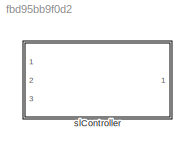
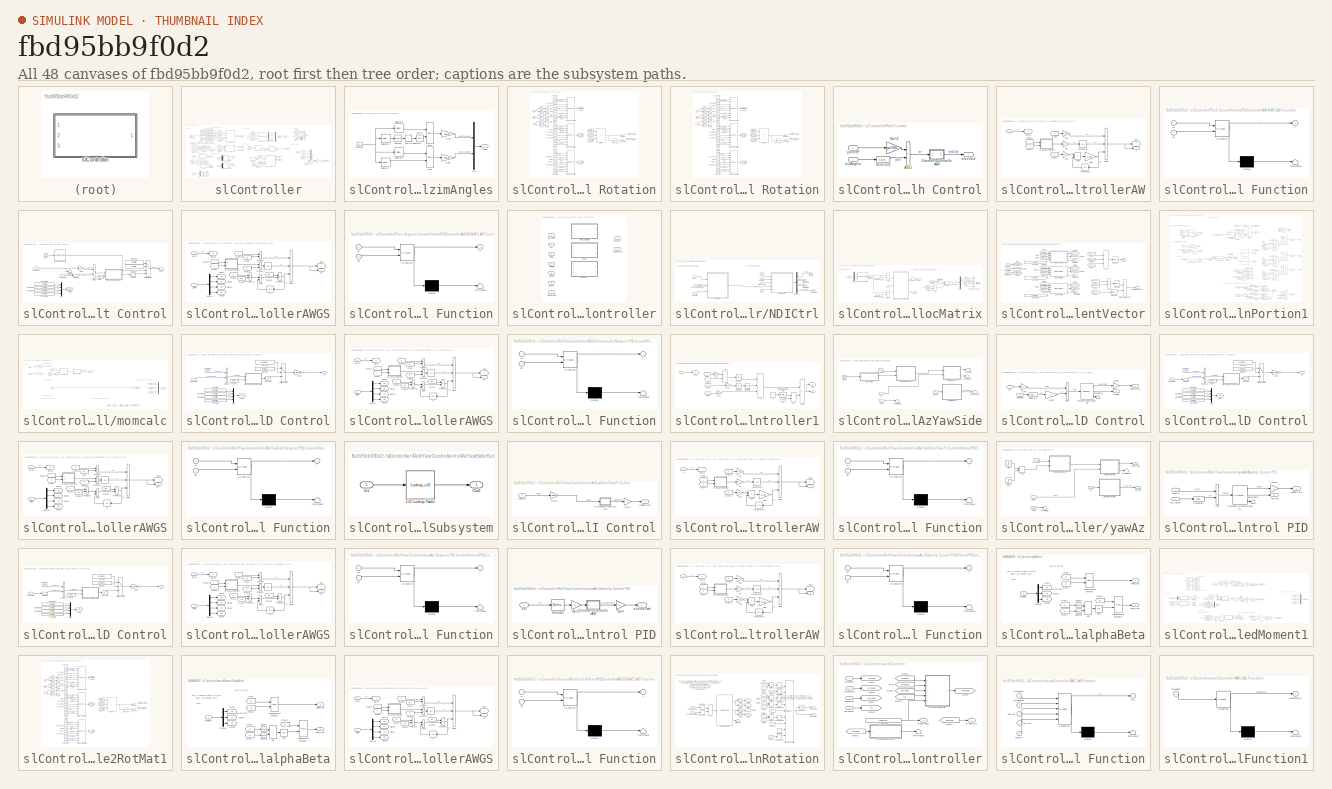
[diagram: thumbnail index - all 48 canvases of the model, root first then tree order]
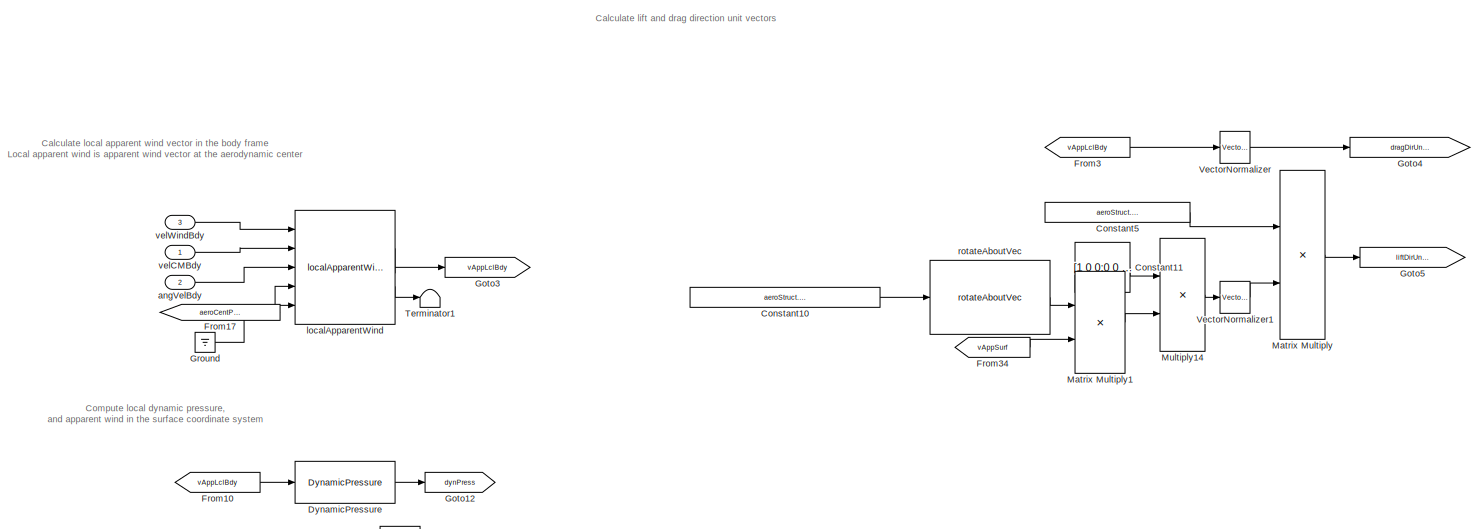
[diagram: slController/Roll/Yaw Controller/NDICtrl/ctrlAllocMatrix/momentComponentVector/aileronPortion1 - part 1/4, top center region]
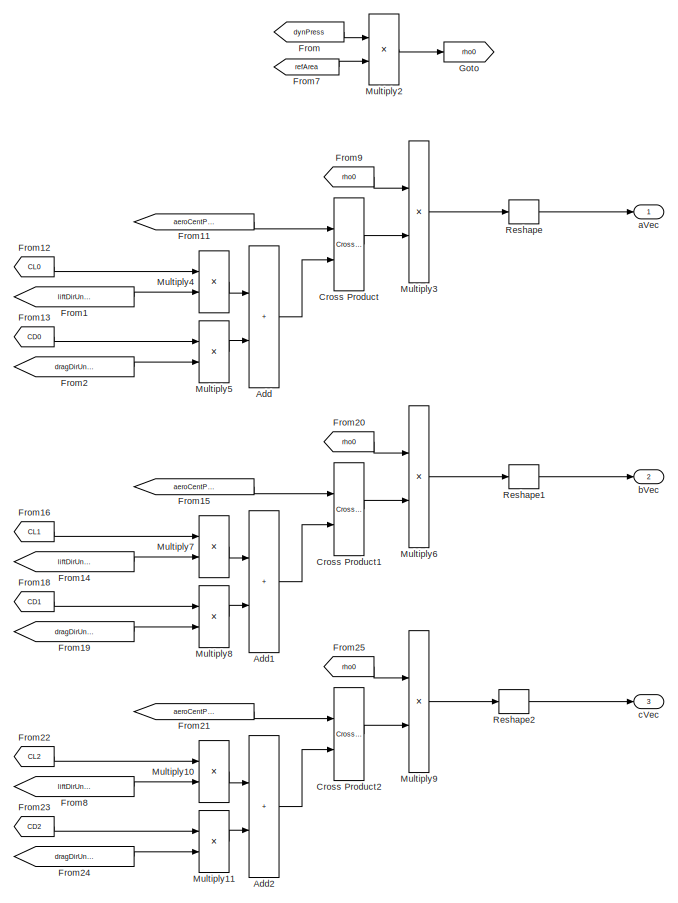
[diagram: slController/Roll/Yaw Controller/NDICtrl/ctrlAllocMatrix/momentComponentVector/aileronPortion1 - part 2/4, middle right region]
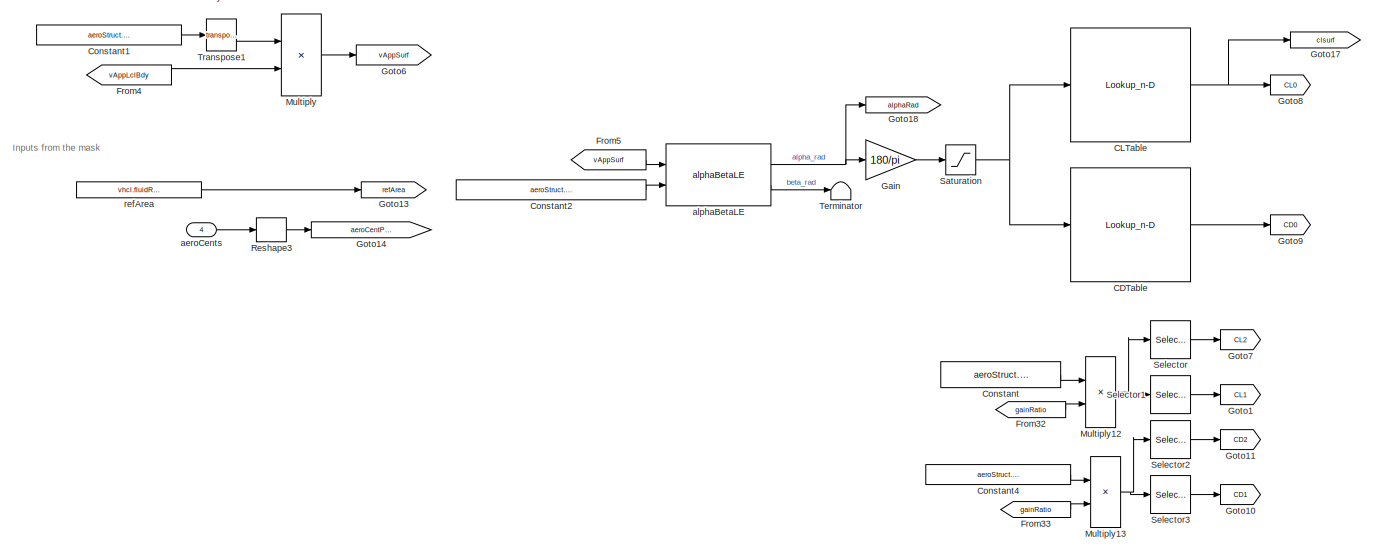
[diagram: slController/Roll/Yaw Controller/NDICtrl/ctrlAllocMatrix/momentComponentVector/aileronPortion1 - part 3/4, central region]
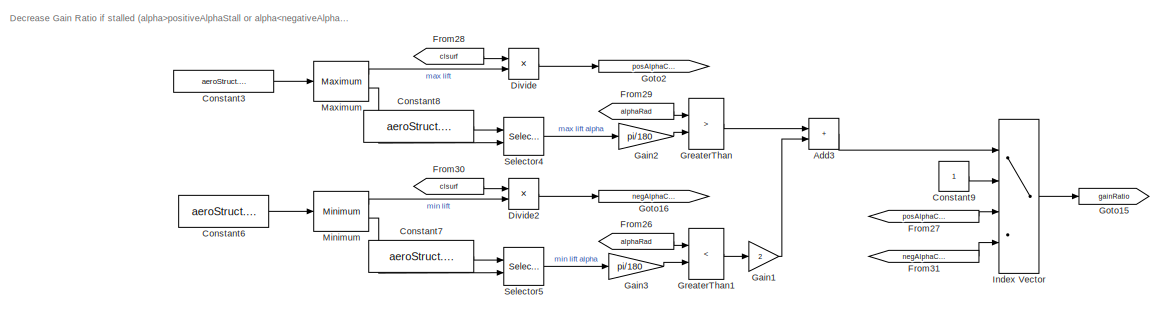
[diagram: slController/Roll/Yaw Controller/NDICtrl/ctrlAllocMatrix/momentComponentVector/aileronPortion1 - part 4/4, bottom right region]
MODEL slx_fbd95bb9f0d2
KIND library
CONFIG AbsTol = auto
CONFIG EnableMultiTasking = off
CONFIG FixedStep = auto
CONFIG MaxStep = auto
CONFIG MinStep = auto
CONFIG RelTol = 1e-3
CONFIG SampleTimeConstraint = Unconstrained
CONFIG SolverName = VariableStepAuto
CONFIG StartTime = 0.0
CONFIG StopTime = 10.0
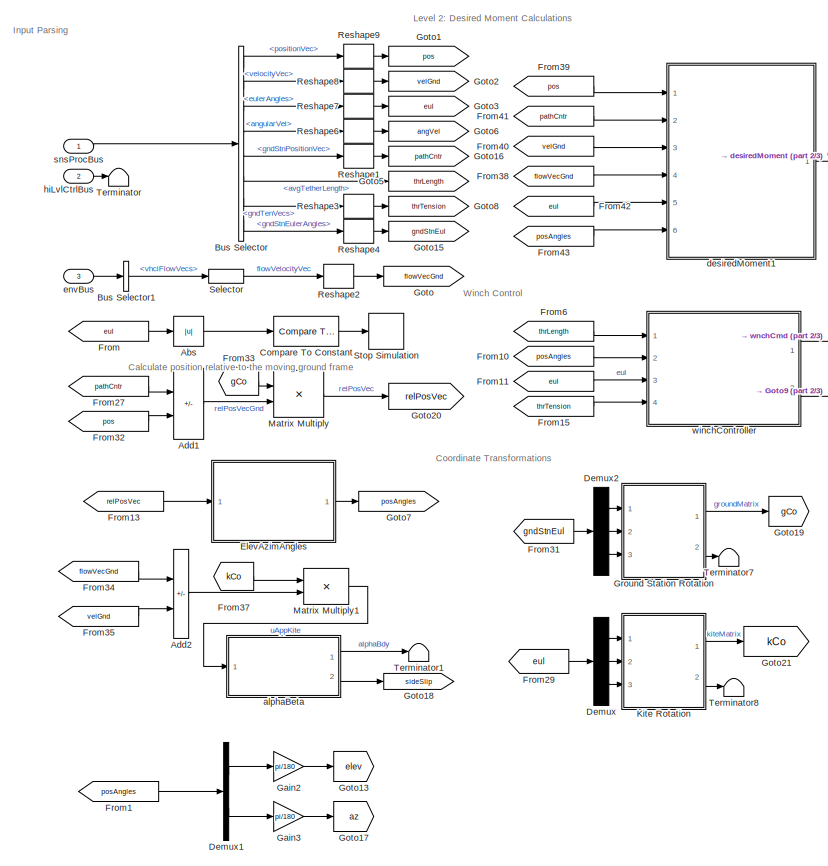
[diagram: slController - part 1/3, left side, full height]
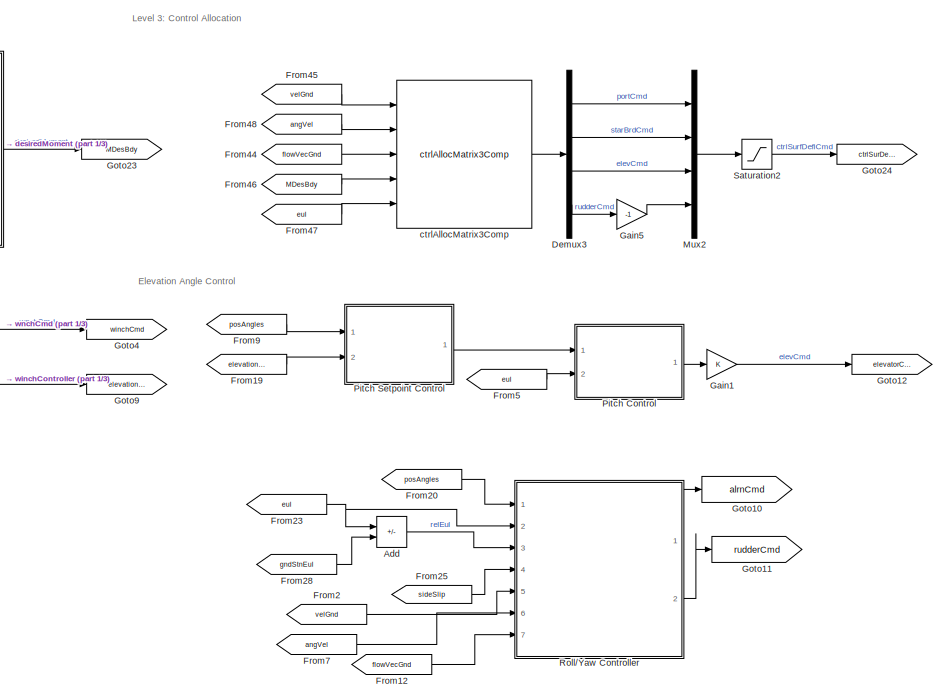
[diagram: slController - part 2/3, center side, full height]
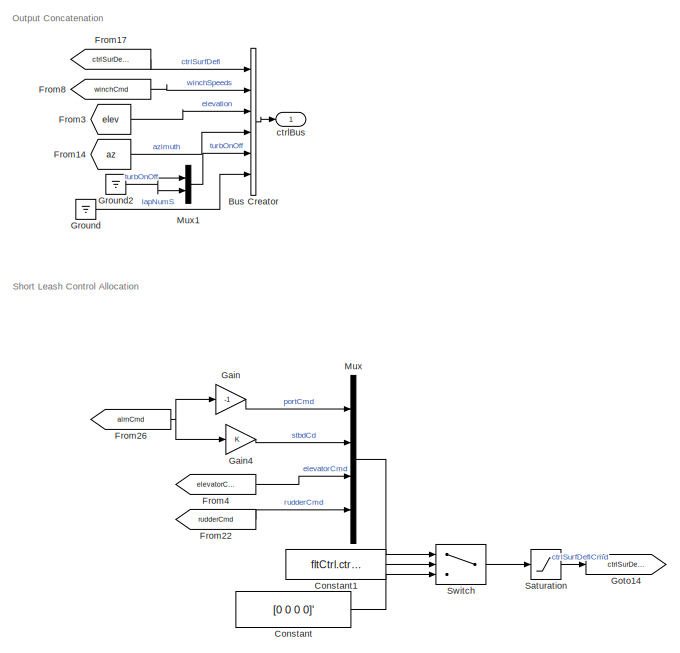
[diagram: slController - part 3/3, middle right region]
BLOCK [SubSystem] slController
  InitFcn = initializeBussesFromBlock(gcb)
  LoadFcn = initializeBussesFromBlock(gcb)
  MinAlgLoopOccurrences = on
  Ports = [3, 1]
  RequestExecContextInheritance = off
  StartFcn = initializeBussesFromBlock(gcb)
  VariantControl = strcmpi(FLIGHTCONTROLLER,'slController')
BLOCK [Abs] slController/Abs
  SaturateOnIntegerOverflow = off
BLOCK [Sum] slController/Add
  Commented = on
  IconShape = rectangular
  Inputs = +-
  Ports = [2, 1]
BLOCK [Sum] slController/Add1
  IconShape = rectangular
  Inputs = -+
  Ports = [2, 1]
BLOCK [Sum] slController/Add2
  IconShape = rectangular
  Inputs = -+
  Ports = [2, 1]
BLOCK [BusCreator] slController/Bus Creator
  DisplayOption = bar
  InheritFromInputs = off
  Inputs = 6
  OutDataTypeStr = Bus: fltCtrlBus
  Ports = [6, 1]
BLOCK [BusSelector] slController/Bus Selector
  OutputSignals = positionVec,velocityVec,eulerAngles,angularVel,gndStnPositionVec,avgTetherLength,gndTenVecs,gndStnEulerAngles
  Ports = [1, 8]
BLOCK [BusSelector] slController/Bus Selector1
  OutputSignals = vhclFlowVecs
  Ports = [1, 1]
BLOCK [Reference] slController/Compare To Constant  REF=simulink/Logic and Bit
Operations/Compare
To Constant
  Ports = [1, 1]
  SourceBlock = simulink/Logic and Bit\nOperations/Compare\nTo Constant
  SourceProductBaseCode = SL
  SourceType = Compare To Constant
BLOCK [Constant] slController/Constant
  Commented = on
  Value = [0 0 0 0]'
BLOCK [Constant] slController/Constant1
  Commented = on
  Value = fltCtrl.ctrlOff.Value
BLOCK [Demux] slController/Demux
  Outputs = 3
  Ports = [1, 3]
BLOCK [Demux] slController/Demux1
  Outputs = 2
  Ports = [1, 2]
BLOCK [Demux] slController/Demux2
  Outputs = 3
  Ports = [1, 3]
BLOCK [Demux] slController/Demux3
  Ports = [1, 4]
BLOCK [SubSystem] slController/ElevAzimAngles
  Ports = [1, 1]
  RequestExecContextInheritance = off
BLOCK [Outport] slController/ElevAzimAngles/Angles
BLOCK [Trigonometry] slController/ElevAzimAngles/Atan1
  Operator = atan2
  Ports = [2, 1]
BLOCK [Trigonometry] slController/ElevAzimAngles/Atan2
  Operator = atan2
  Ports = [2, 1]
BLOCK [Gain] slController/ElevAzimAngles/Gain
  Gain = 180/pi
BLOCK [Gain] slController/ElevAzimAngles/Gain1
  Gain = 180/pi
BLOCK [Mux] slController/ElevAzimAngles/Mux
  DisplayOption = bar
  Inputs = 2
  Ports = [2, 1]
BLOCK [Selector] slController/ElevAzimAngles/Selector1
  IndexOptions = Index vector (dialog)
  Indices = 1
  InputPortWidth = 3
  OutputSizes = 1
  Ports = [1, 1]
BLOCK [Selector] slController/ElevAzimAngles/Selector2
  IndexOptions = Index vector (dialog)
  Indices = [1 2]
  InputPortWidth = 3
  OutputSizes = 1
  Ports = [1, 1]
BLOCK [Selector] slController/ElevAzimAngles/Selector3
  IndexOptions = Index vector (dialog)
  Indices = 3
  InputPortWidth = 3
  OutputSizes = 1
  Ports = [1, 1]
BLOCK [Selector] slController/ElevAzimAngles/Selector4
  IndexOptions = Index vector (dialog)
  Indices = 2
  InputPortWidth = 3
  OutputSizes = 1
  Ports = [1, 1]
BLOCK [Sqrt] slController/ElevAzimAngles/Sqrt1
BLOCK [Math] slController/ElevAzimAngles/Square1
  Operator = square
  Ports = [1, 1]
  SignedPower = on
BLOCK [Sum] slController/ElevAzimAngles/Sum of Elements
  IconShape = rectangular
  Inputs = +
  Ports = [1, 1]
BLOCK [Inport] slController/ElevAzimAngles/relPosVec
BLOCK [From] slController/From
  GotoTag = eul
BLOCK [From] slController/From1
  GotoTag = posAngles
BLOCK [From] slController/From10
  GotoTag = posAngles
BLOCK [From] slController/From11
  GotoTag = eul
BLOCK [From] slController/From12
  Commented = on
  GotoTag = flowVecGnd
BLOCK [From] slController/From13
  GotoTag = relPosVec
BLOCK [From] slController/From14
  GotoTag = az
BLOCK [From] slController/From15
  GotoTag = thrTension
BLOCK [From] slController/From17
  GotoTag = ctrlSurDefl
BLOCK [From] slController/From19
  Commented = on
  GotoTag = elevationSP
BLOCK [From] slController/From2
  Commented = on
  GotoTag = velGnd
BLOCK [From] slController/From20
  Commented = on
  GotoTag = posAngles
BLOCK [From] slController/From22
  Commented = on
  GotoTag = rudderCmd
BLOCK [From] slController/From23
  Commented = on
  GotoTag = eul
BLOCK [From] slController/From25
  Commented = on
  GotoTag = sideSlip
BLOCK [From] slController/From26
  Commented = on
  GotoTag = alrnCmd
BLOCK [From] slController/From27
  GotoTag = pathCntr
BLOCK [From] slController/From28
  Commented = on
  GotoTag = gndStnEul
BLOCK [From] slController/From29
  GotoTag = eul
BLOCK [From] slController/From3
  GotoTag = elev
BLOCK [From] slController/From31
  GotoTag = gndStnEul
BLOCK [From] slController/From32
  GotoTag = pos
BLOCK [From] slController/From33
  GotoTag = gCo
BLOCK [From] slController/From34
  GotoTag = flowVecGnd
BLOCK [From] slController/From35
  GotoTag = velGnd
BLOCK [From] slController/From37
  GotoTag = kCo
BLOCK [From] slController/From38
  GotoTag = flowVecGnd
BLOCK [From] slController/From39
  GotoTag = pos
BLOCK [From] slController/From4
  Commented = on
  GotoTag = elevatorCmd
BLOCK [From] slController/From40
  GotoTag = velGnd
BLOCK [From] slController/From41
  GotoTag = pathCntr
BLOCK [From] slController/From42
  GotoTag = eul
BLOCK [From] slController/From43
  GotoTag = posAngles
BLOCK [From] slController/From44
  GotoTag = flowVecGnd
BLOCK [From] slController/From45
  GotoTag = velGnd
BLOCK [From] slController/From46
  GotoTag = MDesBdy
BLOCK [From] slController/From47
  GotoTag = eul
BLOCK [From] slController/From48
  GotoTag = angVel
BLOCK [From] slController/From5
  Commented = on
  GotoTag = eul
BLOCK [From] slController/From6
  GotoTag = thrLength
BLOCK [From] slController/From7
  Commented = on
  GotoTag = angVel
BLOCK [From] slController/From8
  GotoTag = winchCmd
BLOCK [From] slController/From9
  Commented = on
  GotoTag = posAngles
BLOCK [Gain] slController/Gain
  Commented = on
  Gain = -1
BLOCK [Gain] slController/Gain1
  Commented = on
BLOCK [Gain] slController/Gain2
  Gain = pi/180
BLOCK [Gain] slController/Gain3
  Gain = pi/180
BLOCK [Gain] slController/Gain4
  Commented = on
BLOCK [Gain] slController/Gain5
  Gain = -1
BLOCK [Goto] slController/Goto
  GotoTag = flowVecGnd
BLOCK [Goto] slController/Goto1
  GotoTag = pos
BLOCK [Goto] slController/Goto10
  Commented = on
  GotoTag = alrnCmd
BLOCK [Goto] slController/Goto11
  Commented = on
  GotoTag = rudderCmd
BLOCK [Goto] slController/Goto12
  Commented = on
  GotoTag = elevatorCmd
BLOCK [Goto] slController/Goto13
  GotoTag = elev
BLOCK [Goto] slController/Goto14
  Commented = on
  GotoTag = ctrlSurDefl
BLOCK [Goto] slController/Goto15
  GotoTag = gndStnEul
BLOCK [Goto] slController/Goto16
  GotoTag = pathCntr
BLOCK [Goto] slController/Goto17
  GotoTag = az
BLOCK [Goto] slController/Goto18
  GotoTag = sideSlip
BLOCK [Goto] slController/Goto19
  GotoTag = gCo
BLOCK [Goto] slController/Goto2
  GotoTag = velGnd
BLOCK [Goto] slController/Goto20
  GotoTag = relPosVec
BLOCK [Goto] slController/Goto21
  GotoTag = kCo
BLOCK [Goto] slController/Goto23
  GotoTag = MDesBdy
BLOCK [Goto] slController/Goto24
  GotoTag = ctrlSurDefl
BLOCK [Goto] slController/Goto3
  GotoTag = eul
BLOCK [Goto] slController/Goto4
  GotoTag = winchCmd
BLOCK [Goto] slController/Goto5
  GotoTag = thrLength
BLOCK [Goto] slController/Goto6
  GotoTag = angVel
BLOCK [Goto] slController/Goto7
  GotoTag = posAngles
BLOCK [Goto] slController/Goto8
  GotoTag = thrTension
BLOCK [Goto] slController/Goto9
  GotoTag = elevationSP
BLOCK [Ground] slController/Ground
BLOCK [SubSystem] slController/Ground Station Rotation
  AncestorBlock = eulAng2RotMat_ul/EulerAngle2RotMat
  Ports = [3, 2]
  RequestExecContextInheritance = off
BLOCK [Constant] slController/Ground Station Rotation/Constant
BLOCK [Constant] slController/Ground Station Rotation/Constant1
  Value = 0
BLOCK [Constant] slController/Ground Station Rotation/Constant10
  Value = 0
BLOCK [Constant] slController/Ground Station Rotation/Constant11
  Value = 0
BLOCK [Constant] slController/Ground Station Rotation/Constant12
  Value = 0
BLOCK [Constant] slController/Ground Station Rotation/Constant13
  Value = 0
BLOCK [Constant] slController/Ground Station Rotation/Constant14
  Value = 0
BLOCK [Constant] slController/Ground Station Rotation/Constant2
  Value = 0
BLOCK [Constant] slController/Ground Station Rotation/Constant3
  Value = 0
BLOCK [Constant] slController/Ground Station Rotation/Constant4
BLOCK [Constant] slController/Ground Station Rotation/Constant5
BLOCK [Constant] slController/Ground Station Rotation/Constant6
  Value = 0
BLOCK [Constant] slController/Ground Station Rotation/Constant7
  Value = 0
BLOCK [Constant] slController/Ground Station Rotation/Constant8
  Value = 0
BLOCK [Constant] slController/Ground Station Rotation/Constant9
  Value = 0
BLOCK [Trigonometry] slController/Ground Station Rotation/Cos
  Operator = cos
  Ports = [1, 1]
BLOCK [Trigonometry] slController/Ground Station Rotation/Cos1
  Ports = [1, 1]
BLOCK [Trigonometry] slController/Ground Station Rotation/Cos2
  Operator = cos
  Ports = [1, 1]
BLOCK [Trigonometry] slController/Ground Station Rotation/Cos3
  Ports = [1, 1]
BLOCK [Trigonometry] slController/Ground Station Rotation/Cos4
  Operator = cos
  Ports = [1, 1]
BLOCK [Trigonometry] slController/Ground Station Rotation/Cos5
  Ports = [1, 1]
BLOCK [Reference] slController/Ground Station Rotation/Create 3x3 Matrix  REF=sharedutil/Create 3x3 Matrix
  Ports = [9, 1]
  SourceBlock = sharedutil/Create 3x3 Matrix
  SourceProductBaseCode = AE,PW,DR,MT,VE
  SourceType = Create 3x3 Matrix
BLOCK [Reference] slController/Ground Station Rotation/Create 3x3 Matrix1  REF=sharedutil/Create 3x3 Matrix
  Ports = [9, 1]
  SourceBlock = sharedutil/Create 3x3 Matrix
  SourceProductBaseCode = AE,PW,DR,MT,VE
  SourceType = Create 3x3 Matrix
BLOCK [Reference] slController/Ground Station Rotation/Create 3x3 Matrix2  REF=sharedutil/Create 3x3 Matrix
  Ports = [9, 1]
  SourceBlock = sharedutil/Create 3x3 Matrix
  SourceProductBaseCode = AE,PW,DR,MT,VE
  SourceType = Create 3x3 Matrix
BLOCK [From] slController/Ground Station Rotation/From
  GotoTag = cr
BLOCK [From] slController/Ground Station Rotation/From1
  GotoTag = cr
BLOCK [From] slController/Ground Station Rotation/From10
  GotoTag = cy
BLOCK [From] slController/Ground Station Rotation/From11
  GotoTag = sy
BLOCK [From] slController/Ground Station Rotation/From12
  GotoTag = rollMatrix
BLOCK [From] slController/Ground Station Rotation/From13
  GotoTag = pitchMatrix
BLOCK [From] slController/Ground Station Rotation/From14
  GotoTag = yawMatrix
BLOCK [From] slController/Ground Station Rotation/From2
  GotoTag = sr
BLOCK [From] slController/Ground Station Rotation/From3
  GotoTag = sr
BLOCK [From] slController/Ground Station Rotation/From4
  GotoTag = cp
BLOCK [From] slController/Ground Station Rotation/From5
  GotoTag = sp
BLOCK [From] slController/Ground Station Rotation/From6
  GotoTag = cp
BLOCK [From] slController/Ground Station Rotation/From7
  GotoTag = sp
BLOCK [From] slController/Ground Station Rotation/From8
  GotoTag = cy
BLOCK [From] slController/Ground Station Rotation/From9
  GotoTag = sy
BLOCK [Gain] slController/Ground Station Rotation/Gain
  Gain = -1
BLOCK [Gain] slController/Ground Station Rotation/Gain1
  Gain = -1
BLOCK [Gain] slController/Ground Station Rotation/Gain2
  Gain = -1
BLOCK [Goto] slController/Ground Station Rotation/Goto
  GotoTag = cr
BLOCK [Goto] slController/Ground Station Rotation/Goto1
  GotoTag = sr
BLOCK [Goto] slController/Ground Station Rotation/Goto2
  GotoTag = cp
BLOCK [Goto] slController/Ground Station Rotation/Goto3
  GotoTag = sp
BLOCK [Goto] slController/Ground Station Rotation/Goto4
  GotoTag = cy
BLOCK [Goto] slController/Ground Station Rotation/Goto5
  GotoTag = sy
BLOCK [Goto] slController/Ground Station Rotation/Goto6
  GotoTag = rollMatrix
BLOCK [Goto] slController/Ground Station Rotation/Goto7
  GotoTag = pitchMatrix
BLOCK [Goto] slController/Ground Station Rotation/Goto8
  GotoTag = yawMatrix
BLOCK [Product] slController/Ground Station Rotation/Multiply
  Inputs = 3
  Multiplication = Matrix(*)
  Ports = [3, 1]
BLOCK [Math] slController/Ground Station Rotation/Transpose
  Operator = transpose
  Ports = [1, 1]
  SignedPower = on
BLOCK [Outport] slController/Ground Station Rotation/bdy2Inert
  Port = 2
  VectorParamsAs1DForOutWhenUnconnected = off
BLOCK [Outport] slController/Ground Station Rotation/inert2Bdy
  VectorParamsAs1DForOutWhenUnconnected = off
BLOCK [Inport] slController/Ground Station Rotation/pitch
  Port = 2
BLOCK [Inport] slController/Ground Station Rotation/roll
BLOCK [Inport] slController/Ground Station Rotation/yaw
  Port = 3
BLOCK [Ground] slController/Ground2
BLOCK [SubSystem] slController/Kite Rotation
  AncestorBlock = eulAng2RotMat_ul/EulerAngle2RotMat
  Ports = [3, 2]
  RequestExecContextInheritance = off
BLOCK [Constant] slController/Kite Rotation/Constant
BLOCK [Constant] slController/Kite Rotation/Constant1
  Value = 0
BLOCK [Constant] slController/Kite Rotation/Constant10
  Value = 0
BLOCK [Constant] slController/Kite Rotation/Constant11
  Value = 0
BLOCK [Constant] slController/Kite Rotation/Constant12
  Value = 0
BLOCK [Constant] slController/Kite Rotation/Constant13
  Value = 0
BLOCK [Constant] slController/Kite Rotation/Constant14
  Value = 0
BLOCK [Constant] slController/Kite Rotation/Constant2
  Value = 0
BLOCK [Constant] slController/Kite Rotation/Constant3
  Value = 0
BLOCK [Constant] slController/Kite Rotation/Constant4
BLOCK [Constant] slController/Kite Rotation/Constant5
BLOCK [Constant] slController/Kite Rotation/Constant6
  Value = 0
BLOCK [Constant] slController/Kite Rotation/Constant7
  Value = 0
BLOCK [Constant] slController/Kite Rotation/Constant8
  Value = 0
BLOCK [Constant] slController/Kite Rotation/Constant9
  Value = 0
BLOCK [Trigonometry] slController/Kite Rotation/Cos
  Operator = cos
  Ports = [1, 1]
BLOCK [Trigonometry] slController/Kite Rotation/Cos1
  Ports = [1, 1]
BLOCK [Trigonometry] slController/Kite Rotation/Cos2
  Operator = cos
  Ports = [1, 1]
BLOCK [Trigonometry] slController/Kite Rotation/Cos3
  Ports = [1, 1]
BLOCK [Trigonometry] slController/Kite Rotation/Cos4
  Operator = cos
  Ports = [1, 1]
BLOCK [Trigonometry] slController/Kite Rotation/Cos5
  Ports = [1, 1]
BLOCK [Reference] slController/Kite Rotation/Create 3x3 Matrix  REF=sharedutil/Create 3x3 Matrix
  Ports = [9, 1]
  SourceBlock = sharedutil/Create 3x3 Matrix
  SourceProductBaseCode = AE,PW,DR,MT,VE
  SourceType = Create 3x3 Matrix
BLOCK [Reference] slController/Kite Rotation/Create 3x3 Matrix1  REF=sharedutil/Create 3x3 Matrix
  Ports = [9, 1]
  SourceBlock = sharedutil/Create 3x3 Matrix
  SourceProductBaseCode = AE,PW,DR,MT,VE
  SourceType = Create 3x3 Matrix
BLOCK [Reference] slController/Kite Rotation/Create 3x3 Matrix2  REF=sharedutil/Create 3x3 Matrix
  Ports = [9, 1]
  SourceBlock = sharedutil/Create 3x3 Matrix
  SourceProductBaseCode = AE,PW,DR,MT,VE
  SourceType = Create 3x3 Matrix
BLOCK [From] slController/Kite Rotation/From
  GotoTag = cr
BLOCK [From] slController/Kite Rotation/From1
  GotoTag = cr
BLOCK [From] slController/Kite Rotation/From10
  GotoTag = cy
BLOCK [From] slController/Kite Rotation/From11
  GotoTag = sy
BLOCK [From] slController/Kite Rotation/From12
  GotoTag = rollMatrix
BLOCK [From] slController/Kite Rotation/From13
  GotoTag = pitchMatrix
BLOCK [From] slController/Kite Rotation/From14
  GotoTag = yawMatrix
BLOCK [From] slController/Kite Rotation/From2
  GotoTag = sr
BLOCK [From] slController/Kite Rotation/From3
  GotoTag = sr
BLOCK [From] slController/Kite Rotation/From4
  GotoTag = cp
BLOCK [From] slController/Kite Rotation/From5
  GotoTag = sp
BLOCK [From] slController/Kite Rotation/From6
  GotoTag = cp
BLOCK [From] slController/Kite Rotation/From7
  GotoTag = sp
BLOCK [From] slController/Kite Rotation/From8
  GotoTag = cy
BLOCK [From] slController/Kite Rotation/From9
  GotoTag = sy
BLOCK [Gain] slController/Kite Rotation/Gain
  Gain = -1
BLOCK [Gain] slController/Kite Rotation/Gain1
  Gain = -1
BLOCK [Gain] slController/Kite Rotation/Gain2
  Gain = -1
BLOCK [Goto] slController/Kite Rotation/Goto
  GotoTag = cr
BLOCK [Goto] slController/Kite Rotation/Goto1
  GotoTag = sr
BLOCK [Goto] slController/Kite Rotation/Goto2
  GotoTag = cp
BLOCK [Goto] slController/Kite Rotation/Goto3
  GotoTag = sp
BLOCK [Goto] slController/Kite Rotation/Goto4
  GotoTag = cy
BLOCK [Goto] slController/Kite Rotation/Goto5
  GotoTag = sy
BLOCK [Goto] slController/Kite Rotation/Goto6
  GotoTag = rollMatrix
BLOCK [Goto] slController/Kite Rotation/Goto7
  GotoTag = pitchMatrix
BLOCK [Goto] slController/Kite Rotation/Goto8
  GotoTag = yawMatrix
BLOCK [Product] slController/Kite Rotation/Multiply
  Inputs = 3
  Multiplication = Matrix(*)
  Ports = [3, 1]
BLOCK [Math] slController/Kite Rotation/Transpose
  Operator = transpose
  Ports = [1, 1]
  SignedPower = on
BLOCK [Outport] slController/Kite Rotation/bdy2Inert
  Port = 2
  VectorParamsAs1DForOutWhenUnconnected = off
BLOCK [Outport] slController/Kite Rotation/inert2Bdy
  VectorParamsAs1DForOutWhenUnconnected = off
BLOCK [Inport] slController/Kite Rotation/pitch
  Port = 2
BLOCK [Inport] slController/Kite Rotation/roll
BLOCK [Inport] slController/Kite Rotation/yaw
  Port = 3
BLOCK [Product] slController/Matrix Multiply
  Multiplication = Matrix(*)
  Ports = [2, 1]
BLOCK [Product] slController/Matrix Multiply1
  Multiplication = Matrix(*)
  Ports = [2, 1]
BLOCK [Mux] slController/Mux
  Commented = on
  DisplayOption = bar
  Ports = [4, 1]
BLOCK [Mux] slController/Mux1
  DisplayOption = bar
  Inputs = 2
  Ports = [2, 1]
BLOCK [Mux] slController/Mux2
  DisplayOption = bar
  Ports = [4, 1]
BLOCK [SubSystem] slController/Pitch Control
  Commented = on
  Ports = [2, 1]
  RequestExecContextInheritance = off
BLOCK [Sum] slController/Pitch Control/Add1
  IconShape = rectangular
  Inputs = -+
  Ports = [2, 1]
BLOCK [Gain] slController/Pitch Control/Gain2
  Gain = pi/180
BLOCK [Selector] slController/Pitch Control/Selector2
  IndexOptions = Index vector (dialog)
  Indices = 2
  InputPortWidth = 3
  OutputSizes = 1
  Ports = [1, 1]
BLOCK [Outport] slController/Pitch Control/elevCmd
BLOCK [Inport] slController/Pitch Control/eulAngles
  Port = 2
BLOCK [SubSystem] slController/Pitch Control/filteredPIDControllerAW
  AncestorBlock = filteredPIDControllerAW_ul/filteredPIDControllerAW
  Ports = [1, 1]
  RequestExecContextInheritance = off
BLOCK [Sum] slController/Pitch Control/filteredPIDControllerAW/Add3
  IconShape = rectangular
  Inputs = +++
  Ports = [3, 1]
BLOCK [Sum] slController/Pitch Control/filteredPIDControllerAW/Add4
  IconShape = rectangular
  Inputs = +-
  Ports = [2, 1]
BLOCK [From] slController/Pitch Control/filteredPIDControllerAW/From2
  GotoTag = y
BLOCK [From] slController/Pitch Control/filteredPIDControllerAW/From4
  GotoTag = u
BLOCK [From] slController/Pitch Control/filteredPIDControllerAW/From8
  GotoTag = u
BLOCK [From] slController/Pitch Control/filteredPIDControllerAW/From9
  GotoTag = u
BLOCK [Gain] slController/Pitch Control/filteredPIDControllerAW/Gain
  Gain = 1/tau
BLOCK [Goto] slController/Pitch Control/filteredPIDControllerAW/Goto
  GotoTag = y
BLOCK [Goto] slController/Pitch Control/filteredPIDControllerAW/Goto1
  GotoTag = u
BLOCK [Integrator] slController/Pitch Control/filteredPIDControllerAW/Integrator2
  ContinuousStateAttributes = 'ctrlDerivative'
  Ports = [1, 1]
BLOCK [Integrator] slController/Pitch Control/filteredPIDControllerAW/Integrator4
  ContinuousStateAttributes = 'ctrlIntegral'
  Ports = [1, 1]
BLOCK [SubSystem] slController/Pitch Control/filteredPIDControllerAW/MATLAB Function
  ErrorFcn = Stateflow.Translate.translate
  PermitHierarchicalResolution = ExplicitOnly
  Ports = [2, 1]
  RequestExecContextInheritance = off
  SFBlockType = MATLAB Function
  TreatAsAtomicUnit = on
BLOCK [Demux] slController/Pitch Control/filteredPIDControllerAW/MATLAB Function/ Demux 
  Outputs = 1
  Ports = [1, 1]
BLOCK [S-Function] slController/Pitch Control/filteredPIDControllerAW/MATLAB Function/ SFunction 
  EnableBusSupport = off
  FunctionName = sf_sfun
  Parameters = cMax,cMin
  PortCounts = [2 2]
  Ports = [2, 2]
  SFcnIsStateOwnerBlock = off
  SFunctionDeploymentMode = off
  Tag = Stateflow S-Function 37
BLOCK [Terminator] slController/Pitch Control/filteredPIDControllerAW/MATLAB Function/ Terminator 
BLOCK [Inport] slController/Pitch Control/filteredPIDControllerAW/MATLAB Function/u0
  Port = 2
BLOCK [Outport] slController/Pitch Control/filteredPIDControllerAW/MATLAB Function/y
BLOCK [Inport] slController/Pitch Control/filteredPIDControllerAW/MATLAB Function/y0
BLOCK [Gain] slController/Pitch Control/filteredPIDControllerAW/kd1
  Gain = kd
BLOCK [Gain] slController/Pitch Control/filteredPIDControllerAW/ki1
  Gain = ki
BLOCK [Gain] slController/Pitch Control/filteredPIDControllerAW/kp1
  Gain = kp
BLOCK [Inport] slController/Pitch Control/filteredPIDControllerAW/u
  PortDimensions = 1
BLOCK [Outport] slController/Pitch Control/filteredPIDControllerAW/y
  PortDimensions = 1
  VectorParamsAs1DForOutWhenUnconnected = off
BLOCK [Inport] slController/Pitch Control/pitchSP
BLOCK [SubSystem] slController/Pitch Setpoint Control
  Commented = on
  Ports = [2, 1]
  RequestExecContextInheritance = off
BLOCK [Lookup_n-D] slController/Pitch Setpoint Control/1-D Lookup Table
  BreakpointsForDimension1 = LaRCtrl.pitchTime.Value
  InputPortMap = u0
  InternalRulePriority = Speed
  InterpMethod = Flat
  NumberOfTableDimensions = 1
  Ports = [1, 1]
  RndMeth = Simplest
  Table = LaRCtrl.pitchLookup.Value
BLOCK [Clock] slController/Pitch Setpoint Control/Clock
BLOCK [Constant] slController/Pitch Setpoint Control/Constant1
  Value = LaRCtrl.pitchSP.kp.Value
BLOCK [Constant] slController/Pitch Setpoint Control/Constant2
  Value = LaRCtrl.pitchSP.ki.Value
BLOCK [Constant] slController/Pitch Setpoint Control/Constant5
  Value = LaRCtrl.pitchSP.kd.Value
BLOCK [Constant] slController/Pitch Setpoint Control/Constant6
  Value = LaRCtrl.pitchSP.tau.Value
BLOCK [From] slController/Pitch Setpoint Control/From
  GotoTag = gains
BLOCK [Gain] slController/Pitch Setpoint Control/Gain
BLOCK [Goto] slController/Pitch Setpoint Control/Goto2
  GotoTag = gains
BLOCK [MultiPortSwitch] slController/Pitch Setpoint Control/Multiport Switch
  DataPortIndices = {0,1,2}
  DataPortOrder = Specify indices
  InputSameDT = off
  Inputs = 2
  Ports = [4, 1]
  SaturateOnIntegerOverflow = off
BLOCK [Mux] slController/Pitch Setpoint Control/Mux
  DisplayOption = bar
  Ports = [4, 1]
BLOCK [Saturate] slController/Pitch Setpoint Control/Saturation
  LowerLimit = LaRCtrl.pitchAngleMax.lowerLimit.Value
  UpperLimit = LaRCtrl.pitchAngleMax.upperLimit.Value
BLOCK [Selector] slController/Pitch Setpoint Control/Selector
  IndexOptions = Index vector (dialog)
  Indices = 1
  InputPortWidth = 2
  OutputSizes = 1
  Ports = [1, 1]
BLOCK [Sum] slController/Pitch Setpoint Control/Subtract
  IconShape = rectangular
  Inputs = +-
  Ports = [2, 1]
BLOCK [Terminator] slController/Pitch Setpoint Control/Terminator2
BLOCK [Inport] slController/Pitch Setpoint Control/elevationSP
  Port = 2
BLOCK [SubSystem] slController/Pitch Setpoint Control/filteredPIDControllerAWGS
  AncestorBlock = filteredPIDControllerAWGS_ul/filteredPIDControllerAWGS
  Ports = [2, 1]
  RequestExecContextInheritance = off
BLOCK [Sum] slController/Pitch Setpoint Control/filteredPIDControllerAWGS/Add3
  IconShape = rectangular
  Inputs = +++
  Ports = [3, 1]
BLOCK [Sum] slController/Pitch Setpoint Control/filteredPIDControllerAWGS/Add4
  IconShape = rectangular
  Inputs = +-
  Ports = [2, 1]
BLOCK [Outport] slController/Pitch Setpoint Control/filteredPIDControllerAWGS/Ctrl
  PortDimensions = 1
  VectorParamsAs1DForOutWhenUnconnected = off
BLOCK [Demux] slController/Pitch Setpoint Control/filteredPIDControllerAWGS/Demux
  Ports = [1, 4]
BLOCK [Inport] slController/Pitch Setpoint Control/filteredPIDControllerAWGS/Error
  PortDimensions = 1
BLOCK [From] slController/Pitch Setpoint Control/filteredPIDControllerAWGS/From
  GotoTag = kp
BLOCK [From] slController/Pitch Setpoint Control/filteredPIDControllerAWGS/From1
  GotoTag = ki
BLOCK [From] slController/Pitch Setpoint Control/filteredPIDControllerAWGS/From2
  GotoTag = y
BLOCK [From] slController/Pitch Setpoint Control/filteredPIDControllerAWGS/From3
  GotoTag = kd
BLOCK [From] slController/Pitch Setpoint Control/filteredPIDControllerAWGS/From4
  GotoTag = u
BLOCK [From] slController/Pitch Setpoint Control/filteredPIDControllerAWGS/From5
  GotoTag = tau
BLOCK [From] slController/Pitch Setpoint Control/filteredPIDControllerAWGS/From8
  GotoTag = u
BLOCK [From] slController/Pitch Setpoint Control/filteredPIDControllerAWGS/From9
  GotoTag = u
BLOCK [Inport] slController/Pitch Setpoint Control/filteredPIDControllerAWGS/Gains
  Port = 2
BLOCK [Goto] slController/Pitch Setpoint Control/filteredPIDControllerAWGS/Goto
  GotoTag = y
BLOCK [Goto] slController/Pitch Setpoint Control/filteredPIDControllerAWGS/Goto1
  GotoTag = u
BLOCK [Goto] slController/Pitch Setpoint Control/filteredPIDControllerAWGS/Goto2
  GotoTag = kp
BLOCK [Goto] slController/Pitch Setpoint Control/filteredPIDControllerAWGS/Goto3
  GotoTag = ki
BLOCK [Goto] slController/Pitch Setpoint Control/filteredPIDControllerAWGS/Goto4
  GotoTag = kd
BLOCK [Goto] slController/Pitch Setpoint Control/filteredPIDControllerAWGS/Goto5
  GotoTag = tau
BLOCK [SubSystem] slController/Pitch Setpoint Control/filteredPIDControllerAWGS/MATLAB Function
  ErrorFcn = Stateflow.Translate.translate
  PermitHierarchicalResolution = ExplicitOnly
  Ports = [2, 1]
  RequestExecContextInheritance = off
  SFBlockType = MATLAB Function
  TreatAsAtomicUnit = on
BLOCK [Demux] slController/Pitch Setpoint Control/filteredPIDControllerAWGS/MATLAB Function/ Demux 
  Outputs = 1
  Ports = [1, 1]
BLOCK [S-Function] slController/Pitch Setpoint Control/filteredPIDControllerAWGS/MATLAB Function/ SFunction 
  EnableBusSupport = off
  FunctionName = sf_sfun
  Parameters = cMax,cMin
  PortCounts = [2 2]
  Ports = [2, 2]
  SFcnIsStateOwnerBlock = off
  SFunctionDeploymentMode = off
  Tag = Stateflow S-Function 36
BLOCK [Terminator] slController/Pitch Setpoint Control/filteredPIDControllerAWGS/MATLAB Function/ Terminator 
BLOCK [Inport] slController/Pitch Setpoint Control/filteredPIDControllerAWGS/MATLAB Function/u0
  Port = 2
BLOCK [Outport] slController/Pitch Setpoint Control/filteredPIDControllerAWGS/MATLAB Function/y
BLOCK [Inport] slController/Pitch Setpoint Control/filteredPIDControllerAWGS/MATLAB Function/y0
BLOCK [Product] slController/Pitch Setpoint Control/filteredPIDControllerAWGS/Product
  Ports = [2, 1]
BLOCK [Product] slController/Pitch Setpoint Control/filteredPIDControllerAWGS/Product1
  Ports = [2, 1]
BLOCK [Product] slController/Pitch Setpoint Control/filteredPIDControllerAWGS/Product2
  Ports = [2, 1]
BLOCK [Product] slController/Pitch Setpoint Control/filteredPIDControllerAWGS/Product3
  Inputs = /*
  Ports = [2, 1]
BLOCK [Integrator] slController/Pitch Setpoint Control/filteredPIDControllerAWGS/d
  Ports = [1, 1]
BLOCK [Integrator] slController/Pitch Setpoint Control/filteredPIDControllerAWGS/i
  Ports = [1, 1]
BLOCK [Constant] slController/Pitch Setpoint Control/pitchDes
  Value = LaRCtrl.pitchConst.Value
BLOCK [Constant] slController/Pitch Setpoint Control/pitchFlag
  Value = LaRCtrl.pitchCtrl.Value
BLOCK [Outport] slController/Pitch Setpoint Control/pitchSP
BLOCK [Inport] slController/Pitch Setpoint Control/posAngles
BLOCK [Reshape] slController/Reshape1
  OutputDimensionality = Column vector (2-D)
  Ports = [1, 1]
BLOCK [Reshape] slController/Reshape2
  OutputDimensionality = Column vector (2-D)
  Ports = [1, 1]
BLOCK [Reshape] slController/Reshape3
  OutputDimensionality = Column vector (2-D)
  Ports = [1, 1]
BLOCK [Reshape] slController/Reshape4
  OutputDimensionality = Column vector (2-D)
  Ports = [1, 1]
BLOCK [Reshape] slController/Reshape6
  OutputDimensionality = Column vector (2-D)
  Ports = [1, 1]
BLOCK [Reshape] slController/Reshape7
  OutputDimensionality = Column vector (2-D)
  Ports = [1, 1]
BLOCK [Reshape] slController/Reshape8
  OutputDimensionality = Column vector (2-D)
  Ports = [1, 1]
BLOCK [Reshape] slController/Reshape9
  OutputDimensionality = Column vector (2-D)
  Ports = [1, 1]
BLOCK [SubSystem] slController/Roll//Yaw Controller
  Commented = on
  Ports = [7, 2]
  RequestExecContextInheritance = off
  Variant = on
  VariantControl = Choice
BLOCK [SubSystem] slController/Roll//Yaw Controller/NDICtrl
  Ports = [7, 2]
  RequestExecContextInheritance = off
  VariantControl = strcmpi(fltCtrl.towCtrlStrat.Value,'NDICtrl')
BLOCK [Demux] slController/Roll//Yaw Controller/NDICtrl/Demux1
  Ports = [1, 4]
BLOCK [Selector] slController/Roll//Yaw Controller/NDICtrl/Selector
  IndexOptions = Index vector (dialog)
  Indices = 2
  InputPortWidth = 3
  OutputSizes = 1
  Ports = [1, 1]
BLOCK [Terminator] slController/Roll//Yaw Controller/NDICtrl/Terminator1
BLOCK [Terminator] slController/Roll//Yaw Controller/NDICtrl/Terminator5
BLOCK [Outport] slController/Roll//Yaw Controller/NDICtrl/alrnCmd
BLOCK [Inport] slController/Roll//Yaw Controller/NDICtrl/angVel
  Port = 6
BLOCK [SubSystem] slController/Roll//Yaw Controller/NDICtrl/ctrlAllocMatrix
  AncestorBlock = ctrlAllocMatrix_cl/ctrlAllocMatrix
  MinAlgLoopOccurrences = on
  Ports = [5, 1]
  RequestExecContextInheritance = off
BLOCK [Sum] slController/Roll//Yaw Controller/NDICtrl/ctrlAllocMatrix/Add1
  IconShape = rectangular
  Inputs = +-
  Ports = [2, 1]
BLOCK [Demux] slController/Roll//Yaw Controller/NDICtrl/ctrlAllocMatrix/Demux
  Outputs = 2
  Ports = [1, 2]
BLOCK [Demux] slController/Roll//Yaw Controller/NDICtrl/ctrlAllocMatrix/Demux2
  Outputs = 3
  Ports = [1, 3]
BLOCK [Reference] slController/Roll//Yaw Controller/NDICtrl/ctrlAllocMatrix/EulerAngle2RotMat  REF=eulAng2RotMat_ul/EulerAngle2RotMat
  Ports = [3, 2]
  SourceBlock = eulAng2RotMat_ul/EulerAngle2RotMat
  SourceType = SubSystem
BLOCK [From] slController/Roll//Yaw Controller/NDICtrl/ctrlAllocMatrix/From3
  GotoTag = BMatrix
BLOCK [From] slController/Roll//Yaw Controller/NDICtrl/ctrlAllocMatrix/From6
  GotoTag = M0
BLOCK [Gain] slController/Roll//Yaw Controller/NDICtrl/ctrlAllocMatrix/Gain
  Gain = -1
BLOCK [Gain] slController/Roll//Yaw Controller/NDICtrl/ctrlAllocMatrix/Gain3
BLOCK [Goto] slController/Roll//Yaw Controller/NDICtrl/ctrlAllocMatrix/Goto1
  GotoTag = M0
BLOCK [Goto] slController/Roll//Yaw Controller/NDICtrl/ctrlAllocMatrix/Goto2
  GotoTag = BMatrix
BLOCK [Ground] slController/Roll//Yaw Controller/NDICtrl/ctrlAllocMatrix/Ground
BLOCK [Product] slController/Roll//Yaw Controller/NDICtrl/ctrlAllocMatrix/Matrix Multiply
  Inputs = /
  Multiplication = Matrix(*)
  Ports = [1, 1]
BLOCK [Product] slController/Roll//Yaw Controller/NDICtrl/ctrlAllocMatrix/Matrix Multiply1
  Multiplication = Matrix(*)
  Ports = [2, 1]
BLOCK [Product] slController/Roll//Yaw Controller/NDICtrl/ctrlAllocMatrix/Multiply
  Multiplication = Matrix(*)
  Ports = [2, 1]
BLOCK [Product] slController/Roll//Yaw Controller/NDICtrl/ctrlAllocMatrix/Multiply1
  Multiplication = Matrix(*)
  Ports = [2, 1]
BLOCK [Reshape] slController/Roll//Yaw Controller/NDICtrl/ctrlAllocMatrix/Reshape
  OutputDimensionality = Column vector (2-D)
  Ports = [1, 1]
BLOCK [Reshape] slController/Roll//Yaw Controller/NDICtrl/ctrlAllocMatrix/Reshape1
  OutputDimensionality = Column vector (2-D)
  Ports = [1, 1]
BLOCK [Reshape] slController/Roll//Yaw Controller/NDICtrl/ctrlAllocMatrix/Reshape2
  OutputDimensionality = Column vector (2-D)
  Ports = [1, 1]
BLOCK [Reshape] slController/Roll//Yaw Controller/NDICtrl/ctrlAllocMatrix/Reshape3
  Ports = [1, 1]
BLOCK [Terminator] slController/Roll//Yaw Controller/NDICtrl/ctrlAllocMatrix/Terminator2
BLOCK [Concatenate] slController/Roll//Yaw Controller/NDICtrl/ctrlAllocMatrix/Vector Concatenate
  NumInputs = 4
  Ports = [4, 1]
BLOCK [Inport] slController/Roll//Yaw Controller/NDICtrl/ctrlAllocMatrix/angVel
  Port = 2
BLOCK [Outport] slController/Roll//Yaw Controller/NDICtrl/ctrlAllocMatrix/ctrlSurfDefl
  VectorParamsAs1DForOutWhenUnconnected = off
BLOCK [Inport] slController/Roll//Yaw Controller/NDICtrl/ctrlAllocMatrix/eulAng
  Port = 5
BLOCK [Inport] slController/Roll//Yaw Controller/NDICtrl/ctrlAllocMatrix/momDesBdy
  Port = 4
BLOCK [SubSystem] slController/Roll//Yaw Controller/NDICtrl/ctrlAllocMatrix/momentComponentVector
  Ports = [3, 2]
  RequestExecContextInheritance = off
BLOCK [Sum] slController/Roll//Yaw Controller/NDICtrl/ctrlAllocMatrix/momentComponentVector/Add
  IconShape = rectangular
  Inputs = +++
  Ports = [3, 1]
BLOCK [Sum] slController/Roll//Yaw Controller/NDICtrl/ctrlAllocMatrix/momentComponentVector/Add2
  IconShape = rectangular
  Inputs = -+
  Ports = [2, 1]
BLOCK [Constant] slController/Roll//Yaw Controller/NDICtrl/ctrlAllocMatrix/momentComponentVector/Constant
  Value = vhcl.fluidMomentArms.Value(:,1)
BLOCK [Constant] slController/Roll//Yaw Controller/NDICtrl/ctrlAllocMatrix/momentComponentVector/Constant1
  Value = vhcl.fluidMomentArms.Value(:,2)
BLOCK [Constant] slController/Roll//Yaw Controller/NDICtrl/ctrlAllocMatrix/momentComponentVector/Constant3
  Value = vhcl.fluidMomentArms.Value(:,4)
BLOCK [From] slController/Roll//Yaw Controller/NDICtrl/ctrlAllocMatrix/momentComponentVector/From
  GotoTag = velCMBdy
BLOCK [From] slController/Roll//Yaw Controller/NDICtrl/ctrlAllocMatrix/momentComponentVector/From1
  GotoTag = angVelBdy
BLOCK [From] slController/Roll//Yaw Controller/NDICtrl/ctrlAllocMatrix/momentComponentVector/From11
  GotoTag = avecR
BLOCK [From] slController/Roll//Yaw Controller/NDICtrl/ctrlAllocMatrix/momentComponentVector/From12
  GotoTag = bvecA1
BLOCK [From] slController/Roll//Yaw Controller/NDICtrl/ctrlAllocMatrix/momentComponentVector/From14
  GotoTag = bvecR
BLOCK [From] slController/Roll//Yaw Controller/NDICtrl/ctrlAllocMatrix/momentComponentVector/From15
  GotoTag = velCMBdy
BLOCK [From] slController/Roll//Yaw Controller/NDICtrl/ctrlAllocMatrix/momentComponentVector/From16
  GotoTag = angVelBdy
BLOCK [From] slController/Roll//Yaw Controller/NDICtrl/ctrlAllocMatrix/momentComponentVector/From17
  GotoTag = velWindBdy
BLOCK [From] slController/Roll//Yaw Controller/NDICtrl/ctrlAllocMatrix/momentComponentVector/From18
  GotoTag = avecA2
BLOCK [From] slController/Roll//Yaw Controller/NDICtrl/ctrlAllocMatrix/momentComponentVector/From19
  GotoTag = bvecA2
BLOCK [From] slController/Roll//Yaw Controller/NDICtrl/ctrlAllocMatrix/momentComponentVector/From2
  GotoTag = velWindBdy
BLOCK [From] slController/Roll//Yaw Controller/NDICtrl/ctrlAllocMatrix/momentComponentVector/From6
  GotoTag = velCMBdy
BLOCK [From] slController/Roll//Yaw Controller/NDICtrl/ctrlAllocMatrix/momentComponentVector/From7
  GotoTag = angVelBdy
BLOCK [From] slController/Roll//Yaw Controller/NDICtrl/ctrlAllocMatrix/momentComponentVector/From8
  GotoTag = velWindBdy
BLOCK [From] slController/Roll//Yaw Controller/NDICtrl/ctrlAllocMatrix/momentComponentVector/From9
  GotoTag = avecA1
BLOCK [Goto] slController/Roll//Yaw Controller/NDICtrl/ctrlAllocMatrix/momentComponentVector/Goto
  GotoTag = velCMBdy
BLOCK [Goto] slController/Roll//Yaw Controller/NDICtrl/ctrlAllocMatrix/momentComponentVector/Goto1
  GotoTag = angVelBdy
BLOCK [Goto] slController/Roll//Yaw Controller/NDICtrl/ctrlAllocMatrix/momentComponentVector/Goto10
  GotoTag = bvecA2
BLOCK [Goto] slController/Roll//Yaw Controller/NDICtrl/ctrlAllocMatrix/momentComponentVector/Goto2
  GotoTag = velWindBdy
BLOCK [Goto] slController/Roll//Yaw Controller/NDICtrl/ctrlAllocMatrix/momentComponentVector/Goto3
  GotoTag = avecA1
BLOCK [Goto] slController/Roll//Yaw Controller/NDICtrl/ctrlAllocMatrix/momentComponentVector/Goto5
  GotoTag = avecR
BLOCK [Goto] slController/Roll//Yaw Controller/NDICtrl/ctrlAllocMatrix/momentComponentVector/Goto6
  GotoTag = bvecA1
BLOCK [Goto] slController/Roll//Yaw Controller/NDICtrl/ctrlAllocMatrix/momentComponentVector/Goto8
  GotoTag = bvecR
BLOCK [Goto] slController/Roll//Yaw Controller/NDICtrl/ctrlAllocMatrix/momentComponentVector/Goto9
  GotoTag = avecA2
BLOCK [Concatenate] slController/Roll//Yaw Controller/NDICtrl/ctrlAllocMatrix/momentComponentVector/Matrix Concatenate3
  ConcatenateDimension = 2
  Mode = Multidimensional array
  Ports = [2, 1]
BLOCK [Selector] slController/Roll//Yaw Controller/NDICtrl/ctrlAllocMatrix/momentComponentVector/Selector
  IndexOptions = Index vector (dialog)
  Indices = [1 3]
  InputPortWidth = 3
  OutputSizes = 1
  Ports = [1, 1]
BLOCK [Selector] slController/Roll//Yaw Controller/NDICtrl/ctrlAllocMatrix/momentComponentVector/Selector1
  IndexOptions = Index vector (dialog)
  Indices = [1 3]
  InputPortWidth = 3
  OutputSizes = 1
  Ports = [1, 1]
BLOCK [Selector] slController/Roll//Yaw Controller/NDICtrl/ctrlAllocMatrix/momentComponentVector/Selector2
  IndexOptions = Index vector (dialog)
  Indices = [1 3]
  InputPortWidth = 3
  OutputSizes = 1
  Ports = [1, 1]
BLOCK [Terminator] slController/Roll//Yaw Controller/NDICtrl/ctrlAllocMatrix/momentComponentVector/Terminator
BLOCK [Terminator] slController/Roll//Yaw Controller/NDICtrl/ctrlAllocMatrix/momentComponentVector/Terminator2
BLOCK [Terminator] slController/Roll//Yaw Controller/NDICtrl/ctrlAllocMatrix/momentComponentVector/Terminator3
BLOCK [SubSystem] slController/Roll//Yaw Controller/NDICtrl/ctrlAllocMatrix/momentComponentVector/aileronPortion1
  Ports = [4, 3]
  RequestExecContextInheritance = off
BLOCK [Sum] slController/Roll//Yaw Controller/NDICtrl/ctrlAllocMatrix/momentComponentVector/aileronPortion1/Add
  IconShape = rectangular
  Ports = [2, 1]
BLOCK [Sum] slController/Roll//Yaw Controller/NDICtrl/ctrlAllocMatrix/momentComponentVector/aileronPortion1/Add1
  IconShape = rectangular
  Ports = [2, 1]
BLOCK [Sum] slController/Roll//Yaw Controller/NDICtrl/ctrlAllocMatrix/momentComponentVector/aileronPortion1/Add2
  IconShape = rectangular
  Ports = [2, 1]
BLOCK [Sum] slController/Roll//Yaw Controller/NDICtrl/ctrlAllocMatrix/momentComponentVector/aileronPortion1/Add3
  IconShape = rectangular
  Ports = [2, 1]
BLOCK [Lookup_n-D] slController/Roll//Yaw Controller/NDICtrl/ctrlAllocMatrix/momentComponentVector/aileronPortion1/CDTable
  BreakpointsForDimension1 = aeroStruct.alpha.Value
  ExtrapMethod = Clip
  InputPortMap = u0
  InternalRulePriority = Speed
  LookupTableObject = CLTable
  NumberOfTableDimensions = 1
  Ports = [1, 1]
  RndMeth = Simplest
  Table = aeroStruct.CD.Value
  UseLastTableValue = on
BLOCK [Lookup_n-D] slController/Roll//Yaw Controller/NDICtrl/ctrlAllocMatrix/momentComponentVector/aileronPortion1/CLTable
  BreakpointsForDimension1 = aeroStruct.alpha.Value
  ExtrapMethod = Clip
  InputPortMap = u0
  InternalRulePriority = Speed
  LookupTableObject = CLTable
  NumberOfTableDimensions = 1
  Ports = [1, 1]
  RndMeth = Simplest
  Table = aeroStruct.CL.Value
  UseLastTableValue = on
BLOCK [Constant] slController/Roll//Yaw Controller/NDICtrl/ctrlAllocMatrix/momentComponentVector/aileronPortion1/Constant
  NameLocation = top
  Value = aeroStruct.gainCL.Value
BLOCK [Constant] slController/Roll//Yaw Controller/NDICtrl/ctrlAllocMatrix/momentComponentVector/aileronPortion1/Constant1
  Value = aeroStruct.RSurf2Bdy.Value
BLOCK [Constant] slController/Roll//Yaw Controller/NDICtrl/ctrlAllocMatrix/momentComponentVector/aileronPortion1/Constant10
  Value = aeroStruct.incAlphaUnitVecSurf.Value
BLOCK [Constant] slController/Roll//Yaw Controller/NDICtrl/ctrlAllocMatrix/momentComponentVector/aileronPortion1/Constant11
  Value = [1 0 0;0 0 0;0 0 1]
BLOCK [Constant] slController/Roll//Yaw Controller/NDICtrl/ctrlAllocMatrix/momentComponentVector/aileronPortion1/Constant2
  Value = aeroStruct.incAlphaUnitVecSurf.Value
BLOCK [Constant] slController/Roll//Yaw Controller/NDICtrl/ctrlAllocMatrix/momentComponentVector/aileronPortion1/Constant3
  Value = aeroStruct.CL.Value
BLOCK [Constant] slController/Roll//Yaw Controller/NDICtrl/ctrlAllocMatrix/momentComponentVector/aileronPortion1/Constant4
  NameLocation = top
  Value = aeroStruct.gainCD.Value
BLOCK [Constant] slController/Roll//Yaw Controller/NDICtrl/ctrlAllocMatrix/momentComponentVector/aileronPortion1/Constant5
  Value = aeroStruct.RSurf2Bdy.Value
BLOCK [Constant] slController/Roll//Yaw Controller/NDICtrl/ctrlAllocMatrix/momentComponentVector/aileronPortion1/Constant6
  Value = aeroStruct.CL.Value
BLOCK [Constant] slController/Roll//Yaw Controller/NDICtrl/ctrlAllocMatrix/momentComponentVector/aileronPortion1/Constant7
  Value = aeroStruct.alpha.Value
BLOCK [Constant] slController/Roll//Yaw Controller/NDICtrl/ctrlAllocMatrix/momentComponentVector/aileronPortion1/Constant8
  Value = aeroStruct.alpha.Value
BLOCK [Constant] slController/Roll//Yaw Controller/NDICtrl/ctrlAllocMatrix/momentComponentVector/aileronPortion1/Constant9
BLOCK [Reference] slController/Roll//Yaw Controller/NDICtrl/ctrlAllocMatrix/momentComponentVector/aileronPortion1/Cross Product  REF=vrlib/Utilities/Cross Product
  Ports = [2, 1]
  SourceBlock = vrlib/Utilities/Cross Product
  SourceProductBaseCode = SL
  SourceType = Cross Product
BLOCK [Reference] slController/Roll//Yaw Controller/NDICtrl/ctrlAllocMatrix/momentComponentVector/aileronPortion1/Cross Product1  REF=vrlib/Utilities/Cross Product
  Ports = [2, 1]
  SourceBlock = vrlib/Utilities/Cross Product
  SourceProductBaseCode = SL
  SourceType = Cross Product
BLOCK [Reference] slController/Roll//Yaw Controller/NDICtrl/ctrlAllocMatrix/momentComponentVector/aileronPortion1/Cross Product2  REF=vrlib/Utilities/Cross Product
  Ports = [2, 1]
  SourceBlock = vrlib/Utilities/Cross Product
  SourceProductBaseCode = SL
  SourceType = Cross Product
BLOCK [Product] slController/Roll//Yaw Controller/NDICtrl/ctrlAllocMatrix/momentComponentVector/aileronPortion1/Divide
  Inputs = */
  Ports = [2, 1]
BLOCK [Product] slController/Roll//Yaw Controller/NDICtrl/ctrlAllocMatrix/momentComponentVector/aileronPortion1/Divide2
  Inputs = */
  Ports = [2, 1]
BLOCK [Reference] slController/Roll//Yaw Controller/NDICtrl/ctrlAllocMatrix/momentComponentVector/aileronPortion1/DynamicPressure  REF=dynamicPressure_ul/DynamicPressure
  Ports = [1, 1]
  SourceBlock = dynamicPressure_ul/DynamicPressure
BLOCK [From] slController/Roll//Yaw Controller/NDICtrl/ctrlAllocMatrix/momentComponentVector/aileronPortion1/From
  GotoTag = dynPress
BLOCK [From] slController/Roll//Yaw Controller/NDICtrl/ctrlAllocMatrix/momentComponentVector/aileronPortion1/From1
  GotoTag = liftDirUnitVecBdy
BLOCK [From] slController/Roll//Yaw Controller/NDICtrl/ctrlAllocMatrix/momentComponentVector/aileronPortion1/From10
  GotoTag = vAppLclBdy
BLOCK [From] slController/Roll//Yaw Controller/NDICtrl/ctrlAllocMatrix/momentComponentVector/aileronPortion1/From11
  GotoTag = aeroCentPosVecBdy
BLOCK [From] slController/Roll//Yaw Controller/NDICtrl/ctrlAllocMatrix/momentComponentVector/aileronPortion1/From12
  GotoTag = CL0
BLOCK [From] slController/Roll//Yaw Controller/NDICtrl/ctrlAllocMatrix/momentComponentVector/aileronPortion1/From13
  GotoTag = CD0
BLOCK [From] slController/Roll//Yaw Controller/NDICtrl/ctrlAllocMatrix/momentComponentVector/aileronPortion1/From14
  GotoTag = liftDirUnitVecBdy
BLOCK [From] slController/Roll//Yaw Controller/NDICtrl/ctrlAllocMatrix/momentComponentVector/aileronPortion1/From15
  GotoTag = aeroCentPosVecBdy
BLOCK [From] slController/Roll//Yaw Controller/NDICtrl/ctrlAllocMatrix/momentComponentVector/aileronPortion1/From16
  GotoTag = CL1
BLOCK [From] slController/Roll//Yaw Controller/NDICtrl/ctrlAllocMatrix/momentComponentVector/aileronPortion1/From17
  GotoTag = aeroCentPosVecBdy
BLOCK [From] slController/Roll//Yaw Controller/NDICtrl/ctrlAllocMatrix/momentComponentVector/aileronPortion1/From18
  GotoTag = CD1
BLOCK [From] slController/Roll//Yaw Controller/NDICtrl/ctrlAllocMatrix/momentComponentVector/aileronPortion1/From19
  GotoTag = dragDirUnitVecBdy
BLOCK [From] slController/Roll//Yaw Controller/NDICtrl/ctrlAllocMatrix/momentComponentVector/aileronPortion1/From2
  GotoTag = dragDirUnitVecBdy
BLOCK [From] slController/Roll//Yaw Controller/NDICtrl/ctrlAllocMatrix/momentComponentVector/aileronPortion1/From20
  GotoTag = rho0
BLOCK [From] slController/Roll//Yaw Controller/NDICtrl/ctrlAllocMatrix/momentComponentVector/aileronPortion1/From21
  GotoTag = aeroCentPosVecBdy
BLOCK [From] slController/Roll//Yaw Controller/NDICtrl/ctrlAllocMatrix/momentComponentVector/aileronPortion1/From22
  GotoTag = CL2
BLOCK [From] slController/Roll//Yaw Controller/NDICtrl/ctrlAllocMatrix/momentComponentVector/aileronPortion1/From23
  GotoTag = CD2
BLOCK [From] slController/Roll//Yaw Controller/NDICtrl/ctrlAllocMatrix/momentComponentVector/aileronPortion1/From24
  GotoTag = dragDirUnitVecBdy
BLOCK [From] slController/Roll//Yaw Controller/NDICtrl/ctrlAllocMatrix/momentComponentVector/aileronPortion1/From25
  GotoTag = rho0
BLOCK [From] slController/Roll//Yaw Controller/NDICtrl/ctrlAllocMatrix/momentComponentVector/aileronPortion1/From26
  GotoTag = alphaRad
BLOCK [From] slController/Roll//Yaw Controller/NDICtrl/ctrlAllocMatrix/momentComponentVector/aileronPortion1/From27
  GotoTag = posAlphaCLRatio
BLOCK [From] slController/Roll//Yaw Controller/NDICtrl/ctrlAllocMatrix/momentComponentVector/aileronPortion1/From28
  GotoTag = clsurf
BLOCK [From] slController/Roll//Yaw Controller/NDICtrl/ctrlAllocMatrix/momentComponentVector/aileronPortion1/From29
  GotoTag = alphaRad
BLOCK [From] slController/Roll//Yaw Controller/NDICtrl/ctrlAllocMatrix/momentComponentVector/aileronPortion1/From3
  GotoTag = vAppLclBdy
BLOCK [From] slController/Roll//Yaw Controller/NDICtrl/ctrlAllocMatrix/momentComponentVector/aileronPortion1/From30
  GotoTag = clsurf
BLOCK [From] slController/Roll//Yaw Controller/NDICtrl/ctrlAllocMatrix/momentComponentVector/aileronPortion1/From31
  GotoTag = negAlphaCLRatio
BLOCK [From] slController/Roll//Yaw Controller/NDICtrl/ctrlAllocMatrix/momentComponentVector/aileronPortion1/From32
  GotoTag = gainRatio
BLOCK [From] slController/Roll//Yaw Controller/NDICtrl/ctrlAllocMatrix/momentComponentVector/aileronPortion1/From33
  GotoTag = gainRatio
BLOCK [From] slController/Roll//Yaw Controller/NDICtrl/ctrlAllocMatrix/momentComponentVector/aileronPortion1/From34
  GotoTag = vAppSurf
BLOCK [From] slController/Roll//Yaw Controller/NDICtrl/ctrlAllocMatrix/momentComponentVector/aileronPortion1/From4
  GotoTag = vAppLclBdy
BLOCK [From] slController/Roll//Yaw Controller/NDICtrl/ctrlAllocMatrix/momentComponentVector/aileronPortion1/From5
  GotoTag = vAppSurf
BLOCK [From] slController/Roll//Yaw Controller/NDICtrl/ctrlAllocMatrix/momentComponentVector/aileronPortion1/From7
  GotoTag = refArea
BLOCK [From] slController/Roll//Yaw Controller/NDICtrl/ctrlAllocMatrix/momentComponentVector/aileronPortion1/From8
  GotoTag = liftDirUnitVecBdy
BLOCK [From] slController/Roll//Yaw Controller/NDICtrl/ctrlAllocMatrix/momentComponentVector/aileronPortion1/From9
  GotoTag = rho0
BLOCK [Gain] slController/Roll//Yaw Controller/NDICtrl/ctrlAllocMatrix/momentComponentVector/aileronPortion1/Gain
  Gain = 180/pi
BLOCK [Gain] slController/Roll//Yaw Controller/NDICtrl/ctrlAllocMatrix/momentComponentVector/aileronPortion1/Gain1
  Gain = 2
BLOCK [Gain] slController/Roll//Yaw Controller/NDICtrl/ctrlAllocMatrix/momentComponentVector/aileronPortion1/Gain2
  Gain = pi/180
BLOCK [Gain] slController/Roll//Yaw Controller/NDICtrl/ctrlAllocMatrix/momentComponentVector/aileronPortion1/Gain3
  Gain = pi/180
BLOCK [Goto] slController/Roll//Yaw Controller/NDICtrl/ctrlAllocMatrix/momentComponentVector/aileronPortion1/Goto
  GotoTag = rho0
BLOCK [Goto] slController/Roll//Yaw Controller/NDICtrl/ctrlAllocMatrix/momentComponentVector/aileronPortion1/Goto1
  GotoTag = CL1
BLOCK [Goto] slController/Roll//Yaw Controller/NDICtrl/ctrlAllocMatrix/momentComponentVector/aileronPortion1/Goto10
  GotoTag = CD1
BLOCK [Goto] slController/Roll//Yaw Controller/NDICtrl/ctrlAllocMatrix/momentComponentVector/aileronPortion1/Goto11
  GotoTag = CD2
BLOCK [Goto] slController/Roll//Yaw Controller/NDICtrl/ctrlAllocMatrix/momentComponentVector/aileronPortion1/Goto12
  GotoTag = dynPress
BLOCK [Goto] slController/Roll//Yaw Controller/NDICtrl/ctrlAllocMatrix/momentComponentVector/aileronPortion1/Goto13
  GotoTag = refArea
BLOCK [Goto] slController/Roll//Yaw Controller/NDICtrl/ctrlAllocMatrix/momentComponentVector/aileronPortion1/Goto14
  GotoTag = aeroCentPosVecBdy
BLOCK [Goto] slController/Roll//Yaw Controller/NDICtrl/ctrlAllocMatrix/momentComponentVector/aileronPortion1/Goto15
  GotoTag = gainRatio
BLOCK [Goto] slController/Roll//Yaw Controller/NDICtrl/ctrlAllocMatrix/momentComponentVector/aileronPortion1/Goto16
  GotoTag = negAlphaCLRatio
BLOCK [Goto] slController/Roll//Yaw Controller/NDICtrl/ctrlAllocMatrix/momentComponentVector/aileronPortion1/Goto17
  GotoTag = clsurf
BLOCK [Goto] slController/Roll//Yaw Controller/NDICtrl/ctrlAllocMatrix/momentComponentVector/aileronPortion1/Goto18
  GotoTag = alphaRad
BLOCK [Goto] slController/Roll//Yaw Controller/NDICtrl/ctrlAllocMatrix/momentComponentVector/aileronPortion1/Goto2
  GotoTag = posAlphaCLRatio
BLOCK [Goto] slController/Roll//Yaw Controller/NDICtrl/ctrlAllocMatrix/momentComponentVector/aileronPortion1/Goto3
  GotoTag = vAppLclBdy
BLOCK [Goto] slController/Roll//Yaw Controller/NDICtrl/ctrlAllocMatrix/momentComponentVector/aileronPortion1/Goto4
  GotoTag = dragDirUnitVecBdy
BLOCK [Goto] slController/Roll//Yaw Controller/NDICtrl/ctrlAllocMatrix/momentComponentVector/aileronPortion1/Goto5
  GotoTag = liftDirUnitVecBdy
BLOCK [Goto] slController/Roll//Yaw Controller/NDICtrl/ctrlAllocMatrix/momentComponentVector/aileronPortion1/Goto6
  GotoTag = vAppSurf
BLOCK [Goto] slController/Roll//Yaw Controller/NDICtrl/ctrlAllocMatrix/momentComponentVector/aileronPortion1/Goto7
  GotoTag = CL2
BLOCK [Goto] slController/Roll//Yaw Controller/NDICtrl/ctrlAllocMatrix/momentComponentVector/aileronPortion1/Goto8
  GotoTag = CL0
BLOCK [Goto] slController/Roll//Yaw Controller/NDICtrl/ctrlAllocMatrix/momentComponentVector/aileronPortion1/Goto9
  GotoTag = CD0
BLOCK [RelationalOperator] slController/Roll//Yaw Controller/NDICtrl/ctrlAllocMatrix/momentComponentVector/aileronPortion1/GreaterThan
  InputSameDT = off
  Operator = >
  OutDataTypeStr = boolean
  Ports = [2, 1]
  RndMeth = Simplest
BLOCK [RelationalOperator] slController/Roll//Yaw Controller/NDICtrl/ctrlAllocMatrix/momentComponentVector/aileronPortion1/GreaterThan1
  InputSameDT = off
  Operator = <
  OutDataTypeStr = boolean
  Ports = [2, 1]
  RndMeth = Simplest
BLOCK [Ground] slController/Roll//Yaw Controller/NDICtrl/ctrlAllocMatrix/momentComponentVector/aileronPortion1/Ground
BLOCK [MultiPortSwitch] slController/Roll//Yaw Controller/NDICtrl/ctrlAllocMatrix/momentComponentVector/aileronPortion1/Index Vector
  DataPortOrder = Zero-based contiguous
  InputSameDT = off
  Ports = [4, 1]
  SaturateOnIntegerOverflow = off
  zeroidx = on
BLOCK [Product] slController/Roll//Yaw Controller/NDICtrl/ctrlAllocMatrix/momentComponentVector/aileronPortion1/Matrix Multiply
  Multiplication = Matrix(*)
  Ports = [2, 1]
BLOCK [Product] slController/Roll//Yaw Controller/NDICtrl/ctrlAllocMatrix/momentComponentVector/aileronPortion1/Matrix Multiply1
  Multiplication = Matrix(*)
  Ports = [2, 1]
BLOCK [Reference] slController/Roll//Yaw Controller/NDICtrl/ctrlAllocMatrix/momentComponentVector/aileronPortion1/Maximum  REF=dspstat3/Maximum
  Ports = [1, 2]
  SourceBlock = dspstat3/Maximum
  SourceProductBaseCode = DS
  SourceType = Maximum
  UserDataPersistent = on
BLOCK [Reference] slController/Roll//Yaw Controller/NDICtrl/ctrlAllocMatrix/momentComponentVector/aileronPortion1/Minimum  REF=dspstat3/Minimum
  Ports = [1, 2]
  SourceBlock = dspstat3/Minimum
  SourceProductBaseCode = DS
  SourceType = Minimum
  UserDataPersistent = on
BLOCK [Product] slController/Roll//Yaw Controller/NDICtrl/ctrlAllocMatrix/momentComponentVector/aileronPortion1/Multiply
  Multiplication = Matrix(*)
  Ports = [2, 1]
BLOCK [Product] slController/Roll//Yaw Controller/NDICtrl/ctrlAllocMatrix/momentComponentVector/aileronPortion1/Multiply10
  Ports = [2, 1]
BLOCK [Product] slController/Roll//Yaw Controller/NDICtrl/ctrlAllocMatrix/momentComponentVector/aileronPortion1/Multiply11
  Ports = [2, 1]
BLOCK [Product] slController/Roll//Yaw Controller/NDICtrl/ctrlAllocMatrix/momentComponentVector/aileronPortion1/Multiply12
  Ports = [2, 1]
BLOCK [Product] slController/Roll//Yaw Controller/NDICtrl/ctrlAllocMatrix/momentComponentVector/aileronPortion1/Multiply13
  Ports = [2, 1]
BLOCK [Product] slController/Roll//Yaw Controller/NDICtrl/ctrlAllocMatrix/momentComponentVector/aileronPortion1/Multiply14
  Multiplication = Matrix(*)
  Ports = [2, 1]
BLOCK [Product] slController/Roll//Yaw Controller/NDICtrl/ctrlAllocMatrix/momentComponentVector/aileronPortion1/Multiply2
  Ports = [2, 1]
BLOCK [Product] slController/Roll//Yaw Controller/NDICtrl/ctrlAllocMatrix/momentComponentVector/aileronPortion1/Multiply3
  Ports = [2, 1]
BLOCK [Product] slController/Roll//Yaw Controller/NDICtrl/ctrlAllocMatrix/momentComponentVector/aileronPortion1/Multiply4
  Ports = [2, 1]
BLOCK [Product] slController/Roll//Yaw Controller/NDICtrl/ctrlAllocMatrix/momentComponentVector/aileronPortion1/Multiply5
  Ports = [2, 1]
BLOCK [Product] slController/Roll//Yaw Controller/NDICtrl/ctrlAllocMatrix/momentComponentVector/aileronPortion1/Multiply6
  Ports = [2, 1]
BLOCK [Product] slController/Roll//Yaw Controller/NDICtrl/ctrlAllocMatrix/momentComponentVector/aileronPortion1/Multiply7
  Ports = [2, 1]
BLOCK [Product] slController/Roll//Yaw Controller/NDICtrl/ctrlAllocMatrix/momentComponentVector/aileronPortion1/Multiply8
  Ports = [2, 1]
BLOCK [Product] slController/Roll//Yaw Controller/NDICtrl/ctrlAllocMatrix/momentComponentVector/aileronPortion1/Multiply9
  Ports = [2, 1]
BLOCK [Reshape] slController/Roll//Yaw Controller/NDICtrl/ctrlAllocMatrix/momentComponentVector/aileronPortion1/Reshape
  OutputDimensionality = Column vector (2-D)
  Ports = [1, 1]
BLOCK [Reshape] slController/Roll//Yaw Controller/NDICtrl/ctrlAllocMatrix/momentComponentVector/aileronPortion1/Reshape1
  OutputDimensionality = Column vector (2-D)
  Ports = [1, 1]
BLOCK [Reshape] slController/Roll//Yaw Controller/NDICtrl/ctrlAllocMatrix/momentComponentVector/aileronPortion1/Reshape2
  OutputDimensionality = Column vector (2-D)
  Ports = [1, 1]
BLOCK [Reshape] slController/Roll//Yaw Controller/NDICtrl/ctrlAllocMatrix/momentComponentVector/aileronPortion1/Reshape3
  OutputDimensionality = Column vector (2-D)
  Ports = [1, 1]
BLOCK [Saturate] slController/Roll//Yaw Controller/NDICtrl/ctrlAllocMatrix/momentComponentVector/aileronPortion1/Saturation
  LowerLimit = -90
  UpperLimit = 90
BLOCK [Selector] slController/Roll//Yaw Controller/NDICtrl/ctrlAllocMatrix/momentComponentVector/aileronPortion1/Selector
  IndexOptions = Index vector (dialog)
  Indices = 1
  InputPortWidth = 3
  OutputSizes = 1
  Ports = [1, 1]
BLOCK [Selector] slController/Roll//Yaw Controller/NDICtrl/ctrlAllocMatrix/momentComponentVector/aileronPortion1/Selector1
  IndexOptions = Index vector (dialog)
  Indices = 2
  InputPortWidth = 3
  OutputSizes = 1
  Ports = [1, 1]
BLOCK [Selector] slController/Roll//Yaw Controller/NDICtrl/ctrlAllocMatrix/momentComponentVector/aileronPortion1/Selector2
  IndexOptions = Index vector (dialog)
  Indices = 1
  InputPortWidth = 3
  OutputSizes = 1
  Ports = [1, 1]
BLOCK [Selector] slController/Roll//Yaw Controller/NDICtrl/ctrlAllocMatrix/momentComponentVector/aileronPortion1/Selector3
  IndexOptions = Index vector (dialog)
  Indices = 2
  InputPortWidth = 3
  OutputSizes = 1
  Ports = [1, 1]
BLOCK [Selector] slController/Roll//Yaw Controller/NDICtrl/ctrlAllocMatrix/momentComponentVector/aileronPortion1/Selector4
  IndexOptions = Index vector (port)
  Indices = [1 3]
  InputPortWidth = length(vhcl.portWing.alpha.Value)
  OutputSizes = 1
  Ports = [2, 1]
BLOCK [Selector] slController/Roll//Yaw Controller/NDICtrl/ctrlAllocMatrix/momentComponentVector/aileronPortion1/Selector5
  IndexOptions = Index vector (port)
  Indices = [1 3]
  InputPortWidth = length(vhcl.portWing.alpha.Value)
  OutputSizes = 1
  Ports = [2, 1]
BLOCK [Terminator] slController/Roll//Yaw Controller/NDICtrl/ctrlAllocMatrix/momentComponentVector/aileronPortion1/Terminator
BLOCK [Terminator] slController/Roll//Yaw Controller/NDICtrl/ctrlAllocMatrix/momentComponentVector/aileronPortion1/Terminator1
BLOCK [Math] slController/Roll//Yaw Controller/NDICtrl/ctrlAllocMatrix/momentComponentVector/aileronPortion1/Transpose1
  Operator = transpose
  Ports = [1, 1]
  SignedPower = on
BLOCK [Reference] slController/Roll//Yaw Controller/NDICtrl/ctrlAllocMatrix/momentComponentVector/aileronPortion1/VectorNormalizer   REF=vectorNormalizer_ul/VectorNormalizer

  Ports = [1, 1]
  SourceBlock = vectorNormalizer_ul/VectorNormalizer
  SourceType = SubSystem
BLOCK [Reference] slController/Roll//Yaw Controller/NDICtrl/ctrlAllocMatrix/momentComponentVector/aileronPortion1/VectorNormalizer1  REF=vectorNormalizer_ul/VectorNormalizer

  Ports = [1, 1]
  SourceBlock = vectorNormalizer_ul/VectorNormalizer
  SourceType = SubSystem
BLOCK [Outport] slController/Roll//Yaw Controller/NDICtrl/ctrlAllocMatrix/momentComponentVector/aileronPortion1/aVec
  PortDimensions = [3 1]
  VectorParamsAs1DForOutWhenUnconnected = off
BLOCK [Inport] slController/Roll//Yaw Controller/NDICtrl/ctrlAllocMatrix/momentComponentVector/aileronPortion1/aeroCents
  Port = 4
BLOCK [Reference] slController/Roll//Yaw Controller/NDICtrl/ctrlAllocMatrix/momentComponentVector/aileronPortion1/alphaBetaLE  REF=alphaBetaLE_ul/alphaBetaLE
  Ports = [2, 2]
  SourceBlock = alphaBetaLE_ul/alphaBetaLE
  SourceType = SubSystem
BLOCK [Inport] slController/Roll//Yaw Controller/NDICtrl/ctrlAllocMatrix/momentComponentVector/aileronPortion1/angVelBdy
  Port = 2
BLOCK [Outport] slController/Roll//Yaw Controller/NDICtrl/ctrlAllocMatrix/momentComponentVector/aileronPortion1/bVec
  Port = 2
  PortDimensions = [3 1]
  VectorParamsAs1DForOutWhenUnconnected = off
BLOCK [Outport] slController/Roll//Yaw Controller/NDICtrl/ctrlAllocMatrix/momentComponentVector/aileronPortion1/cVec
  Port = 3
  PortDimensions = [3 1]
  VectorParamsAs1DForOutWhenUnconnected = off
BLOCK [Reference] slController/Roll//Yaw Controller/NDICtrl/ctrlAllocMatrix/momentComponentVector/aileronPortion1/localApparentWind  REF=localApparentWind_ul/localApparentWind
  Ports = [5, 2]
  SourceBlock = localApparentWind_ul/localApparentWind
  SourceType = SubSystem
BLOCK [Constant] slController/Roll//Yaw Controller/NDICtrl/ctrlAllocMatrix/momentComponentVector/aileronPortion1/refArea
  Value = vhcl.fluidRefArea.Value
BLOCK [Reference] slController/Roll//Yaw Controller/NDICtrl/ctrlAllocMatrix/momentComponentVector/aileronPortion1/rotateAboutVec  REF=rotateAboutVec/rotateAboutVec
  Ports = [1, 1]
  SourceBlock = rotateAboutVec/rotateAboutVec
BLOCK [Inport] slController/Roll//Yaw Controller/NDICtrl/ctrlAllocMatrix/momentComponentVector/aileronPortion1/velCMBdy
BLOCK [Inport] slController/Roll//Yaw Controller/NDICtrl/ctrlAllocMatrix/momentComponentVector/aileronPortion1/velWindBdy
  Port = 3
BLOCK [Reference] slController/Roll//Yaw Controller/NDICtrl/ctrlAllocMatrix/momentComponentVector/aileronPortion2  REF=ctrlAllocMatrix_cl/ctrlAllocMatrix/momentComponentVector/aileronPortion1
  Ports = [4, 3]
  SourceBlock = ctrlAllocMatrix_cl/ctrlAllocMatrix/momentComponentVector/aileronPortion1
BLOCK [Inport] slController/Roll//Yaw Controller/NDICtrl/ctrlAllocMatrix/momentComponentVector/angVelBdy
  Port = 2
BLOCK [Outport] slController/Roll//Yaw Controller/NDICtrl/ctrlAllocMatrix/momentComponentVector/bias
BLOCK [Outport] slController/Roll//Yaw Controller/NDICtrl/ctrlAllocMatrix/momentComponentVector/linearComponent
  Port = 2
BLOCK [Reference] slController/Roll//Yaw Controller/NDICtrl/ctrlAllocMatrix/momentComponentVector/rudderPortion  REF=ctrlAllocMatrix_cl/ctrlAllocMatrix/momentComponentVector/aileronPortion1
  Ports = [4, 3]
  SourceBlock = ctrlAllocMatrix_cl/ctrlAllocMatrix/momentComponentVector/aileronPortion1
BLOCK [Inport] slController/Roll//Yaw Controller/NDICtrl/ctrlAllocMatrix/momentComponentVector/velCMBdy
BLOCK [Inport] slController/Roll//Yaw Controller/NDICtrl/ctrlAllocMatrix/momentComponentVector/velWindBdy
  Port = 3
BLOCK [Inport] slController/Roll//Yaw Controller/NDICtrl/ctrlAllocMatrix/velCMGnd
BLOCK [Inport] slController/Roll//Yaw Controller/NDICtrl/ctrlAllocMatrix/velWindGnd
  Port = 3
BLOCK [Inport] slController/Roll//Yaw Controller/NDICtrl/eul
  Port = 2
BLOCK [Inport] slController/Roll//Yaw Controller/NDICtrl/flowVecGnd
  Port = 7
BLOCK [SubSystem] slController/Roll//Yaw Controller/NDICtrl/momcalc
  Ports = [3, 1]
  RequestExecContextInheritance = off
BLOCK [Sum] slController/Roll//Yaw Controller/NDICtrl/momcalc/Add1
  IconShape = rectangular
  Ports = [2, 1]
BLOCK [Sum] slController/Roll//Yaw Controller/NDICtrl/momcalc/Add2
  IconShape = rectangular
  Inputs = -
  Ports = [1, 1]
BLOCK [From] slController/Roll//Yaw Controller/NDICtrl/momcalc/From
  GotoTag = azAng
BLOCK [From] slController/Roll//Yaw Controller/NDICtrl/momcalc/From19
  GotoTag = pitchMomDes
BLOCK [From] slController/Roll//Yaw Controller/NDICtrl/momcalc/From4
  GotoTag = rollMomDes
BLOCK [From] slController/Roll//Yaw Controller/NDICtrl/momcalc/From5
  GotoTag = yawMomDes
BLOCK [Gain] slController/Roll//Yaw Controller/NDICtrl/momcalc/Gain2
  Gain = fltCtrl.yawMoment.kp.Value
BLOCK [Gain] slController/Roll//Yaw Controller/NDICtrl/momcalc/Gain3
BLOCK [Goto] slController/Roll//Yaw Controller/NDICtrl/momcalc/Goto
  GotoTag = relEul
BLOCK [Goto] slController/Roll//Yaw Controller/NDICtrl/momcalc/Goto12
  GotoTag = rollMomDes
BLOCK [Goto] slController/Roll//Yaw Controller/NDICtrl/momcalc/Goto13
  GotoTag = yawMomDes
BLOCK [Goto] slController/Roll//Yaw Controller/NDICtrl/momcalc/Goto14
  GotoTag = pitchMomDes
BLOCK [Goto] slController/Roll//Yaw Controller/NDICtrl/momcalc/Goto8
  GotoTag = azAng
BLOCK [Ground] slController/Roll//Yaw Controller/NDICtrl/momcalc/Ground
BLOCK [Mux] slController/Roll//Yaw Controller/NDICtrl/momcalc/Mux
  DisplayOption = bar
  Inputs = 3
  Ports = [3, 1]
BLOCK [SubSystem] slController/Roll//Yaw Controller/NDICtrl/momcalc/Setpoint PID Control
  Ports = [2, 1]
  RequestExecContextInheritance = off
BLOCK [Constant] slController/Roll//Yaw Controller/NDICtrl/momcalc/Setpoint PID Control/Constant
  Value = LaRCtrl.rollSP.kp.Value
BLOCK [Constant] slController/Roll//Yaw Controller/NDICtrl/momcalc/Setpoint PID Control/Constant1
  Value = LaRCtrl.rollSP.ki.Value
BLOCK [Constant] slController/Roll//Yaw Controller/NDICtrl/momcalc/Setpoint PID Control/Constant5
  Value = LaRCtrl.rollSP.kd.Value
BLOCK [Constant] slController/Roll//Yaw Controller/NDICtrl/momcalc/Setpoint PID Control/Constant6
  Value = LaRCtrl.rollSP.tau.Value
BLOCK [From] slController/Roll//Yaw Controller/NDICtrl/momcalc/Setpoint PID Control/From
  GotoTag = gains
BLOCK [Gain] slController/Roll//Yaw Controller/NDICtrl/momcalc/Setpoint PID Control/Gain1
  Gain = pi/180
BLOCK [Goto] slController/Roll//Yaw Controller/NDICtrl/momcalc/Setpoint PID Control/Goto2
  GotoTag = gains
BLOCK [MultiPortSwitch] slController/Roll//Yaw Controller/NDICtrl/momcalc/Setpoint PID Control/Multiport Switch
  DataPortIndices = {0,1}
  DataPortOrder = Specify indices
  InputSameDT = off
  Inputs = 2
  Ports = [3, 1]
  SaturateOnIntegerOverflow = off
BLOCK [Mux] slController/Roll//Yaw Controller/NDICtrl/momcalc/Setpoint PID Control/Mux
  DisplayOption = bar
  Ports = [4, 1]
BLOCK [Outport] slController/Roll//Yaw Controller/NDICtrl/momcalc/Setpoint PID Control/SP
BLOCK [Saturate] slController/Roll//Yaw Controller/NDICtrl/momcalc/Setpoint PID Control/Saturation
  LowerLimit = LaRCtrl.pitchAngleMax.lowerLimit.Value
  UpperLimit = LaRCtrl.pitchAngleMax.upperLimit.Value
BLOCK [Sum] slController/Roll//Yaw Controller/NDICtrl/momcalc/Setpoint PID Control/Subtract
  IconShape = rectangular
  Inputs = +-
  Ports = [2, 1]
BLOCK [Inport] slController/Roll//Yaw Controller/NDICtrl/momcalc/Setpoint PID Control/azimuthSP
  Port = 2
BLOCK [SubSystem] slController/Roll//Yaw Controller/NDICtrl/momcalc/Setpoint PID Control/filteredPIDControllerAWGS
  AncestorBlock = filteredPIDControllerAWGS_ul/filteredPIDControllerAWGS
  Ports = [2, 1]
  RequestExecContextInheritance = off
BLOCK [Sum] slController/Roll//Yaw Controller/NDICtrl/momcalc/Setpoint PID Control/filteredPIDControllerAWGS/Add3
  IconShape = rectangular
  Inputs = +++
  Ports = [3, 1]
BLOCK [Sum] slController/Roll//Yaw Controller/NDICtrl/momcalc/Setpoint PID Control/filteredPIDControllerAWGS/Add4
  IconShape = rectangular
  Inputs = +-
  Ports = [2, 1]
BLOCK [Outport] slController/Roll//Yaw Controller/NDICtrl/momcalc/Setpoint PID Control/filteredPIDControllerAWGS/Ctrl
  PortDimensions = 1
  VectorParamsAs1DForOutWhenUnconnected = off
BLOCK [Demux] slController/Roll//Yaw Controller/NDICtrl/momcalc/Setpoint PID Control/filteredPIDControllerAWGS/Demux
  Ports = [1, 4]
BLOCK [Inport] slController/Roll//Yaw Controller/NDICtrl/momcalc/Setpoint PID Control/filteredPIDControllerAWGS/Error
  PortDimensions = 1
BLOCK [From] slController/Roll//Yaw Controller/NDICtrl/momcalc/Setpoint PID Control/filteredPIDControllerAWGS/From
  GotoTag = kp
BLOCK [From] slController/Roll//Yaw Controller/NDICtrl/momcalc/Setpoint PID Control/filteredPIDControllerAWGS/From1
  GotoTag = ki
BLOCK [From] slController/Roll//Yaw Controller/NDICtrl/momcalc/Setpoint PID Control/filteredPIDControllerAWGS/From2
  GotoTag = y
BLOCK [From] slController/Roll//Yaw Controller/NDICtrl/momcalc/Setpoint PID Control/filteredPIDControllerAWGS/From3
  GotoTag = kd
BLOCK [From] slController/Roll//Yaw Controller/NDICtrl/momcalc/Setpoint PID Control/filteredPIDControllerAWGS/From4
  GotoTag = u
BLOCK [From] slController/Roll//Yaw Controller/NDICtrl/momcalc/Setpoint PID Control/filteredPIDControllerAWGS/From5
  GotoTag = tau
BLOCK [From] slController/Roll//Yaw Controller/NDICtrl/momcalc/Setpoint PID Control/filteredPIDControllerAWGS/From8
  GotoTag = u
BLOCK [From] slController/Roll//Yaw Controller/NDICtrl/momcalc/Setpoint PID Control/filteredPIDControllerAWGS/From9
  GotoTag = u
BLOCK [Inport] slController/Roll//Yaw Controller/NDICtrl/momcalc/Setpoint PID Control/filteredPIDControllerAWGS/Gains
  Port = 2
BLOCK [Goto] slController/Roll//Yaw Controller/NDICtrl/momcalc/Setpoint PID Control/filteredPIDControllerAWGS/Goto
  GotoTag = y
BLOCK [Goto] slController/Roll//Yaw Controller/NDICtrl/momcalc/Setpoint PID Control/filteredPIDControllerAWGS/Goto1
  GotoTag = u
BLOCK [Goto] slController/Roll//Yaw Controller/NDICtrl/momcalc/Setpoint PID Control/filteredPIDControllerAWGS/Goto2
  GotoTag = kp
BLOCK [Goto] slController/Roll//Yaw Controller/NDICtrl/momcalc/Setpoint PID Control/filteredPIDControllerAWGS/Goto3
  GotoTag = ki
BLOCK [Goto] slController/Roll//Yaw Controller/NDICtrl/momcalc/Setpoint PID Control/filteredPIDControllerAWGS/Goto4
  GotoTag = kd
BLOCK [Goto] slController/Roll//Yaw Controller/NDICtrl/momcalc/Setpoint PID Control/filteredPIDControllerAWGS/Goto5
  GotoTag = tau
BLOCK [SubSystem] slController/Roll//Yaw Controller/NDICtrl/momcalc/Setpoint PID Control/filteredPIDControllerAWGS/MATLAB Function
  ErrorFcn = Stateflow.Translate.translate
  PermitHierarchicalResolution = ExplicitOnly
  Ports = [2, 1]
  RequestExecContextInheritance = off
  SFBlockType = MATLAB Function
  TreatAsAtomicUnit = on
BLOCK [Demux] slController/Roll//Yaw Controller/NDICtrl/momcalc/Setpoint PID Control/filteredPIDControllerAWGS/MATLAB Function/ Demux 
  Outputs = 1
  Ports = [1, 1]
BLOCK [S-Function] slController/Roll//Yaw Controller/NDICtrl/momcalc/Setpoint PID Control/filteredPIDControllerAWGS/MATLAB Function/ SFunction 
  EnableBusSupport = off
  FunctionName = sf_sfun
  Parameters = cMax,cMin
  PortCounts = [2 2]
  Ports = [2, 2]
  SFcnIsStateOwnerBlock = off
  SFunctionDeploymentMode = off
  Tag = Stateflow S-Function 38
BLOCK [Terminator] slController/Roll//Yaw Controller/NDICtrl/momcalc/Setpoint PID Control/filteredPIDControllerAWGS/MATLAB Function/ Terminator 
BLOCK [Inport] slController/Roll//Yaw Controller/NDICtrl/momcalc/Setpoint PID Control/filteredPIDControllerAWGS/MATLAB Function/u0
  Port = 2
BLOCK [Outport] slController/Roll//Yaw Controller/NDICtrl/momcalc/Setpoint PID Control/filteredPIDControllerAWGS/MATLAB Function/y
BLOCK [Inport] slController/Roll//Yaw Controller/NDICtrl/momcalc/Setpoint PID Control/filteredPIDControllerAWGS/MATLAB Function/y0
BLOCK [Product] slController/Roll//Yaw Controller/NDICtrl/momcalc/Setpoint PID Control/filteredPIDControllerAWGS/Product
  Ports = [2, 1]
BLOCK [Product] slController/Roll//Yaw Controller/NDICtrl/momcalc/Setpoint PID Control/filteredPIDControllerAWGS/Product1
  Ports = [2, 1]
BLOCK [Product] slController/Roll//Yaw Controller/NDICtrl/momcalc/Setpoint PID Control/filteredPIDControllerAWGS/Product2
  Ports = [2, 1]
BLOCK [Product] slController/Roll//Yaw Controller/NDICtrl/momcalc/Setpoint PID Control/filteredPIDControllerAWGS/Product3
  Inputs = /*
  Ports = [2, 1]
BLOCK [Integrator] slController/Roll//Yaw Controller/NDICtrl/momcalc/Setpoint PID Control/filteredPIDControllerAWGS/d
  Ports = [1, 1]
BLOCK [Integrator] slController/Roll//Yaw Controller/NDICtrl/momcalc/Setpoint PID Control/filteredPIDControllerAWGS/i
  Ports = [1, 1]
BLOCK [Constant] slController/Roll//Yaw Controller/NDICtrl/momcalc/Setpoint PID Control/pitchDes
  Value = LaRCtrl.yawConst.Value
BLOCK [Constant] slController/Roll//Yaw Controller/NDICtrl/momcalc/Setpoint PID Control/pitchFlag
  Value = LaRCtrl.yawCtrl.Value
BLOCK [Inport] slController/Roll//Yaw Controller/NDICtrl/momcalc/Setpoint PID Control/posAngles
BLOCK [Step] slController/Roll//Yaw Controller/NDICtrl/momcalc/Step
  After = 10
  SampleTime = 0
  Time = 300
BLOCK [Step] slController/Roll//Yaw Controller/NDICtrl/momcalc/Step1
  After = -10
  SampleTime = 0
  Time = 300
BLOCK [Inport] slController/Roll//Yaw Controller/NDICtrl/momcalc/azimuthAng
  Port = 2
BLOCK [SubSystem] slController/Roll//Yaw Controller/NDICtrl/momcalc/filteredPIDController1
  AncestorBlock = filteredPIDController_ul/filteredPIDController
  Ports = [1, 1]
  RequestExecContextInheritance = off
BLOCK [Sum] slController/Roll//Yaw Controller/NDICtrl/momcalc/filteredPIDController1/Add
  IconShape = rectangular
  Inputs = +-
  Ports = [2, 1]
BLOCK [Sum] slController/Roll//Yaw Controller/NDICtrl/momcalc/filteredPIDController1/Add1
  IconShape = rectangular
  Inputs = +++
  Ports = [3, 1]
BLOCK [Product] slController/Roll//Yaw Controller/NDICtrl/momcalc/filteredPIDController1/Divide
  Inputs = */
  Ports = [2, 1]
BLOCK [From] slController/Roll//Yaw Controller/NDICtrl/momcalc/filteredPIDController1/From
  GotoTag = y
BLOCK [From] slController/Roll//Yaw Controller/NDICtrl/momcalc/filteredPIDController1/From1
  GotoTag = u
BLOCK [From] slController/Roll//Yaw Controller/NDICtrl/momcalc/filteredPIDController1/From2
  GotoTag = u
BLOCK [From] slController/Roll//Yaw Controller/NDICtrl/momcalc/filteredPIDController1/From3
  GotoTag = u
BLOCK [Goto] slController/Roll//Yaw Controller/NDICtrl/momcalc/filteredPIDController1/Goto
  GotoTag = y
BLOCK [Goto] slController/Roll//Yaw Controller/NDICtrl/momcalc/filteredPIDController1/Goto1
  GotoTag = u
BLOCK [Integrator] slController/Roll//Yaw Controller/NDICtrl/momcalc/filteredPIDController1/Integrator
  Ports = [1, 1]
BLOCK [Integrator] slController/Roll//Yaw Controller/NDICtrl/momcalc/filteredPIDController1/Integrator1
  Ports = [1, 1]
BLOCK [Integrator] slController/Roll//Yaw Controller/NDICtrl/momcalc/filteredPIDController1/Integrator2
  Ports = [1, 1]
BLOCK [MinMax] slController/Roll//Yaw Controller/NDICtrl/momcalc/filteredPIDController1/Max
  Function = max
  Inputs = 2
  Ports = [2, 1]
BLOCK [SampleTimeMath] slController/Roll//Yaw Controller/NDICtrl/momcalc/filteredPIDController1/Weighted Sample Time
  TsampMathOp = Ts Only
BLOCK [Constant] slController/Roll//Yaw Controller/NDICtrl/momcalc/filteredPIDController1/const
BLOCK [Gain] slController/Roll//Yaw Controller/NDICtrl/momcalc/filteredPIDController1/kd
  Gain = kd
BLOCK [Gain] slController/Roll//Yaw Controller/NDICtrl/momcalc/filteredPIDController1/ki
  Gain = ki
BLOCK [Gain] slController/Roll//Yaw Controller/NDICtrl/momcalc/filteredPIDController1/kp
  Gain = kp
BLOCK [Constant] slController/Roll//Yaw Controller/NDICtrl/momcalc/filteredPIDController1/tau
  Value = Value
BLOCK [Inport] slController/Roll//Yaw Controller/NDICtrl/momcalc/filteredPIDController1/u
  PortDimensions = 1
BLOCK [Outport] slController/Roll//Yaw Controller/NDICtrl/momcalc/filteredPIDController1/y
  PortDimensions = 1
  VectorParamsAs1DForOutWhenUnconnected = off
BLOCK [Outport] slController/Roll//Yaw Controller/NDICtrl/momcalc/momVecDes
  VectorParamsAs1DForOutWhenUnconnected = off
BLOCK [Inport] slController/Roll//Yaw Controller/NDICtrl/momcalc/relEul
BLOCK [Inport] slController/Roll//Yaw Controller/NDICtrl/momcalc/sideslip
  Port = 3
BLOCK [Inport] slController/Roll//Yaw Controller/NDICtrl/posAngles
BLOCK [Inport] slController/Roll//Yaw Controller/NDICtrl/relEul
  Port = 3
BLOCK [Outport] slController/Roll//Yaw Controller/NDICtrl/rudderCmd
  Port = 2
BLOCK [Inport] slController/Roll//Yaw Controller/NDICtrl/sideSlip
  Port = 4
BLOCK [Inport] slController/Roll//Yaw Controller/NDICtrl/velGnd
  Port = 5
BLOCK [Outport] slController/Roll//Yaw Controller/alrnCmd
BLOCK [Inport] slController/Roll//Yaw Controller/angVel
  Port = 6
BLOCK [Inport] slController/Roll//Yaw Controller/eul
  Port = 2
BLOCK [Inport] slController/Roll//Yaw Controller/flowVecGnd
  Port = 7
BLOCK [Inport] slController/Roll//Yaw Controller/posAngles
BLOCK [Inport] slController/Roll//Yaw Controller/relEul
  Port = 3
BLOCK [SubSystem] slController/Roll//Yaw Controller/rollAzYawSide
  Ports = [4, 2]
  RequestExecContextInheritance = off
  VariantControl = strcmpi(fltCtrl.towCtrlStrat.Value,'rollAzYawSide')
BLOCK [Clock] slController/Roll//Yaw Controller/rollAzYawSide/Clock
BLOCK [SubSystem] slController/Roll//Yaw Controller/rollAzYawSide/Roll PID Control
  Ports = [2, 2]
  RequestExecContextInheritance = off
BLOCK [Sum] slController/Roll//Yaw Controller/rollAzYawSide/Roll PID Control/Add1
  IconShape = rectangular
  Inputs = +-
  Ports = [2, 1]
BLOCK [Inport] slController/Roll//Yaw Controller/rollAzYawSide/Roll PID Control/Err
BLOCK [Gain] slController/Roll//Yaw Controller/rollAzYawSide/Roll PID Control/Gain
BLOCK [Gain] slController/Roll//Yaw Controller/rollAzYawSide/Roll PID Control/Gain1
  Gain = -1
BLOCK [Gain] slController/Roll//Yaw Controller/rollAzYawSide/Roll PID Control/Gain3
  Gain = -1
BLOCK [Selector] slController/Roll//Yaw Controller/rollAzYawSide/Roll PID Control/Selector2
  IndexOptions = Index vector (dialog)
  Indices = 1
  InputPortWidth = 3
  OutputSizes = 1
  Ports = [1, 1]
BLOCK [Terminator] slController/Roll//Yaw Controller/rollAzYawSide/Roll PID Control/Terminator
BLOCK [Outport] slController/Roll//Yaw Controller/rollAzYawSide/Roll PID Control/aileronCmd
BLOCK [Inport] slController/Roll//Yaw Controller/rollAzYawSide/Roll PID Control/eulAngles
  Port = 2
BLOCK [Reference] slController/Roll//Yaw Controller/rollAzYawSide/Roll PID Control/filteredPIDControllerRes  REF=filteredPIDControllerRes_ul/filteredPIDControllerRes
  Ports = [1, 3]
  SourceBlock = filteredPIDControllerRes_ul/filteredPIDControllerRes
BLOCK [Outport] slController/Roll//Yaw Controller/rollAzYawSide/Roll PID Control/resRoll
  Port = 2
BLOCK [SubSystem] slController/Roll//Yaw Controller/rollAzYawSide/Setpoint PID Control
  Ports = [2, 1]
  RequestExecContextInheritance = off
BLOCK [Constant] slController/Roll//Yaw Controller/rollAzYawSide/Setpoint PID Control/Constant
  Value = LaRCtrl.rollSP.kp.Value
BLOCK [Constant] slController/Roll//Yaw Controller/rollAzYawSide/Setpoint PID Control/Constant1
  Value = LaRCtrl.rollSP.ki.Value
BLOCK [Constant] slController/Roll//Yaw Controller/rollAzYawSide/Setpoint PID Control/Constant5
  Value = LaRCtrl.rollSP.kd.Value
BLOCK [Constant] slController/Roll//Yaw Controller/rollAzYawSide/Setpoint PID Control/Constant6
  Value = LaRCtrl.rollSP.tau.Value
BLOCK [From] slController/Roll//Yaw Controller/rollAzYawSide/Setpoint PID Control/From
  GotoTag = gains
BLOCK [Gain] slController/Roll//Yaw Controller/rollAzYawSide/Setpoint PID Control/Gain1
  Gain = pi/180
BLOCK [Goto] slController/Roll//Yaw Controller/rollAzYawSide/Setpoint PID Control/Goto2
  GotoTag = gains
BLOCK [MultiPortSwitch] slController/Roll//Yaw Controller/rollAzYawSide/Setpoint PID Control/Multiport Switch
  DataPortIndices = {0,1}
  DataPortOrder = Specify indices
  InputSameDT = off
  Inputs = 2
  Ports = [3, 1]
  SaturateOnIntegerOverflow = off
BLOCK [Mux] slController/Roll//Yaw Controller/rollAzYawSide/Setpoint PID Control/Mux
  DisplayOption = bar
  Ports = [4, 1]
BLOCK [Outport] slController/Roll//Yaw Controller/rollAzYawSide/Setpoint PID Control/SP
BLOCK [Saturate] slController/Roll//Yaw Controller/rollAzYawSide/Setpoint PID Control/Saturation
  LowerLimit = LaRCtrl.pitchAngleMax.lowerLimit.Value
  UpperLimit = LaRCtrl.pitchAngleMax.upperLimit.Value
BLOCK [Selector] slController/Roll//Yaw Controller/rollAzYawSide/Setpoint PID Control/Selector
  IndexOptions = Index vector (dialog)
  Indices = 2
  InputPortWidth = 2
  OutputSizes = 1
  Ports = [1, 1]
BLOCK [Sum] slController/Roll//Yaw Controller/rollAzYawSide/Setpoint PID Control/Subtract
  IconShape = rectangular
  Inputs = +-
  Ports = [2, 1]
BLOCK [Inport] slController/Roll//Yaw Controller/rollAzYawSide/Setpoint PID Control/azimuthSP
  Port = 2
BLOCK [SubSystem] slController/Roll//Yaw Controller/rollAzYawSide/Setpoint PID Control/filteredPIDControllerAWGS
  AncestorBlock = filteredPIDControllerAWGS_ul/filteredPIDControllerAWGS
  Ports = [2, 1]
  RequestExecContextInheritance = off
BLOCK [Sum] slController/Roll//Yaw Controller/rollAzYawSide/Setpoint PID Control/filteredPIDControllerAWGS/Add3
  IconShape = rectangular
  Inputs = +++
  Ports = [3, 1]
BLOCK [Sum] slController/Roll//Yaw Controller/rollAzYawSide/Setpoint PID Control/filteredPIDControllerAWGS/Add4
  IconShape = rectangular
  Inputs = +-
  Ports = [2, 1]
BLOCK [Outport] slController/Roll//Yaw Controller/rollAzYawSide/Setpoint PID Control/filteredPIDControllerAWGS/Ctrl
  PortDimensions = 1
  VectorParamsAs1DForOutWhenUnconnected = off
BLOCK [Demux] slController/Roll//Yaw Controller/rollAzYawSide/Setpoint PID Control/filteredPIDControllerAWGS/Demux
  Ports = [1, 4]
BLOCK [Inport] slController/Roll//Yaw Controller/rollAzYawSide/Setpoint PID Control/filteredPIDControllerAWGS/Error
  PortDimensions = 1
BLOCK [From] slController/Roll//Yaw Controller/rollAzYawSide/Setpoint PID Control/filteredPIDControllerAWGS/From
  GotoTag = kp
BLOCK [From] slController/Roll//Yaw Controller/rollAzYawSide/Setpoint PID Control/filteredPIDControllerAWGS/From1
  GotoTag = ki
BLOCK [From] slController/Roll//Yaw Controller/rollAzYawSide/Setpoint PID Control/filteredPIDControllerAWGS/From2
  GotoTag = y
BLOCK [From] slController/Roll//Yaw Controller/rollAzYawSide/Setpoint PID Control/filteredPIDControllerAWGS/From3
  GotoTag = kd
BLOCK [From] slController/Roll//Yaw Controller/rollAzYawSide/Setpoint PID Control/filteredPIDControllerAWGS/From4
  GotoTag = u
BLOCK [From] slController/Roll//Yaw Controller/rollAzYawSide/Setpoint PID Control/filteredPIDControllerAWGS/From5
  GotoTag = tau
BLOCK [From] slController/Roll//Yaw Controller/rollAzYawSide/Setpoint PID Control/filteredPIDControllerAWGS/From8
  GotoTag = u
BLOCK [From] slController/Roll//Yaw Controller/rollAzYawSide/Setpoint PID Control/filteredPIDControllerAWGS/From9
  GotoTag = u
BLOCK [Inport] slController/Roll//Yaw Controller/rollAzYawSide/Setpoint PID Control/filteredPIDControllerAWGS/Gains
  Port = 2
BLOCK [Goto] slController/Roll//Yaw Controller/rollAzYawSide/Setpoint PID Control/filteredPIDControllerAWGS/Goto
  GotoTag = y
BLOCK [Goto] slController/Roll//Yaw Controller/rollAzYawSide/Setpoint PID Control/filteredPIDControllerAWGS/Goto1
  GotoTag = u
BLOCK [Goto] slController/Roll//Yaw Controller/rollAzYawSide/Setpoint PID Control/filteredPIDControllerAWGS/Goto2
  GotoTag = kp
BLOCK [Goto] slController/Roll//Yaw Controller/rollAzYawSide/Setpoint PID Control/filteredPIDControllerAWGS/Goto3
  GotoTag = ki
BLOCK [Goto] slController/Roll//Yaw Controller/rollAzYawSide/Setpoint PID Control/filteredPIDControllerAWGS/Goto4
  GotoTag = kd
BLOCK [Goto] slController/Roll//Yaw Controller/rollAzYawSide/Setpoint PID Control/filteredPIDControllerAWGS/Goto5
  GotoTag = tau
BLOCK [SubSystem] slController/Roll//Yaw Controller/rollAzYawSide/Setpoint PID Control/filteredPIDControllerAWGS/MATLAB Function
  ErrorFcn = Stateflow.Translate.translate
  PermitHierarchicalResolution = ExplicitOnly
  Ports = [2, 1]
  RequestExecContextInheritance = off
  SFBlockType = MATLAB Function
  TreatAsAtomicUnit = on
BLOCK [Demux] slController/Roll//Yaw Controller/rollAzYawSide/Setpoint PID Control/filteredPIDControllerAWGS/MATLAB Function/ Demux 
  Outputs = 1
  Ports = [1, 1]
BLOCK [S-Function] slController/Roll//Yaw Controller/rollAzYawSide/Setpoint PID Control/filteredPIDControllerAWGS/MATLAB Function/ SFunction 
  EnableBusSupport = off
  FunctionName = sf_sfun
  Parameters = cMax,cMin
  PortCounts = [2 2]
  Ports = [2, 2]
  SFcnIsStateOwnerBlock = off
  SFunctionDeploymentMode = off
  Tag = Stateflow S-Function 35
BLOCK [Terminator] slController/Roll//Yaw Controller/rollAzYawSide/Setpoint PID Control/filteredPIDControllerAWGS/MATLAB Function/ Terminator 
BLOCK [Inport] slController/Roll//Yaw Controller/rollAzYawSide/Setpoint PID Control/filteredPIDControllerAWGS/MATLAB Function/u0
  Port = 2
BLOCK [Outport] slController/Roll//Yaw Controller/rollAzYawSide/Setpoint PID Control/filteredPIDControllerAWGS/MATLAB Function/y
BLOCK [Inport] slController/Roll//Yaw Controller/rollAzYawSide/Setpoint PID Control/filteredPIDControllerAWGS/MATLAB Function/y0
BLOCK [Product] slController/Roll//Yaw Controller/rollAzYawSide/Setpoint PID Control/filteredPIDControllerAWGS/Product
  Ports = [2, 1]
BLOCK [Product] slController/Roll//Yaw Controller/rollAzYawSide/Setpoint PID Control/filteredPIDControllerAWGS/Product1
  Ports = [2, 1]
BLOCK [Product] slController/Roll//Yaw Controller/rollAzYawSide/Setpoint PID Control/filteredPIDControllerAWGS/Product2
  Ports = [2, 1]
BLOCK [Product] slController/Roll//Yaw Controller/rollAzYawSide/Setpoint PID Control/filteredPIDControllerAWGS/Product3
  Inputs = /*
  Ports = [2, 1]
BLOCK [Integrator] slController/Roll//Yaw Controller/rollAzYawSide/Setpoint PID Control/filteredPIDControllerAWGS/d
  Ports = [1, 1]
BLOCK [Integrator] slController/Roll//Yaw Controller/rollAzYawSide/Setpoint PID Control/filteredPIDControllerAWGS/i
  Ports = [1, 1]
BLOCK [Constant] slController/Roll//Yaw Controller/rollAzYawSide/Setpoint PID Control/pitchDes
  Value = LaRCtrl.yawConst.Value
BLOCK [Constant] slController/Roll//Yaw Controller/rollAzYawSide/Setpoint PID Control/pitchFlag
  Value = LaRCtrl.yawCtrl.Value
BLOCK [Inport] slController/Roll//Yaw Controller/rollAzYawSide/Setpoint PID Control/posAngles
BLOCK [SubSystem] slController/Roll//Yaw Controller/rollAzYawSide/Subsystem
  Ports = [1, 1]
  RequestExecContextInheritance = off
BLOCK [Lookup_n-D] slController/Roll//Yaw Controller/rollAzYawSide/Subsystem/1-D Lookup Table
  BreakpointsForDimension1 = [0 100 100.1 100.2]
  InputPortMap = u0
  InternalRulePriority = Speed
  NumberOfTableDimensions = 1
  Ports = [1, 1]
  RndMeth = Simplest
  Table = [0 0 0 0]
BLOCK [Inport] slController/Roll//Yaw Controller/rollAzYawSide/Subsystem/In1
BLOCK [Outport] slController/Roll//Yaw Controller/rollAzYawSide/Subsystem/Out1
BLOCK [Terminator] slController/Roll//Yaw Controller/rollAzYawSide/Terminator
BLOCK [Terminator] slController/Roll//Yaw Controller/rollAzYawSide/Terminator4
BLOCK [SubSystem] slController/Roll//Yaw Controller/rollAzYawSide/Yaw PI Control
  Ports = [1, 1]
  RequestExecContextInheritance = off
BLOCK [Gain] slController/Roll//Yaw Controller/rollAzYawSide/Yaw PI Control/Gain
  Gain = -1
BLOCK [Gain] slController/Roll//Yaw Controller/rollAzYawSide/Yaw PI Control/Gain3
  Gain = -pi/180
BLOCK [SubSystem] slController/Roll//Yaw Controller/rollAzYawSide/Yaw PI Control/filteredPIDControllerAW
  AncestorBlock = filteredPIDControllerAW_ul/filteredPIDControllerAW
  Ports = [1, 1]
  RequestExecContextInheritance = off
BLOCK [Sum] slController/Roll//Yaw Controller/rollAzYawSide/Yaw PI Control/filteredPIDControllerAW/Add3
  IconShape = rectangular
  Inputs = +++
  Ports = [3, 1]
BLOCK [Sum] slController/Roll//Yaw Controller/rollAzYawSide/Yaw PI Control/filteredPIDControllerAW/Add4
  IconShape = rectangular
  Inputs = +-
  Ports = [2, 1]
BLOCK [From] slController/Roll//Yaw Controller/rollAzYawSide/Yaw PI Control/filteredPIDControllerAW/From2
  GotoTag = y
BLOCK [From] slController/Roll//Yaw Controller/rollAzYawSide/Yaw PI Control/filteredPIDControllerAW/From4
  GotoTag = u
BLOCK [From] slController/Roll//Yaw Controller/rollAzYawSide/Yaw PI Control/filteredPIDControllerAW/From8
  GotoTag = u
BLOCK [From] slController/Roll//Yaw Controller/rollAzYawSide/Yaw PI Control/filteredPIDControllerAW/From9
  GotoTag = u
BLOCK [Gain] slController/Roll//Yaw Controller/rollAzYawSide/Yaw PI Control/filteredPIDControllerAW/Gain
  Gain = 1/tau
BLOCK [Goto] slController/Roll//Yaw Controller/rollAzYawSide/Yaw PI Control/filteredPIDControllerAW/Goto
  GotoTag = y
BLOCK [Goto] slController/Roll//Yaw Controller/rollAzYawSide/Yaw PI Control/filteredPIDControllerAW/Goto1
  GotoTag = u
BLOCK [Integrator] slController/Roll//Yaw Controller/rollAzYawSide/Yaw PI Control/filteredPIDControllerAW/Integrator2
  ContinuousStateAttributes = 'ctrlDerivative'
  Ports = [1, 1]
BLOCK [Integrator] slController/Roll//Yaw Controller/rollAzYawSide/Yaw PI Control/filteredPIDControllerAW/Integrator4
  ContinuousStateAttributes = 'ctrlIntegral'
  Ports = [1, 1]
BLOCK [SubSystem] slController/Roll//Yaw Controller/rollAzYawSide/Yaw PI Control/filteredPIDControllerAW/MATLAB Function
  ErrorFcn = Stateflow.Translate.translate
  PermitHierarchicalResolution = ExplicitOnly
  Ports = [2, 1]
  RequestExecContextInheritance = off
  SFBlockType = MATLAB Function
  TreatAsAtomicUnit = on
BLOCK [Demux] slController/Roll//Yaw Controller/rollAzYawSide/Yaw PI Control/filteredPIDControllerAW/MATLAB Function/ Demux 
  Outputs = 1
  Ports = [1, 1]
BLOCK [S-Function] slController/Roll//Yaw Controller/rollAzYawSide/Yaw PI Control/filteredPIDControllerAW/MATLAB Function/ SFunction 
  EnableBusSupport = off
  FunctionName = sf_sfun
  Parameters = cMax,cMin
  PortCounts = [2 2]
  Ports = [2, 2]
  SFcnIsStateOwnerBlock = off
  SFunctionDeploymentMode = off
  Tag = Stateflow S-Function 39
BLOCK [Terminator] slController/Roll//Yaw Controller/rollAzYawSide/Yaw PI Control/filteredPIDControllerAW/MATLAB Function/ Terminator 
BLOCK [Inport] slController/Roll//Yaw Controller/rollAzYawSide/Yaw PI Control/filteredPIDControllerAW/MATLAB Function/u0
  Port = 2
BLOCK [Outport] slController/Roll//Yaw Controller/rollAzYawSide/Yaw PI Control/filteredPIDControllerAW/MATLAB Function/y
BLOCK [Inport] slController/Roll//Yaw Controller/rollAzYawSide/Yaw PI Control/filteredPIDControllerAW/MATLAB Function/y0
BLOCK [Gain] slController/Roll//Yaw Controller/rollAzYawSide/Yaw PI Control/filteredPIDControllerAW/kd1
  Gain = kd
BLOCK [Gain] slController/Roll//Yaw Controller/rollAzYawSide/Yaw PI Control/filteredPIDControllerAW/ki1
  Gain = ki
BLOCK [Gain] slController/Roll//Yaw Controller/rollAzYawSide/Yaw PI Control/filteredPIDControllerAW/kp1
  Gain = kp
BLOCK [Inport] slController/Roll//Yaw Controller/rollAzYawSide/Yaw PI Control/filteredPIDControllerAW/u
  PortDimensions = 1
BLOCK [Outport] slController/Roll//Yaw Controller/rollAzYawSide/Yaw PI Control/filteredPIDControllerAW/y
  PortDimensions = 1
  VectorParamsAs1DForOutWhenUnconnected = off
BLOCK [Outport] slController/Roll//Yaw Controller/rollAzYawSide/Yaw PI Control/rudderCmd
BLOCK [Inport] slController/Roll//Yaw Controller/rollAzYawSide/Yaw PI Control/sideSlip
BLOCK [Outport] slController/Roll//Yaw Controller/rollAzYawSide/alrnCmd
BLOCK [Inport] slController/Roll//Yaw Controller/rollAzYawSide/eul
  Port = 2
BLOCK [Inport] slController/Roll//Yaw Controller/rollAzYawSide/posAngles
BLOCK [Inport] slController/Roll//Yaw Controller/rollAzYawSide/relEul
  Port = 3
BLOCK [Outport] slController/Roll//Yaw Controller/rollAzYawSide/rudderCmd
  Port = 2
BLOCK [Inport] slController/Roll//Yaw Controller/rollAzYawSide/sideSlip
  Port = 4
BLOCK [Outport] slController/Roll//Yaw Controller/rudderCmd
  Port = 2
BLOCK [Inport] slController/Roll//Yaw Controller/sideSlip
  Port = 4
BLOCK [Inport] slController/Roll//Yaw Controller/velGnd
  Port = 5
BLOCK [SubSystem] slController/Roll//Yaw Controller/yawAz
  Ports = [4, 2]
  RequestExecContextInheritance = off
  VariantControl = strcmpi(fltCtrl.towCtrlStrat.Value,'yawAz')
BLOCK [Sum] slController/Roll//Yaw Controller/yawAz/Add
  IconShape = rectangular
  Ports = [2, 1]
BLOCK [SubSystem] slController/Roll//Yaw Controller/yawAz/Azimuth Control PID
  Ports = [2, 2]
  RequestExecContextInheritance = off
BLOCK [Sum] slController/Roll//Yaw Controller/yawAz/Azimuth Control PID/Add1
  IconShape = rectangular
  Inputs = +-
  Ports = [2, 1]
BLOCK [Gain] slController/Roll//Yaw Controller/yawAz/Azimuth Control PID/Gain1
  Gain = -1
BLOCK [Selector] slController/Roll//Yaw Controller/yawAz/Azimuth Control PID/Selector2
  IndexOptions = Index vector (dialog)
  Indices = 3
  InputPortWidth = 3
  OutputSizes = 1
  Ports = [1, 1]
BLOCK [Terminator] slController/Roll//Yaw Controller/yawAz/Azimuth Control PID/Terminator
BLOCK [Inport] slController/Roll//Yaw Controller/yawAz/Azimuth Control PID/eulAngles
  Port = 2
BLOCK [Reference] slController/Roll//Yaw Controller/yawAz/Azimuth Control PID/filteredPIDControllerRes  REF=filteredPIDControllerRes_ul/filteredPIDControllerRes
  Ports = [1, 3]
  SourceBlock = filteredPIDControllerRes_ul/filteredPIDControllerRes
BLOCK [Outport] slController/Roll//Yaw Controller/yawAz/Azimuth Control PID/resYaw
  Port = 2
BLOCK [Outport] slController/Roll//Yaw Controller/yawAz/Azimuth Control PID/rudderCmd
BLOCK [Inport] slController/Roll//Yaw Controller/yawAz/Azimuth Control PID/yawSP
BLOCK [SubSystem] slController/Roll//Yaw Controller/yawAz/Setpoint PID Control
  Ports = [2, 1]
  RequestExecContextInheritance = off
BLOCK [Constant] slController/Roll//Yaw Controller/yawAz/Setpoint PID Control/Constant
  Value = LaRCtrl.rollSP.kp.Value
BLOCK [Constant] slController/Roll//Yaw Controller/yawAz/Setpoint PID Control/Constant1
  Value = LaRCtrl.rollSP.ki.Value
BLOCK [Constant] slController/Roll//Yaw Controller/yawAz/Setpoint PID Control/Constant5
  Value = LaRCtrl.rollSP.kd.Value
BLOCK [Constant] slController/Roll//Yaw Controller/yawAz/Setpoint PID Control/Constant6
  Value = LaRCtrl.rollSP.tau.Value
BLOCK [From] slController/Roll//Yaw Controller/yawAz/Setpoint PID Control/From
  GotoTag = gains
BLOCK [Gain] slController/Roll//Yaw Controller/yawAz/Setpoint PID Control/Gain1
  Gain = pi/180
BLOCK [Goto] slController/Roll//Yaw Controller/yawAz/Setpoint PID Control/Goto2
  GotoTag = gains
BLOCK [MultiPortSwitch] slController/Roll//Yaw Controller/yawAz/Setpoint PID Control/Multiport Switch
  DataPortIndices = {0,1}
  DataPortOrder = Specify indices
  InputSameDT = off
  Inputs = 2
  Ports = [3, 1]
  SaturateOnIntegerOverflow = off
BLOCK [Mux] slController/Roll//Yaw Controller/yawAz/Setpoint PID Control/Mux
  DisplayOption = bar
  Ports = [4, 1]
BLOCK [Outport] slController/Roll//Yaw Controller/yawAz/Setpoint PID Control/SP
BLOCK [Saturate] slController/Roll//Yaw Controller/yawAz/Setpoint PID Control/Saturation
  LowerLimit = LaRCtrl.pitchAngleMax.lowerLimit.Value
  UpperLimit = LaRCtrl.pitchAngleMax.upperLimit.Value
BLOCK [Selector] slController/Roll//Yaw Controller/yawAz/Setpoint PID Control/Selector
  IndexOptions = Index vector (dialog)
  Indices = 2
  InputPortWidth = 2
  OutputSizes = 1
  Ports = [1, 1]
BLOCK [Sum] slController/Roll//Yaw Controller/yawAz/Setpoint PID Control/Subtract
  IconShape = rectangular
  Inputs = +-
  Ports = [2, 1]
BLOCK [Inport] slController/Roll//Yaw Controller/yawAz/Setpoint PID Control/azimuthSP
  Port = 2
BLOCK [SubSystem] slController/Roll//Yaw Controller/yawAz/Setpoint PID Control/filteredPIDControllerAWGS
  AncestorBlock = filteredPIDControllerAWGS_ul/filteredPIDControllerAWGS
  Ports = [2, 1]
  RequestExecContextInheritance = off
BLOCK [Sum] slController/Roll//Yaw Controller/yawAz/Setpoint PID Control/filteredPIDControllerAWGS/Add3
  IconShape = rectangular
  Inputs = +++
  Ports = [3, 1]
BLOCK [Sum] slController/Roll//Yaw Controller/yawAz/Setpoint PID Control/filteredPIDControllerAWGS/Add4
  IconShape = rectangular
  Inputs = +-
  Ports = [2, 1]
BLOCK [Outport] slController/Roll//Yaw Controller/yawAz/Setpoint PID Control/filteredPIDControllerAWGS/Ctrl
  PortDimensions = 1
  VectorParamsAs1DForOutWhenUnconnected = off
BLOCK [Demux] slController/Roll//Yaw Controller/yawAz/Setpoint PID Control/filteredPIDControllerAWGS/Demux
  Ports = [1, 4]
BLOCK [Inport] slController/Roll//Yaw Controller/yawAz/Setpoint PID Control/filteredPIDControllerAWGS/Error
  PortDimensions = 1
BLOCK [From] slController/Roll//Yaw Controller/yawAz/Setpoint PID Control/filteredPIDControllerAWGS/From
  GotoTag = kp
BLOCK [From] slController/Roll//Yaw Controller/yawAz/Setpoint PID Control/filteredPIDControllerAWGS/From1
  GotoTag = ki
BLOCK [From] slController/Roll//Yaw Controller/yawAz/Setpoint PID Control/filteredPIDControllerAWGS/From2
  GotoTag = y
BLOCK [From] slController/Roll//Yaw Controller/yawAz/Setpoint PID Control/filteredPIDControllerAWGS/From3
  GotoTag = kd
BLOCK [From] slController/Roll//Yaw Controller/yawAz/Setpoint PID Control/filteredPIDControllerAWGS/From4
  GotoTag = u
BLOCK [From] slController/Roll//Yaw Controller/yawAz/Setpoint PID Control/filteredPIDControllerAWGS/From5
  GotoTag = tau
BLOCK [From] slController/Roll//Yaw Controller/yawAz/Setpoint PID Control/filteredPIDControllerAWGS/From8
  GotoTag = u
BLOCK [From] slController/Roll//Yaw Controller/yawAz/Setpoint PID Control/filteredPIDControllerAWGS/From9
  GotoTag = u
BLOCK [Inport] slController/Roll//Yaw Controller/yawAz/Setpoint PID Control/filteredPIDControllerAWGS/Gains
  Port = 2
BLOCK [Goto] slController/Roll//Yaw Controller/yawAz/Setpoint PID Control/filteredPIDControllerAWGS/Goto
  GotoTag = y
BLOCK [Goto] slController/Roll//Yaw Controller/yawAz/Setpoint PID Control/filteredPIDControllerAWGS/Goto1
  GotoTag = u
BLOCK [Goto] slController/Roll//Yaw Controller/yawAz/Setpoint PID Control/filteredPIDControllerAWGS/Goto2
  GotoTag = kp
BLOCK [Goto] slController/Roll//Yaw Controller/yawAz/Setpoint PID Control/filteredPIDControllerAWGS/Goto3
  GotoTag = ki
BLOCK [Goto] slController/Roll//Yaw Controller/yawAz/Setpoint PID Control/filteredPIDControllerAWGS/Goto4
  GotoTag = kd
BLOCK [Goto] slController/Roll//Yaw Controller/yawAz/Setpoint PID Control/filteredPIDControllerAWGS/Goto5
  GotoTag = tau
BLOCK [SubSystem] slController/Roll//Yaw Controller/yawAz/Setpoint PID Control/filteredPIDControllerAWGS/MATLAB Function
  ErrorFcn = Stateflow.Translate.translate
  PermitHierarchicalResolution = ExplicitOnly
  Ports = [2, 1]
  RequestExecContextInheritance = off
  SFBlockType = MATLAB Function
  TreatAsAtomicUnit = on
BLOCK [Demux] slController/Roll//Yaw Controller/yawAz/Setpoint PID Control/filteredPIDControllerAWGS/MATLAB Function/ Demux 
  Outputs = 1
  Ports = [1, 1]
BLOCK [S-Function] slController/Roll//Yaw Controller/yawAz/Setpoint PID Control/filteredPIDControllerAWGS/MATLAB Function/ SFunction 
  EnableBusSupport = off
  FunctionName = sf_sfun
  Parameters = cMax,cMin
  PortCounts = [2 2]
  Ports = [2, 2]
  SFcnIsStateOwnerBlock = off
  SFunctionDeploymentMode = off
  Tag = Stateflow S-Function 41
BLOCK [Terminator] slController/Roll//Yaw Controller/yawAz/Setpoint PID Control/filteredPIDControllerAWGS/MATLAB Function/ Terminator 
BLOCK [Inport] slController/Roll//Yaw Controller/yawAz/Setpoint PID Control/filteredPIDControllerAWGS/MATLAB Function/u0
  Port = 2
BLOCK [Outport] slController/Roll//Yaw Controller/yawAz/Setpoint PID Control/filteredPIDControllerAWGS/MATLAB Function/y
BLOCK [Inport] slController/Roll//Yaw Controller/yawAz/Setpoint PID Control/filteredPIDControllerAWGS/MATLAB Function/y0
BLOCK [Product] slController/Roll//Yaw Controller/yawAz/Setpoint PID Control/filteredPIDControllerAWGS/Product
  Ports = [2, 1]
BLOCK [Product] slController/Roll//Yaw Controller/yawAz/Setpoint PID Control/filteredPIDControllerAWGS/Product1
  Ports = [2, 1]
BLOCK [Product] slController/Roll//Yaw Controller/yawAz/Setpoint PID Control/filteredPIDControllerAWGS/Product2
  Ports = [2, 1]
BLOCK [Product] slController/Roll//Yaw Controller/yawAz/Setpoint PID Control/filteredPIDControllerAWGS/Product3
  Inputs = /*
  Ports = [2, 1]
BLOCK [Integrator] slController/Roll//Yaw Controller/yawAz/Setpoint PID Control/filteredPIDControllerAWGS/d
  Ports = [1, 1]
BLOCK [Integrator] slController/Roll//Yaw Controller/yawAz/Setpoint PID Control/filteredPIDControllerAWGS/i
  Ports = [1, 1]
BLOCK [Constant] slController/Roll//Yaw Controller/yawAz/Setpoint PID Control/pitchDes
  Value = LaRCtrl.yawConst.Value
BLOCK [Constant] slController/Roll//Yaw Controller/yawAz/Setpoint PID Control/pitchFlag
  Value = LaRCtrl.yawCtrl.Value
BLOCK [Inport] slController/Roll//Yaw Controller/yawAz/Setpoint PID Control/posAngles
BLOCK [SubSystem] slController/Roll//Yaw Controller/yawAz/Sideslip Control PID
  Ports = [1, 1]
  RequestExecContextInheritance = off
BLOCK [Gain] slController/Roll//Yaw Controller/yawAz/Sideslip Control PID/Gain
BLOCK [Gain] slController/Roll//Yaw Controller/yawAz/Sideslip Control PID/Gain1
  Gain = -1
BLOCK [Selector] slController/Roll//Yaw Controller/yawAz/Sideslip Control PID/Selector
  IndexOptions = Index vector (dialog)
  Indices = 1
  InputPortWidth = 3
  OutputSizes = 1
  Ports = [1, 1]
BLOCK [Outport] slController/Roll//Yaw Controller/yawAz/Sideslip Control PID/aileronCmd
BLOCK [Inport] slController/Roll//Yaw Controller/yawAz/Sideslip Control PID/eul
BLOCK [SubSystem] slController/Roll//Yaw Controller/yawAz/Sideslip Control PID/filteredPIDControllerAW
  AncestorBlock = filteredPIDControllerAW_ul/filteredPIDControllerAW
  Ports = [1, 1]
  RequestExecContextInheritance = off
BLOCK [Sum] slController/Roll//Yaw Controller/yawAz/Sideslip Control PID/filteredPIDControllerAW/Add3
  IconShape = rectangular
  Inputs = +++
  Ports = [3, 1]
BLOCK [Sum] slController/Roll//Yaw Controller/yawAz/Sideslip Control PID/filteredPIDControllerAW/Add4
  IconShape = rectangular
  Inputs = +-
  Ports = [2, 1]
BLOCK [From] slController/Roll//Yaw Controller/yawAz/Sideslip Control PID/filteredPIDControllerAW/From2
  GotoTag = y
BLOCK [From] slController/Roll//Yaw Controller/yawAz/Sideslip Control PID/filteredPIDControllerAW/From4
  GotoTag = u
BLOCK [From] slController/Roll//Yaw Controller/yawAz/Sideslip Control PID/filteredPIDControllerAW/From8
  GotoTag = u
BLOCK [From] slController/Roll//Yaw Controller/yawAz/Sideslip Control PID/filteredPIDControllerAW/From9
  GotoTag = u
BLOCK [Gain] slController/Roll//Yaw Controller/yawAz/Sideslip Control PID/filteredPIDControllerAW/Gain
  Gain = 1/tau
BLOCK [Goto] slController/Roll//Yaw Controller/yawAz/Sideslip Control PID/filteredPIDControllerAW/Goto
  GotoTag = y
BLOCK [Goto] slController/Roll//Yaw Controller/yawAz/Sideslip Control PID/filteredPIDControllerAW/Goto1
  GotoTag = u
BLOCK [Integrator] slController/Roll//Yaw Controller/yawAz/Sideslip Control PID/filteredPIDControllerAW/Integrator2
  ContinuousStateAttributes = 'ctrlDerivative'
  Ports = [1, 1]
BLOCK [Integrator] slController/Roll//Yaw Controller/yawAz/Sideslip Control PID/filteredPIDControllerAW/Integrator4
  ContinuousStateAttributes = 'ctrlIntegral'
  Ports = [1, 1]
BLOCK [SubSystem] slController/Roll//Yaw Controller/yawAz/Sideslip Control PID/filteredPIDControllerAW/MATLAB Function
  ErrorFcn = Stateflow.Translate.translate
  PermitHierarchicalResolution = ExplicitOnly
  Ports = [2, 1]
  RequestExecContextInheritance = off
  SFBlockType = MATLAB Function
  TreatAsAtomicUnit = on
BLOCK [Demux] slController/Roll//Yaw Controller/yawAz/Sideslip Control PID/filteredPIDControllerAW/MATLAB Function/ Demux 
  Outputs = 1
  Ports = [1, 1]
BLOCK [S-Function] slController/Roll//Yaw Controller/yawAz/Sideslip Control PID/filteredPIDControllerAW/MATLAB Function/ SFunction 
  EnableBusSupport = off
  FunctionName = sf_sfun
  Parameters = cMax,cMin
  PortCounts = [2 2]
  Ports = [2, 2]
  SFcnIsStateOwnerBlock = off
  SFunctionDeploymentMode = off
  Tag = Stateflow S-Function 40
BLOCK [Terminator] slController/Roll//Yaw Controller/yawAz/Sideslip Control PID/filteredPIDControllerAW/MATLAB Function/ Terminator 
BLOCK [Inport] slController/Roll//Yaw Controller/yawAz/Sideslip Control PID/filteredPIDControllerAW/MATLAB Function/u0
  Port = 2
BLOCK [Outport] slController/Roll//Yaw Controller/yawAz/Sideslip Control PID/filteredPIDControllerAW/MATLAB Function/y
BLOCK [Inport] slController/Roll//Yaw Controller/yawAz/Sideslip Control PID/filteredPIDControllerAW/MATLAB Function/y0
BLOCK [Gain] slController/Roll//Yaw Controller/yawAz/Sideslip Control PID/filteredPIDControllerAW/kd1
  Gain = kd
BLOCK [Gain] slController/Roll//Yaw Controller/yawAz/Sideslip Control PID/filteredPIDControllerAW/ki1
  Gain = ki
BLOCK [Gain] slController/Roll//Yaw Controller/yawAz/Sideslip Control PID/filteredPIDControllerAW/kp1
  Gain = kp
BLOCK [Inport] slController/Roll//Yaw Controller/yawAz/Sideslip Control PID/filteredPIDControllerAW/u
  PortDimensions = 1
BLOCK [Outport] slController/Roll//Yaw Controller/yawAz/Sideslip Control PID/filteredPIDControllerAW/y
  PortDimensions = 1
  VectorParamsAs1DForOutWhenUnconnected = off
BLOCK [Step] slController/Roll//Yaw Controller/yawAz/Step
  After = 10
  SampleTime = 0
  Time = 300
BLOCK [Step] slController/Roll//Yaw Controller/yawAz/Step1
  After = -10
  SampleTime = 0
  Time = 300
BLOCK [Terminator] slController/Roll//Yaw Controller/yawAz/Terminator
BLOCK [Terminator] slController/Roll//Yaw Controller/yawAz/Terminator4
BLOCK [Outport] slController/Roll//Yaw Controller/yawAz/alrnCmd
BLOCK [Inport] slController/Roll//Yaw Controller/yawAz/eul
  Port = 2
BLOCK [Inport] slController/Roll//Yaw Controller/yawAz/posAngles
BLOCK [Inport] slController/Roll//Yaw Controller/yawAz/relEul
  Port = 3
BLOCK [Outport] slController/Roll//Yaw Controller/yawAz/rudderCmd
  Port = 2
BLOCK [Inport] slController/Roll//Yaw Controller/yawAz/sideSlip
  Port = 4
BLOCK [Saturate] slController/Saturation
  Commented = on
  LowerLimit = LaRCtrl.controlSigMax.lowerLimit.Value
  UpperLimit = LaRCtrl.controlSigMax.upperLimit.Value
BLOCK [Saturate] slController/Saturation2
  LowerLimit = fltCtrl.controlSigMax.lowerLimit.Value
  UpperLimit = fltCtrl.controlSigMax.upperLimit.Value
BLOCK [Selector] slController/Selector
  IndexOptions = Select all,Index vector (dialog)
  Indices = [1 3],5
  InputPortWidth = 3
  NumberOfDimensions = 2
  OutputSizes = 1,1
  Ports = [1, 1]
BLOCK [Stop] slController/Stop Simulation
  Commented = on
BLOCK [Switch] slController/Switch
  Commented = on
  Criteria = u2 ~= 0
  InputSameDT = off
  SaturateOnIntegerOverflow = off
BLOCK [Terminator] slController/Terminator
BLOCK [Terminator] slController/Terminator1
BLOCK [Terminator] slController/Terminator7
BLOCK [Terminator] slController/Terminator8
BLOCK [SubSystem] slController/alphaBeta
  AncestorBlock = alphaBeta_ul/alphaBeta
  MinAlgLoopOccurrences = on
  Ports = [1, 2]
  RequestExecContextInheritance = off
  TreatAsAtomicUnit = on
BLOCK [Sum] slController/alphaBeta/Add
  IconShape = rectangular
  Ports = [2, 1]
BLOCK [Demux] slController/alphaBeta/Demux
  Outputs = 3
  Ports = [1, 3]
BLOCK [From] slController/alphaBeta/From
  GotoTag = uz
BLOCK [From] slController/alphaBeta/From1
  GotoTag = ux
BLOCK [From] slController/alphaBeta/From2
  GotoTag = uy
BLOCK [From] slController/alphaBeta/From3
  GotoTag = ux
BLOCK [From] slController/alphaBeta/From4
  GotoTag = uz
BLOCK [Goto] slController/alphaBeta/Goto
  GotoTag = ux
BLOCK [Goto] slController/alphaBeta/Goto1
  GotoTag = uy
BLOCK [Goto] slController/alphaBeta/Goto2
  GotoTag = uz
BLOCK [Sqrt] slController/alphaBeta/Sqrt
BLOCK [Math] slController/alphaBeta/Square
  Operator = square
  Ports = [1, 1]
  SignedPower = on
BLOCK [Math] slController/alphaBeta/Square1
  Operator = square
  Ports = [1, 1]
  SignedPower = on
BLOCK [Trigonometry] slController/alphaBeta/Trigonometric Function
  Operator = atan2
  Ports = [2, 1]
BLOCK [Trigonometry] slController/alphaBeta/Trigonometric Function1
  Operator = atan2
  Ports = [2, 1]
BLOCK [Outport] slController/alphaBeta/alpha_rad
  VectorParamsAs1DForOutWhenUnconnected = off
BLOCK [Outport] slController/alphaBeta/beta_rad
  Port = 2
  VectorParamsAs1DForOutWhenUnconnected = off
BLOCK [Inport] slController/alphaBeta/uAppBdy
BLOCK [Reference] slController/ctrlAllocMatrix3Comp  REF=ctrlAllocMatrix3Comp_cl/ctrlAllocMatrix3Comp
  Ports = [5, 1]
  SourceBlock = ctrlAllocMatrix3Comp_cl/ctrlAllocMatrix3Comp
BLOCK [Outport] slController/ctrlBus
  OutDataTypeStr = Bus: fltCtrlBus
  VectorParamsAs1DForOutWhenUnconnected = off
BLOCK [SubSystem] slController/desiredMoment1
  Ports = [6, 1]
  RequestExecContextInheritance = off
BLOCK [Sum] slController/desiredMoment1/Add1
  IconShape = rectangular
  Inputs = +-
  Ports = [2, 1]
BLOCK [Sum] slController/desiredMoment1/Add2
  IconShape = rectangular
  Inputs = +-
  Ports = [2, 1]
BLOCK [Sum] slController/desiredMoment1/Add3
  IconShape = rectangular
  Inputs = +-
  Ports = [2, 1]
BLOCK [Constant] slController/desiredMoment1/Constant
  Value = 0
BLOCK [Constant] slController/desiredMoment1/Constant1
  Value = 40
BLOCK [Constant] slController/desiredMoment1/Constant2
  Value = LaRCtrl.pitchSP.ki.Value
BLOCK [Constant] slController/desiredMoment1/Constant3
  Value = LaRCtrl.pitchSP.kp.Value
BLOCK [Constant] slController/desiredMoment1/Constant5
  Value = LaRCtrl.pitchSP.kd.Value
BLOCK [Constant] slController/desiredMoment1/Constant6
  Value = LaRCtrl.pitchSP.tau.Value
BLOCK [Demux] slController/desiredMoment1/Demux
  Outputs = 3
  Ports = [1, 3]
BLOCK [SubSystem] slController/desiredMoment1/EulerAngle2RotMat1
  AncestorBlock = eulAng2RotMat_ul/EulerAngle2RotMat
  Ports = [3, 2]
  RequestExecContextInheritance = off
BLOCK [Constant] slController/desiredMoment1/EulerAngle2RotMat1/Constant
BLOCK [Constant] slController/desiredMoment1/EulerAngle2RotMat1/Constant1
  Value = 0
BLOCK [Constant] slController/desiredMoment1/EulerAngle2RotMat1/Constant10
  Value = 0
BLOCK [Constant] slController/desiredMoment1/EulerAngle2RotMat1/Constant11
  Value = 0
BLOCK [Constant] slController/desiredMoment1/EulerAngle2RotMat1/Constant12
  Value = 0
BLOCK [Constant] slController/desiredMoment1/EulerAngle2RotMat1/Constant13
  Value = 0
BLOCK [Constant] slController/desiredMoment1/EulerAngle2RotMat1/Constant14
  Value = 0
BLOCK [Constant] slController/desiredMoment1/EulerAngle2RotMat1/Constant2
  Value = 0
BLOCK [Constant] slController/desiredMoment1/EulerAngle2RotMat1/Constant3
  Value = 0
BLOCK [Constant] slController/desiredMoment1/EulerAngle2RotMat1/Constant4
BLOCK [Constant] slController/desiredMoment1/EulerAngle2RotMat1/Constant5
BLOCK [Constant] slController/desiredMoment1/EulerAngle2RotMat1/Constant6
  Value = 0
BLOCK [Constant] slController/desiredMoment1/EulerAngle2RotMat1/Constant7
  Value = 0
BLOCK [Constant] slController/desiredMoment1/EulerAngle2RotMat1/Constant8
  Value = 0
BLOCK [Constant] slController/desiredMoment1/EulerAngle2RotMat1/Constant9
  Value = 0
BLOCK [Trigonometry] slController/desiredMoment1/EulerAngle2RotMat1/Cos
  Operator = cos
  Ports = [1, 1]
BLOCK [Trigonometry] slController/desiredMoment1/EulerAngle2RotMat1/Cos1
  Ports = [1, 1]
BLOCK [Trigonometry] slController/desiredMoment1/EulerAngle2RotMat1/Cos2
  Operator = cos
  Ports = [1, 1]
BLOCK [Trigonometry] slController/desiredMoment1/EulerAngle2RotMat1/Cos3
  Ports = [1, 1]
BLOCK [Trigonometry] slController/desiredMoment1/EulerAngle2RotMat1/Cos4
  Operator = cos
  Ports = [1, 1]
BLOCK [Trigonometry] slController/desiredMoment1/EulerAngle2RotMat1/Cos5
  Ports = [1, 1]
BLOCK [Reference] slController/desiredMoment1/EulerAngle2RotMat1/Create 3x3 Matrix  REF=sharedutil/Create 3x3 Matrix
  Ports = [9, 1]
  SourceBlock = sharedutil/Create 3x3 Matrix
  SourceProductBaseCode = AE,PW,DR,MT,VE
  SourceType = Create 3x3 Matrix
BLOCK [Reference] slController/desiredMoment1/EulerAngle2RotMat1/Create 3x3 Matrix1  REF=sharedutil/Create 3x3 Matrix
  Ports = [9, 1]
  SourceBlock = sharedutil/Create 3x3 Matrix
  SourceProductBaseCode = AE,PW,DR,MT,VE
  SourceType = Create 3x3 Matrix
BLOCK [Reference] slController/desiredMoment1/EulerAngle2RotMat1/Create 3x3 Matrix2  REF=sharedutil/Create 3x3 Matrix
  Ports = [9, 1]
  SourceBlock = sharedutil/Create 3x3 Matrix
  SourceProductBaseCode = AE,PW,DR,MT,VE
  SourceType = Create 3x3 Matrix
BLOCK [From] slController/desiredMoment1/EulerAngle2RotMat1/From
  GotoTag = cr
BLOCK [From] slController/desiredMoment1/EulerAngle2RotMat1/From1
  GotoTag = cr
BLOCK [From] slController/desiredMoment1/EulerAngle2RotMat1/From10
  GotoTag = cy
BLOCK [From] slController/desiredMoment1/EulerAngle2RotMat1/From11
  GotoTag = sy
BLOCK [From] slController/desiredMoment1/EulerAngle2RotMat1/From12
  GotoTag = rollMatrix
BLOCK [From] slController/desiredMoment1/EulerAngle2RotMat1/From13
  GotoTag = pitchMatrix
BLOCK [From] slController/desiredMoment1/EulerAngle2RotMat1/From14
  GotoTag = yawMatrix
BLOCK [From] slController/desiredMoment1/EulerAngle2RotMat1/From2
  GotoTag = sr
BLOCK [From] slController/desiredMoment1/EulerAngle2RotMat1/From3
  GotoTag = sr
BLOCK [From] slController/desiredMoment1/EulerAngle2RotMat1/From4
  GotoTag = cp
BLOCK [From] slController/desiredMoment1/EulerAngle2RotMat1/From5
  GotoTag = sp
BLOCK [From] slController/desiredMoment1/EulerAngle2RotMat1/From6
  GotoTag = cp
BLOCK [From] slController/desiredMoment1/EulerAngle2RotMat1/From7
  GotoTag = sp
BLOCK [From] slController/desiredMoment1/EulerAngle2RotMat1/From8
  GotoTag = cy
BLOCK [From] slController/desiredMoment1/EulerAngle2RotMat1/From9
  GotoTag = sy
BLOCK [Gain] slController/desiredMoment1/EulerAngle2RotMat1/Gain
  Gain = -1
BLOCK [Gain] slController/desiredMoment1/EulerAngle2RotMat1/Gain1
  Gain = -1
BLOCK [Gain] slController/desiredMoment1/EulerAngle2RotMat1/Gain2
  Gain = -1
BLOCK [Goto] slController/desiredMoment1/EulerAngle2RotMat1/Goto
  GotoTag = cr
BLOCK [Goto] slController/desiredMoment1/EulerAngle2RotMat1/Goto1
  GotoTag = sr
BLOCK [Goto] slController/desiredMoment1/EulerAngle2RotMat1/Goto2
  GotoTag = cp
BLOCK [Goto] slController/desiredMoment1/EulerAngle2RotMat1/Goto3
  GotoTag = sp
BLOCK [Goto] slController/desiredMoment1/EulerAngle2RotMat1/Goto4
  GotoTag = cy
BLOCK [Goto] slController/desiredMoment1/EulerAngle2RotMat1/Goto5
  GotoTag = sy
BLOCK [Goto] slController/desiredMoment1/EulerAngle2RotMat1/Goto6
  GotoTag = rollMatrix
BLOCK [Goto] slController/desiredMoment1/EulerAngle2RotMat1/Goto7
  GotoTag = pitchMatrix
BLOCK [Goto] slController/desiredMoment1/EulerAngle2RotMat1/Goto8
  GotoTag = yawMatrix
BLOCK [Product] slController/desiredMoment1/EulerAngle2RotMat1/Multiply
  Inputs = 3
  Multiplication = Matrix(*)
  Ports = [3, 1]
BLOCK [Math] slController/desiredMoment1/EulerAngle2RotMat1/Transpose
  Operator = transpose
  Ports = [1, 1]
  SignedPower = on
BLOCK [Outport] slController/desiredMoment1/EulerAngle2RotMat1/bdy2Inert
  Port = 2
  VectorParamsAs1DForOutWhenUnconnected = off
BLOCK [Outport] slController/desiredMoment1/EulerAngle2RotMat1/inert2Bdy
  VectorParamsAs1DForOutWhenUnconnected = off
BLOCK [Inport] slController/desiredMoment1/EulerAngle2RotMat1/pitch
  Port = 2
BLOCK [Inport] slController/desiredMoment1/EulerAngle2RotMat1/roll
BLOCK [Inport] slController/desiredMoment1/EulerAngle2RotMat1/yaw
  Port = 3
BLOCK [From] slController/desiredMoment1/From
  GotoTag = gains
BLOCK [From] slController/desiredMoment1/From10
  GotoTag = eulAngles
BLOCK [From] slController/desiredMoment1/From15
  GotoTag = posVecGnd
BLOCK [From] slController/desiredMoment1/From16
  GotoTag = gndStnPosVecGnd
BLOCK [From] slController/desiredMoment1/From17
  GotoTag = flowVecGnd
BLOCK [From] slController/desiredMoment1/From18
  GotoTag = velVecGnd
BLOCK [From] slController/desiredMoment1/From19
  GotoTag = pitchMomDes
BLOCK [From] slController/desiredMoment1/From20
  GotoTag = aeroSideSlipAngle
BLOCK [From] slController/desiredMoment1/From3
  GotoTag = eulAngles
BLOCK [From] slController/desiredMoment1/From4
  GotoTag = rollMomDes
BLOCK [From] slController/desiredMoment1/From5
  GotoTag = yawMomDes
BLOCK [From] slController/desiredMoment1/From6
  GotoTag = gr2body
BLOCK [From] slController/desiredMoment1/From7
  GotoTag = eul
BLOCK [From] slController/desiredMoment1/From8
  GotoTag = posAngles
BLOCK [From] slController/desiredMoment1/From9
  GotoTag = posAngles
BLOCK [Gain] slController/desiredMoment1/Gain
BLOCK [Gain] slController/desiredMoment1/Gain1
  Gain = pi/180
BLOCK [Gain] slController/desiredMoment1/Gain3
BLOCK [Gain] slController/desiredMoment1/Gain4
  Gain = -pi/180
BLOCK [Goto] slController/desiredMoment1/Goto
  GotoTag = posVecGnd
BLOCK [Goto] slController/desiredMoment1/Goto1
  GotoTag = flowVecGnd
BLOCK [Goto] slController/desiredMoment1/Goto10
  GotoTag = rollMomDes
BLOCK [Goto] slController/desiredMoment1/Goto13
  GotoTag = yawMomDes
BLOCK [Goto] slController/desiredMoment1/Goto15
  GotoTag = aeroSideSlipAngle
BLOCK [Goto] slController/desiredMoment1/Goto2
  GotoTag = velVecGnd
BLOCK [Goto] slController/desiredMoment1/Goto3
  GotoTag = gndStnPosVecGnd
BLOCK [Goto] slController/desiredMoment1/Goto4
  GotoTag = eulAngles
BLOCK [Goto] slController/desiredMoment1/Goto5
  GotoTag = posAngles
BLOCK [Goto] slController/desiredMoment1/Goto6
  GotoTag = gr2body
BLOCK [Goto] slController/desiredMoment1/Goto7
  GotoTag = pitchMomDes
BLOCK [Goto] slController/desiredMoment1/Goto8
  GotoTag = angleOfAttack
BLOCK [Goto] slController/desiredMoment1/Goto9
  GotoTag = gains
BLOCK [Product] slController/desiredMoment1/Matrix Multiply
  Multiplication = Matrix(*)
  Ports = [2, 1]
BLOCK [Sum] slController/desiredMoment1/Minus1
  IconShape = rectangular
  Inputs = +-
  Ports = [2, 1]
BLOCK [Mux] slController/desiredMoment1/Mux
  DisplayOption = bar
  Inputs = 3
  Ports = [3, 1]
BLOCK [Mux] slController/desiredMoment1/Mux1
  DisplayOption = bar
  Ports = [4, 1]
BLOCK [Reference] slController/desiredMoment1/PID Controller  REF=slpidlib/PID Controller
  Ports = [1, 1]
  SourceBlock = slpidlib/PID Controller
  SourceProductBaseCode = SL
  SourceType = PID 1dof
BLOCK [Reference] slController/desiredMoment1/PID Controller1  REF=slpidlib/PID Controller
  Ports = [1, 1]
  SourceBlock = slpidlib/PID Controller
  SourceProductBaseCode = SL
  SourceType = PID 1dof
BLOCK [Reference] slController/desiredMoment1/PID Controller2  REF=slpidlib/PID Controller
  Ports = [1, 1]
  SourceBlock = slpidlib/PID Controller
  SourceProductBaseCode = SL
  SourceType = PID 1dof
BLOCK [Reference] slController/desiredMoment1/PID Controller3  REF=slpidlib/PID Controller
  Ports = [1, 1]
  SourceBlock = slpidlib/PID Controller
  SourceProductBaseCode = SL
  SourceType = PID 1dof
BLOCK [Saturate] slController/desiredMoment1/Saturation
  LowerLimit = LaRCtrl.pitchAngleMax.lowerLimit.Value
  UpperLimit = LaRCtrl.pitchAngleMax.upperLimit.Value
BLOCK [Selector] slController/desiredMoment1/Selector1
  IndexOptions = Index vector (dialog)
  Indices = 1
  InputPortWidth = 2
  OutputSizes = 1
  Ports = [1, 1]
BLOCK [Selector] slController/desiredMoment1/Selector2
  IndexOptions = Index vector (dialog)
  Indices = 2
  InputPortWidth = 3
  OutputSizes = 1
  Ports = [1, 1]
BLOCK [Selector] slController/desiredMoment1/Selector3
  IndexOptions = Index vector (dialog)
  Indices = 2
  InputPortWidth = 2
  OutputSizes = 1
  Ports = [1, 1]
BLOCK [Selector] slController/desiredMoment1/Selector4
  IndexOptions = Index vector (dialog)
  Indices = 1
  InputPortWidth = 3
  OutputSizes = 1
  Ports = [1, 1]
BLOCK [Sum] slController/desiredMoment1/Subtract
  IconShape = rectangular
  Inputs = +-
  Ports = [2, 1]
BLOCK [Sum] slController/desiredMoment1/Subtract1
  IconShape = rectangular
  Inputs = +-
  Ports = [2, 1]
BLOCK [Terminator] slController/desiredMoment1/Terminator1
BLOCK [Terminator] slController/desiredMoment1/Terminator2
BLOCK [Terminator] slController/desiredMoment1/Terminator3
BLOCK [Constant] slController/desiredMoment1/aeroSideSlipAngleDes
  Value = 0
BLOCK [SubSystem] slController/desiredMoment1/alphaBeta
  AncestorBlock = alphaBeta_ul/alphaBeta
  MinAlgLoopOccurrences = on
  Ports = [1, 2]
  RequestExecContextInheritance = off
  TreatAsAtomicUnit = on
BLOCK [Sum] slController/desiredMoment1/alphaBeta/Add
  IconShape = rectangular
  Ports = [2, 1]
BLOCK [Demux] slController/desiredMoment1/alphaBeta/Demux
  Outputs = 3
  Ports = [1, 3]
BLOCK [From] slController/desiredMoment1/alphaBeta/From
  GotoTag = uz
BLOCK [From] slController/desiredMoment1/alphaBeta/From1
  GotoTag = ux
BLOCK [From] slController/desiredMoment1/alphaBeta/From2
  GotoTag = uy
BLOCK [From] slController/desiredMoment1/alphaBeta/From3
  GotoTag = ux
BLOCK [From] slController/desiredMoment1/alphaBeta/From4
  GotoTag = uz
BLOCK [Goto] slController/desiredMoment1/alphaBeta/Goto
  GotoTag = ux
BLOCK [Goto] slController/desiredMoment1/alphaBeta/Goto1
  GotoTag = uy
BLOCK [Goto] slController/desiredMoment1/alphaBeta/Goto2
  GotoTag = uz
BLOCK [Sqrt] slController/desiredMoment1/alphaBeta/Sqrt
BLOCK [Math] slController/desiredMoment1/alphaBeta/Square
  Operator = square
  Ports = [1, 1]
  SignedPower = on
BLOCK [Math] slController/desiredMoment1/alphaBeta/Square1
  Operator = square
  Ports = [1, 1]
  SignedPower = on
BLOCK [Trigonometry] slController/desiredMoment1/alphaBeta/Trigonometric Function
  Operator = atan2
  Ports = [2, 1]
BLOCK [Trigonometry] slController/desiredMoment1/alphaBeta/Trigonometric Function1
  Operator = atan2
  Ports = [2, 1]
BLOCK [Outport] slController/desiredMoment1/alphaBeta/alpha_rad
  VectorParamsAs1DForOutWhenUnconnected = off
BLOCK [Outport] slController/desiredMoment1/alphaBeta/beta_rad
  Port = 2
  VectorParamsAs1DForOutWhenUnconnected = off
BLOCK [Inport] slController/desiredMoment1/alphaBeta/uAppBdy
BLOCK [Inport] slController/desiredMoment1/eulAng
  Port = 5
BLOCK [SubSystem] slController/desiredMoment1/filteredPIDControllerAWGS
  AncestorBlock = filteredPIDControllerAWGS_ul/filteredPIDControllerAWGS
  Ports = [2, 1]
  RequestExecContextInheritance = off
BLOCK [Sum] slController/desiredMoment1/filteredPIDControllerAWGS/Add3
  IconShape = rectangular
  Inputs = +++
  Ports = [3, 1]
BLOCK [Sum] slController/desiredMoment1/filteredPIDControllerAWGS/Add4
  IconShape = rectangular
  Inputs = +-
  Ports = [2, 1]
BLOCK [Outport] slController/desiredMoment1/filteredPIDControllerAWGS/Ctrl
  PortDimensions = 1
  VectorParamsAs1DForOutWhenUnconnected = off
BLOCK [Demux] slController/desiredMoment1/filteredPIDControllerAWGS/Demux
  Ports = [1, 4]
BLOCK [Inport] slController/desiredMoment1/filteredPIDControllerAWGS/Error
  PortDimensions = 1
BLOCK [From] slController/desiredMoment1/filteredPIDControllerAWGS/From
  GotoTag = kp
BLOCK [From] slController/desiredMoment1/filteredPIDControllerAWGS/From1
  GotoTag = ki
BLOCK [From] slController/desiredMoment1/filteredPIDControllerAWGS/From2
  GotoTag = y
BLOCK [From] slController/desiredMoment1/filteredPIDControllerAWGS/From3
  GotoTag = kd
BLOCK [From] slController/desiredMoment1/filteredPIDControllerAWGS/From4
  GotoTag = u
BLOCK [From] slController/desiredMoment1/filteredPIDControllerAWGS/From5
  GotoTag = tau
BLOCK [From] slController/desiredMoment1/filteredPIDControllerAWGS/From8
  GotoTag = u
BLOCK [From] slController/desiredMoment1/filteredPIDControllerAWGS/From9
  GotoTag = u
BLOCK [Inport] slController/desiredMoment1/filteredPIDControllerAWGS/Gains
  Port = 2
BLOCK [Goto] slController/desiredMoment1/filteredPIDControllerAWGS/Goto
  GotoTag = y
BLOCK [Goto] slController/desiredMoment1/filteredPIDControllerAWGS/Goto1
  GotoTag = u
BLOCK [Goto] slController/desiredMoment1/filteredPIDControllerAWGS/Goto2
  GotoTag = kp
BLOCK [Goto] slController/desiredMoment1/filteredPIDControllerAWGS/Goto3
  GotoTag = ki
BLOCK [Goto] slController/desiredMoment1/filteredPIDControllerAWGS/Goto4
  GotoTag = kd
BLOCK [Goto] slController/desiredMoment1/filteredPIDControllerAWGS/Goto5
  GotoTag = tau
BLOCK [SubSystem] slController/desiredMoment1/filteredPIDControllerAWGS/MATLAB Function
  ErrorFcn = Stateflow.Translate.translate
  PermitHierarchicalResolution = ExplicitOnly
  Ports = [2, 1]
  RequestExecContextInheritance = off
  SFBlockType = MATLAB Function
  TreatAsAtomicUnit = on
BLOCK [Demux] slController/desiredMoment1/filteredPIDControllerAWGS/MATLAB Function/ Demux 
  Outputs = 1
  Ports = [1, 1]
BLOCK [S-Function] slController/desiredMoment1/filteredPIDControllerAWGS/MATLAB Function/ SFunction 
  EnableBusSupport = off
  FunctionName = sf_sfun
  Parameters = cMax,cMin
  PortCounts = [2 2]
  Ports = [2, 2]
  SFcnIsStateOwnerBlock = off
  SFunctionDeploymentMode = off
  Tag = Stateflow S-Function 34
BLOCK [Terminator] slController/desiredMoment1/filteredPIDControllerAWGS/MATLAB Function/ Terminator 
BLOCK [Inport] slController/desiredMoment1/filteredPIDControllerAWGS/MATLAB Function/u0
  Port = 2
BLOCK [Outport] slController/desiredMoment1/filteredPIDControllerAWGS/MATLAB Function/y
BLOCK [Inport] slController/desiredMoment1/filteredPIDControllerAWGS/MATLAB Function/y0
BLOCK [Product] slController/desiredMoment1/filteredPIDControllerAWGS/Product
  Ports = [2, 1]
BLOCK [Product] slController/desiredMoment1/filteredPIDControllerAWGS/Product1
  Ports = [2, 1]
BLOCK [Product] slController/desiredMoment1/filteredPIDControllerAWGS/Product2
  Ports = [2, 1]
BLOCK [Product] slController/desiredMoment1/filteredPIDControllerAWGS/Product3
  Inputs = /*
  Ports = [2, 1]
BLOCK [Integrator] slController/desiredMoment1/filteredPIDControllerAWGS/d
  Ports = [1, 1]
BLOCK [Integrator] slController/desiredMoment1/filteredPIDControllerAWGS/i
  Ports = [1, 1]
BLOCK [Inport] slController/desiredMoment1/flowVecGnd
  Port = 4
BLOCK [SubSystem] slController/desiredMoment1/gnd2TanRotation
  AncestorBlock = gnd2TanRotation_ul/gnd2TanRotation
  Ports = [2, 2]
  RequestExecContextInheritance = off
BLOCK [Sum] slController/desiredMoment1/gnd2TanRotation/Add
  IconShape = rectangular
  Inputs = +-
  Ports = [2, 1]
BLOCK [Constant] slController/desiredMoment1/gnd2TanRotation/Constant
  Value = 0
BLOCK [Trigonometry] slController/desiredMoment1/gnd2TanRotation/Cos
  Operator = cos
  Ports = [1, 1]
BLOCK [Trigonometry] slController/desiredMoment1/gnd2TanRotation/Cos1
  Operator = cos
  Ports = [1, 1]
BLOCK [Reference] slController/desiredMoment1/gnd2TanRotation/Create 3x3 Matrix  REF=sharedutil/Create 3x3 Matrix
  Ports = [9, 1]
  SourceBlock = sharedutil/Create 3x3 Matrix
  SourceProductBaseCode = AE,PW,DR,MT,VE
  SourceType = Create 3x3 Matrix
BLOCK [From] slController/desiredMoment1/gnd2TanRotation/From
  GotoTag = sp
BLOCK [From] slController/desiredMoment1/gnd2TanRotation/From1
  GotoTag = cl
BLOCK [From] slController/desiredMoment1/gnd2TanRotation/From10
  GotoTag = cp
BLOCK [From] slController/desiredMoment1/gnd2TanRotation/From11
  GotoTag = sp
BLOCK [From] slController/desiredMoment1/gnd2TanRotation/From2
  GotoTag = sl
BLOCK [From] slController/desiredMoment1/gnd2TanRotation/From3
  GotoTag = cl
BLOCK [From] slController/desiredMoment1/gnd2TanRotation/From4
  GotoTag = cp
BLOCK [From] slController/desiredMoment1/gnd2TanRotation/From5
  GotoTag = sp
BLOCK [From] slController/desiredMoment1/gnd2TanRotation/From6
  GotoTag = sl
BLOCK [From] slController/desiredMoment1/gnd2TanRotation/From7
  GotoTag = cl
BLOCK [From] slController/desiredMoment1/gnd2TanRotation/From8
  GotoTag = sl
BLOCK [From] slController/desiredMoment1/gnd2TanRotation/From9
  GotoTag = cp
BLOCK [Goto] slController/desiredMoment1/gnd2TanRotation/Goto
  GotoTag = sl
BLOCK [Goto] slController/desiredMoment1/gnd2TanRotation/Goto1
  GotoTag = cl
BLOCK [Goto] slController/desiredMoment1/gnd2TanRotation/Goto2
  GotoTag = sp
BLOCK [Goto] slController/desiredMoment1/gnd2TanRotation/Goto3
  GotoTag = cp
BLOCK [Product] slController/desiredMoment1/gnd2TanRotation/Multiply1
  Ports = [2, 1]
BLOCK [Product] slController/desiredMoment1/gnd2TanRotation/Multiply2
  Ports = [2, 1]
BLOCK [Product] slController/desiredMoment1/gnd2TanRotation/Multiply3
  Ports = [2, 1]
BLOCK [Product] slController/desiredMoment1/gnd2TanRotation/Multiply4
  Ports = [2, 1]
BLOCK [Reshape] slController/desiredMoment1/gnd2TanRotation/Reshape
  Ports = [1, 1]
BLOCK [Reshape] slController/desiredMoment1/gnd2TanRotation/Reshape1
  Ports = [1, 1]
BLOCK [Trigonometry] slController/desiredMoment1/gnd2TanRotation/Sin
  Ports = [1, 1]
BLOCK [Trigonometry] slController/desiredMoment1/gnd2TanRotation/Sin1
  Ports = [1, 1]
BLOCK [Terminator] slController/desiredMoment1/gnd2TanRotation/Terminator
BLOCK [Math] slController/desiredMoment1/gnd2TanRotation/Transpose
  Operator = transpose
  Ports = [1, 1]
  SignedPower = on
BLOCK [UnaryMinus] slController/desiredMoment1/gnd2TanRotation/Unary Minus
BLOCK [UnaryMinus] slController/desiredMoment1/gnd2TanRotation/Unary Minus1
BLOCK [UnaryMinus] slController/desiredMoment1/gnd2TanRotation/Unary Minus2
BLOCK [UnaryMinus] slController/desiredMoment1/gnd2TanRotation/Unary Minus4
BLOCK [UnaryMinus] slController/desiredMoment1/gnd2TanRotation/Unary Minus5
BLOCK [UnaryMinus] slController/desiredMoment1/gnd2TanRotation/Unary Minus6
BLOCK [Reference] slController/desiredMoment1/gnd2TanRotation/cartToSphere  REF=cartToSphere_ul/cartToSphere
  Ports = [1, 3]
  SourceBlock = cartToSphere_ul/cartToSphere
  SourceType = SubSystem
BLOCK [Outport] slController/desiredMoment1/gnd2TanRotation/gndToTan
  VectorParamsAs1DForOutWhenUnconnected = off
BLOCK [Inport] slController/desiredMoment1/gnd2TanRotation/posVecGnd
BLOCK [Inport] slController/desiredMoment1/gnd2TanRotation/sphereCntPtGnd
  Port = 2
BLOCK [Outport] slController/desiredMoment1/gnd2TanRotation/tanToGnd
  Port = 2
  VectorParamsAs1DForOutWhenUnconnected = off
BLOCK [Inport] slController/desiredMoment1/gndStnPosVecGnd
  Port = 2
BLOCK [Outport] slController/desiredMoment1/momVecDes
  VectorParamsAs1DForOutWhenUnconnected = off
BLOCK [Inport] slController/desiredMoment1/posAng
  Port = 6
BLOCK [Inport] slController/desiredMoment1/posVecGnd
BLOCK [Inport] slController/desiredMoment1/velVecGnd
  Port = 3
BLOCK [Inport] slController/envBus
  OutDataTypeStr = Bus: envBus
  Port = 3
BLOCK [Inport] slController/hiLvlCtrlBus
  OutDataTypeStr = Bus: hiLvlCtrlBus
  Port = 2
BLOCK [Inport] slController/snsProcBus
  OutDataTypeStr = Bus: sensorsProcessingBus
BLOCK [SubSystem] slController/winchController
  Ports = [4, 2]
  RequestExecContextInheritance = off
BLOCK [Constant] slController/winchController/Constant
  Value = LaRCtrl.LaRelevationSP.Value
BLOCK [From] slController/winchController/From
  GotoTag = thrTension
BLOCK [From] slController/winchController/From1
  GotoTag = winchCmd
BLOCK [From] slController/winchController/From11
  GotoTag = eul
BLOCK [From] slController/winchController/From2
  GotoTag = thrLength
BLOCK [From] slController/winchController/From3
  GotoTag = posAngles
BLOCK [From] slController/winchController/From6
  GotoTag = thrLength
BLOCK [Goto] slController/winchController/Goto
  GotoTag = thrLength
BLOCK [Goto] slController/winchController/Goto3
  GotoTag = eul
BLOCK [Goto] slController/winchController/Goto4
  GotoTag = winchCmd
BLOCK [Goto] slController/winchController/Goto7
  GotoTag = posAngles
BLOCK [Goto] slController/winchController/Goto8
  GotoTag = thrTension
BLOCK [SubSystem] slController/winchController/MATLAB Function
  ErrorFcn = Stateflow.Translate.translate
  PermitHierarchicalResolution = ExplicitOnly
  Ports = [5, 1]
  RequestExecContextInheritance = off
  SFBlockType = MATLAB Function
  TreatAsAtomicUnit = on
BLOCK [Demux] slController/winchController/MATLAB Function/ Demux 
  Outputs = 1
  Ports = [1, 1]
BLOCK [S-Function] slController/winchController/MATLAB Function/ SFunction 
  EnableBusSupport = off
  FunctionName = sf_sfun
  Parameters = coneWidth,leash,spd
  PortCounts = [5 2]
  Ports = [5, 2]
  SFcnIsStateOwnerBlock = off
  SFunctionDeploymentMode = off
  Tag = Stateflow S-Function 18
BLOCK [Terminator] slController/winchController/MATLAB Function/ Terminator 
BLOCK [Outport] slController/winchController/MATLAB Function/Ctrl
BLOCK [Inport] slController/winchController/MATLAB Function/elevSP
  Port = 5
BLOCK [Inport] slController/winchController/MATLAB Function/eulAng
  Port = 4
BLOCK [Inport] slController/winchController/MATLAB Function/posAng
  Port = 3
BLOCK [Inport] slController/winchController/MATLAB Function/thrLength
BLOCK [Inport] slController/winchController/MATLAB Function/thrTension
  Port = 2
BLOCK [SubSystem] slController/winchController/MATLAB Function1
  ErrorFcn = Stateflow.Translate.translate
  PermitHierarchicalResolution = ExplicitOnly
  Ports = [1, 1]
  RequestExecContextInheritance = off
  SFBlockType = MATLAB Function
  TreatAsAtomicUnit = on
BLOCK [Demux] slController/winchController/MATLAB Function1/ Demux 
  Outputs = 1
  Ports = [1, 1]
BLOCK [S-Function] slController/winchController/MATLAB Function1/ SFunction 
  EnableBusSupport = off
  FunctionName = sf_sfun
  Parameters = elevSP1,elevSP2
  PortCounts = [1 2]
  Ports = [1, 2]
  SFcnIsStateOwnerBlock = off
  SFunctionDeploymentMode = off
  Tag = Stateflow S-Function 19
BLOCK [Terminator] slController/winchController/MATLAB Function1/ Terminator 
BLOCK [Outport] slController/winchController/MATLAB Function1/elevationSP
BLOCK [Inport] slController/winchController/MATLAB Function1/thrLength
BLOCK [Terminator] slController/winchController/Terminator
BLOCK [Outport] slController/winchController/elevationSP
  Port = 2
BLOCK [Inport] slController/winchController/eulAngles
  Port = 3
BLOCK [Inport] slController/winchController/posAngles
  Port = 2
BLOCK [Inport] slController/winchController/thrLength
BLOCK [Inport] slController/winchController/thrTension
  Port = 4
BLOCK [Outport] slController/winchController/winchCmd
ANNOTATION slController: Calculate position relative to the moving ground frame
ANNOTATION slController: Coordinate Transformations
ANNOTATION slController: Elevation Angle Control
ANNOTATION slController: Input Parsing
ANNOTATION slController: Level 2: Desired Moment Calculations
ANNOTATION slController: Level 3: Control Allocation
ANNOTATION slController: Output Concatenation
ANNOTATION slController: Short Leash Control Allocation
ANNOTATION slController: Winch Control
ANNOTATION slController/Ground Station Rotation: Matix to go from inertial to body frame
ANNOTATION slController/Ground Station Rotation: Matrix to go from body frame to inertial frame
ANNOTATION slController/Kite Rotation: Matix to go from inertial to body frame
ANNOTATION slController/Kite Rotation: Matrix to go from body frame to inertial frame
ANNOTATION slController/Roll//Yaw Controller/NDICtrl: Level 2: Desired Moment Calculations
ANNOTATION slController/Roll//Yaw Controller/NDICtrl: Level 3: Control Allocation
ANNOTATION slController/Roll//Yaw Controller/NDICtrl/ctrlAllocMatrix: Calculate Plant Dynamics
ANNOTATION slController/Roll//Yaw Controller/NDICtrl/ctrlAllocMatrix: Invert Plant Dynamics for Control Surface Delfections
ANNOTATION slController/Roll//Yaw Controller/NDICtrl/ctrlAllocMatrix/momentComponentVector/aileronPortion1: Calculate lift and drag direction unit vectors
ANNOTATION slController/Roll//Yaw Controller/NDICtrl/ctrlAllocMatrix/momentComponentVector/aileronPortion1: Calculate local apparent wind vector in the body frame Local apparent wind is apparent wind vector at the aerodynamic center
ANNOTATION slController/Roll//Yaw Controller/NDICtrl/ctrlAllocMatrix/momentComponentVector/aileronPortion1: Compute local dynamic pressure, and apparent wind in the surface coordinate system
ANNOTATION slController/Roll//Yaw Controller/NDICtrl/ctrlAllocMatrix/momentComponentVector/aileronPortion1: Decrease Gain Ratio if stalled (alpha>positiveAlphaStall or alpha<negativeAlphaStall)
ANNOTATION slController/Roll//Yaw Controller/NDICtrl/ctrlAllocMatrix/momentComponentVector/aileronPortion1: Inputs from the mask
ANNOTATION slController/Roll//Yaw Controller/NDICtrl/momcalc: Aerodynamic sideslip proportional controller
ANNOTATION slController/Roll//Yaw Controller/NDICtrl/momcalc: Calculate aerodynamic sideslip
ANNOTATION slController/Roll//Yaw Controller/NDICtrl/momcalc: Concatenate desired moment vector
ANNOTATION slController/Roll//Yaw Controller/NDICtrl/momcalc: Inputs
ANNOTATION slController/Roll//Yaw Controller/NDICtrl/momcalc: Pitch moment controller
ANNOTATION slController/Roll//Yaw Controller/NDICtrl/momcalc: Roll Moment Controller
ANNOTATION slController/Roll//Yaw Controller/NDICtrl/momcalc: Tangent Roll Controller
ANNOTATION slController/Roll//Yaw Controller/NDICtrl/momcalc: Yaw moment controller
ANNOTATION slController/alphaBeta: Angle of attack
ANNOTATION slController/alphaBeta: Input
ANNOTATION slController/alphaBeta: Side slip angle
ANNOTATION slController/alphaBeta: unit to calculate angle of attack, alpha, and sideslip, beta
ANNOTATION slController/desiredMoment1: Aerodynamic sideslip proportional controller
ANNOTATION slController/desiredMoment1: Calculate aerodynamic sideslip
ANNOTATION slController/desiredMoment1: Concatenate desired moment vector
ANNOTATION slController/desiredMoment1: Inputs
ANNOTATION slController/desiredMoment1: Pitch moment controller
ANNOTATION slController/desiredMoment1: Roll Moment Controller
ANNOTATION slController/desiredMoment1: Rotation matrices
ANNOTATION slController/desiredMoment1: Yaw moment controller
ANNOTATION slController/desiredMoment1/EulerAngle2RotMat1: Matix to go from inertial to body frame
ANNOTATION slController/desiredMoment1/EulerAngle2RotMat1: Matrix to go from body frame to inertial frame
ANNOTATION slController/desiredMoment1/alphaBeta: Angle of attack
ANNOTATION slController/desiredMoment1/alphaBeta: Input
ANNOTATION slController/desiredMoment1/alphaBeta: Side slip angle
ANNOTATION slController/desiredMoment1/alphaBeta: unit to calculate angle of attack, alpha, and sideslip, beta
ANNOTATION slController/desiredMoment1/gnd2TanRotation: Block to calculate rotation matrices describing the orientation of the tangent coordinate frame from Schmel relative to the ground coordinate frame. In the tangent coordinate frame: x is North (increasing elevation angle) y is East (increasing azimuth angle) z is radially inwards
ANNOTATION slController/desiredMoment1/gnd2TanRotation: Use grToTan to transform a vector from the ground coordinate system to the tangent coordinate system via TangentRepresentation = R*GroundRepresentation
LINE slController/Abs:1 -> slController/Compare To Constant:1
LINE slController/Add1:1 -> slController/Matrix Multiply:2
LINE slController/Add2:1 -> slController/Matrix Multiply1:2
LINE slController/Add:1 -> slController/Roll//Yaw Controller:3
LINE slController/Bus Creator:1 -> slController/ctrlBus:1
LINE slController/Bus Selector1:1 -> slController/Selector:1
LINE slController/Bus Selector:1 -> slController/Reshape9:1
LINE slController/Bus Selector:2 -> slController/Reshape8:1
LINE slController/Bus Selector:3 -> slController/Reshape7:1
LINE slController/Bus Selector:4 -> slController/Reshape6:1
LINE slController/Bus Selector:5 -> slController/Reshape1:1
LINE slController/Bus Selector:6 -> slController/Goto5:1
LINE slController/Bus Selector:7 -> slController/Reshape3:1
LINE slController/Bus Selector:8 -> slController/Reshape4:1
LINE slController/Compare To Constant:1 -> slController/Stop Simulation:1
LINE slController/Constant1:1 -> slController/Switch:2
LINE slController/Constant:1 -> slController/Switch:3
LINE slController/Demux1:1 -> slController/Gain2:1
LINE slController/Demux1:2 -> slController/Gain3:1
LINE slController/Demux2:1 -> slController/Ground Station Rotation:1
LINE slController/Demux2:2 -> slController/Ground Station Rotation:2
LINE slController/Demux2:3 -> slController/Ground Station Rotation:3
LINE slController/Demux3:1 -> slController/Mux2:1
LINE slController/Demux3:2 -> slController/Mux2:2
LINE slController/Demux3:3 -> slController/Mux2:3
LINE slController/Demux3:4 -> slController/Gain5:1
LINE slController/Demux:1 -> slController/Kite Rotation:1
LINE slController/Demux:2 -> slController/Kite Rotation:2
LINE slController/Demux:3 -> slController/Kite Rotation:3
LINE slController/ElevAzimAngles/Atan1:1 -> slController/ElevAzimAngles/Gain:1
LINE slController/ElevAzimAngles/Atan2:1 -> slController/ElevAzimAngles/Gain1:1
LINE slController/ElevAzimAngles/Gain1:1 -> slController/ElevAzimAngles/Mux:2
LINE slController/ElevAzimAngles/Gain:1 -> slController/ElevAzimAngles/Mux:1
LINE slController/ElevAzimAngles/Mux:1 -> slController/ElevAzimAngles/Angles:1
LINE slController/ElevAzimAngles/Selector1:1 -> slController/ElevAzimAngles/Atan2:2
LINE slController/ElevAzimAngles/Selector2:1 -> slController/ElevAzimAngles/Square1:1
LINE slController/ElevAzimAngles/Selector3:1 -> slController/ElevAzimAngles/Atan1:1
LINE slController/ElevAzimAngles/Selector4:1 -> slController/ElevAzimAngles/Atan2:1
LINE slController/ElevAzimAngles/Sqrt1:1 -> slController/ElevAzimAngles/Atan1:2
LINE slController/ElevAzimAngles/Square1:1 -> slController/ElevAzimAngles/Sum of Elements:1
LINE slController/ElevAzimAngles/Sum of Elements:1 -> slController/ElevAzimAngles/Sqrt1:1
NET slController/ElevAzimAngles/relPosVec:1 -> slController/ElevAzimAngles/Selector1:1, slController/ElevAzimAngles/Selector2:1, slController/ElevAzimAngles/Selector3:1, slController/ElevAzimAngles/Selector4:1
LINE slController/ElevAzimAngles:1 -> slController/Goto7:1
LINE slController/From10:1 -> slController/winchController:2
LINE slController/From11:1 -> slController/winchController:3
LINE slController/From12:1 -> slController/Roll//Yaw Controller:7
LINE slController/From13:1 -> slController/ElevAzimAngles:1
LINE slController/From14:1 -> slController/Bus Creator:4
LINE slController/From15:1 -> slController/winchController:4
LINE slController/From17:1 -> slController/Bus Creator:1
LINE slController/From19:1 -> slController/Pitch Setpoint Control:2
LINE slController/From1:1 -> slController/Demux1:1
LINE slController/From20:1 -> slController/Roll//Yaw Controller:1
LINE slController/From22:1 -> slController/Mux:4
NET slController/From23:1 -> slController/Add:1, slController/Roll//Yaw Controller:2
LINE slController/From25:1 -> slController/Roll//Yaw Controller:4
NET slController/From26:1 -> slController/Gain4:1, slController/Gain:1
LINE slController/From27:1 -> slController/Add1:1
LINE slController/From28:1 -> slController/Add:2
LINE slController/From29:1 -> slController/Demux:1
LINE slController/From2:1 -> slController/Roll//Yaw Controller:5
LINE slController/From31:1 -> slController/Demux2:1
LINE slController/From32:1 -> slController/Add1:2
LINE slController/From33:1 -> slController/Matrix Multiply:1
LINE slController/From34:1 -> slController/Add2:1
LINE slController/From35:1 -> slController/Add2:2
LINE slController/From37:1 -> slController/Matrix Multiply1:1
LINE slController/From38:1 -> slController/desiredMoment1:4
LINE slController/From39:1 -> slController/desiredMoment1:1
LINE slController/From3:1 -> slController/Bus Creator:3
LINE slController/From40:1 -> slController/desiredMoment1:3
LINE slController/From41:1 -> slController/desiredMoment1:2
LINE slController/From42:1 -> slController/desiredMoment1:5
LINE slController/From43:1 -> slController/desiredMoment1:6
LINE slController/From44:1 -> slController/ctrlAllocMatrix3Comp:3
LINE slController/From45:1 -> slController/ctrlAllocMatrix3Comp:1
LINE slController/From46:1 -> slController/ctrlAllocMatrix3Comp:4
LINE slController/From47:1 -> slController/ctrlAllocMatrix3Comp:5
LINE slController/From48:1 -> slController/ctrlAllocMatrix3Comp:2
LINE slController/From4:1 -> slController/Mux:3
LINE slController/From5:1 -> slController/Pitch Control:2
LINE slController/From6:1 -> slController/winchController:1
LINE slController/From7:1 -> slController/Roll//Yaw Controller:6
LINE slController/From8:1 -> slController/Bus Creator:2
LINE slController/From9:1 -> slController/Pitch Setpoint Control:1
LINE slController/From:1 -> slController/Abs:1
LINE slController/Gain1:1 -> slController/Goto12:1
LINE slController/Gain2:1 -> slController/Goto13:1
LINE slController/Gain3:1 -> slController/Goto17:1
LINE slController/Gain4:1 -> slController/Mux:2
LINE slController/Gain5:1 -> slController/Mux2:4
LINE slController/Gain:1 -> slController/Mux:1
LINE slController/Ground Station Rotation:1 -> slController/Goto19:1
LINE slController/Ground Station Rotation:2 -> slController/Terminator7:1
NET slController/Ground2:1 -> slController/Mux1:1, slController/Mux1:2
LINE slController/Ground:1 -> slController/Bus Creator:6
LINE slController/Kite Rotation:1 -> slController/Goto21:1
LINE slController/Kite Rotation:2 -> slController/Terminator8:1
LINE slController/Matrix Multiply1:1 -> slController/alphaBeta:1
LINE slController/Matrix Multiply:1 -> slController/Goto20:1
LINE slController/Mux1:1 -> slController/Bus Creator:5
LINE slController/Mux2:1 -> slController/Saturation2:1
LINE slController/Mux:1 -> slController/Switch:1
LINE slController/Pitch Control/Add1:1 -> slController/Pitch Control/filteredPIDControllerAW:1
LINE slController/Pitch Control/Gain2:1 -> slController/Pitch Control/Add1:1
LINE slController/Pitch Control/Selector2:1 -> slController/Pitch Control/Add1:2
LINE slController/Pitch Control/eulAngles:1 -> slController/Pitch Control/Selector2:1
LINE slController/Pitch Control/filteredPIDControllerAW:1 -> slController/Pitch Control/elevCmd:1
LINE slController/Pitch Control/pitchSP:1 -> slController/Pitch Control/Gain2:1
LINE slController/Pitch Control:1 -> slController/Gain1:1
LINE slController/Pitch Setpoint Control/1-D Lookup Table:1 -> slController/Pitch Setpoint Control/Multiport Switch:3
LINE slController/Pitch Setpoint Control/Clock:1 -> slController/Pitch Setpoint Control/1-D Lookup Table:1
LINE slController/Pitch Setpoint Control/Constant1:1 -> slController/Pitch Setpoint Control/Mux:1
LINE slController/Pitch Setpoint Control/Constant2:1 -> slController/Pitch Setpoint Control/Mux:2
LINE slController/Pitch Setpoint Control/Constant5:1 -> slController/Pitch Setpoint Control/Mux:3
LINE slController/Pitch Setpoint Control/Constant6:1 -> slController/Pitch Setpoint Control/Mux:4
LINE slController/Pitch Setpoint Control/From:1 -> slController/Pitch Setpoint Control/filteredPIDControllerAWGS:2
LINE slController/Pitch Setpoint Control/Gain:1 -> slController/Pitch Setpoint Control/Subtract:1
LINE slController/Pitch Setpoint Control/Multiport Switch:1 -> slController/Pitch Setpoint Control/pitchSP:1
LINE slController/Pitch Setpoint Control/Mux:1 -> slController/Pitch Setpoint Control/Goto2:1
LINE slController/Pitch Setpoint Control/Saturation:1 -> slController/Pitch Setpoint Control/Multiport Switch:4
LINE slController/Pitch Setpoint Control/Selector:1 -> slController/Pitch Setpoint Control/Subtract:2
LINE slController/Pitch Setpoint Control/Subtract:1 -> slController/Pitch Setpoint Control/filteredPIDControllerAWGS:1
NET slController/Pitch Setpoint Control/elevationSP:1 -> slController/Pitch Setpoint Control/Gain:1, slController/Pitch Setpoint Control/Terminator2:1
LINE slController/Pitch Setpoint Control/filteredPIDControllerAWGS:1 -> slController/Pitch Setpoint Control/Saturation:1
LINE slController/Pitch Setpoint Control/pitchDes:1 -> slController/Pitch Setpoint Control/Multiport Switch:2
LINE slController/Pitch Setpoint Control/pitchFlag:1 -> slController/Pitch Setpoint Control/Multiport Switch:1
LINE slController/Pitch Setpoint Control/posAngles:1 -> slController/Pitch Setpoint Control/Selector:1
LINE slController/Pitch Setpoint Control:1 -> slController/Pitch Control:1
LINE slController/Reshape1:1 -> slController/Goto16:1
LINE slController/Reshape2:1 -> slController/Goto:1
LINE slController/Reshape3:1 -> slController/Goto8:1
LINE slController/Reshape4:1 -> slController/Goto15:1
LINE slController/Reshape6:1 -> slController/Goto6:1
LINE slController/Reshape7:1 -> slController/Goto3:1
LINE slController/Reshape8:1 -> slController/Goto2:1
LINE slController/Reshape9:1 -> slController/Goto1:1
LINE slController/Roll//Yaw Controller/NDICtrl/Demux1:1 -> slController/Roll//Yaw Controller/NDICtrl/alrnCmd:1
LINE slController/Roll//Yaw Controller/NDICtrl/Demux1:2 -> slController/Roll//Yaw Controller/NDICtrl/Terminator5:1
LINE slController/Roll//Yaw Controller/NDICtrl/Demux1:3 -> slController/Roll//Yaw Controller/NDICtrl/Terminator1:1
LINE slController/Roll//Yaw Controller/NDICtrl/Demux1:4 -> slController/Roll//Yaw Controller/NDICtrl/rudderCmd:1
LINE slController/Roll//Yaw Controller/NDICtrl/Selector:1 -> slController/Roll//Yaw Controller/NDICtrl/momcalc:2
LINE slController/Roll//Yaw Controller/NDICtrl/angVel:1 -> slController/Roll//Yaw Controller/NDICtrl/ctrlAllocMatrix:2
LINE slController/Roll//Yaw Controller/NDICtrl/ctrlAllocMatrix:1 -> slController/Roll//Yaw Controller/NDICtrl/Demux1:1
LINE slController/Roll//Yaw Controller/NDICtrl/eul:1 -> slController/Roll//Yaw Controller/NDICtrl/ctrlAllocMatrix:5
LINE slController/Roll//Yaw Controller/NDICtrl/flowVecGnd:1 -> slController/Roll//Yaw Controller/NDICtrl/ctrlAllocMatrix:3
LINE slController/Roll//Yaw Controller/NDICtrl/momcalc/Add1:1 -> slController/Roll//Yaw Controller/NDICtrl/momcalc/Setpoint PID Control:2
LINE slController/Roll//Yaw Controller/NDICtrl/momcalc/Add2:1 -> slController/Roll//Yaw Controller/NDICtrl/momcalc/Gain2:1
LINE slController/Roll//Yaw Controller/NDICtrl/momcalc/From19:1 -> slController/Roll//Yaw Controller/NDICtrl/momcalc/Mux:2
LINE slController/Roll//Yaw Controller/NDICtrl/momcalc/From4:1 -> slController/Roll//Yaw Controller/NDICtrl/momcalc/Mux:1
LINE slController/Roll//Yaw Controller/NDICtrl/momcalc/From5:1 -> slController/Roll//Yaw Controller/NDICtrl/momcalc/Mux:3
LINE slController/Roll//Yaw Controller/NDICtrl/momcalc/From:1 -> slController/Roll//Yaw Controller/NDICtrl/momcalc/Setpoint PID Control:1
LINE slController/Roll//Yaw Controller/NDICtrl/momcalc/Gain2:1 -> slController/Roll//Yaw Controller/NDICtrl/momcalc/Gain3:1
LINE slController/Roll//Yaw Controller/NDICtrl/momcalc/Gain3:1 -> slController/Roll//Yaw Controller/NDICtrl/momcalc/Goto13:1
LINE slController/Roll//Yaw Controller/NDICtrl/momcalc/Ground:1 -> slController/Roll//Yaw Controller/NDICtrl/momcalc/Goto14:1
LINE slController/Roll//Yaw Controller/NDICtrl/momcalc/Mux:1 -> slController/Roll//Yaw Controller/NDICtrl/momcalc/momVecDes:1
LINE slController/Roll//Yaw Controller/NDICtrl/momcalc/Setpoint PID Control/Constant1:1 -> slController/Roll//Yaw Controller/NDICtrl/momcalc/Setpoint PID Control/Mux:2
LINE slController/Roll//Yaw Controller/NDICtrl/momcalc/Setpoint PID Control/Constant5:1 -> slController/Roll//Yaw Controller/NDICtrl/momcalc/Setpoint PID Control/Mux:3
LINE slController/Roll//Yaw Controller/NDICtrl/momcalc/Setpoint PID Control/Constant6:1 -> slController/Roll//Yaw Controller/NDICtrl/momcalc/Setpoint PID Control/Mux:4
LINE slController/Roll//Yaw Controller/NDICtrl/momcalc/Setpoint PID Control/Constant:1 -> slController/Roll//Yaw Controller/NDICtrl/momcalc/Setpoint PID Control/Mux:1
LINE slController/Roll//Yaw Controller/NDICtrl/momcalc/Setpoint PID Control/From:1 -> slController/Roll//Yaw Controller/NDICtrl/momcalc/Setpoint PID Control/filteredPIDControllerAWGS:2
LINE slController/Roll//Yaw Controller/NDICtrl/momcalc/Setpoint PID Control/Gain1:1 -> slController/Roll//Yaw Controller/NDICtrl/momcalc/Setpoint PID Control/SP:1
LINE slController/Roll//Yaw Controller/NDICtrl/momcalc/Setpoint PID Control/Multiport Switch:1 -> slController/Roll//Yaw Controller/NDICtrl/momcalc/Setpoint PID Control/Gain1:1
LINE slController/Roll//Yaw Controller/NDICtrl/momcalc/Setpoint PID Control/Mux:1 -> slController/Roll//Yaw Controller/NDICtrl/momcalc/Setpoint PID Control/Goto2:1
LINE slController/Roll//Yaw Controller/NDICtrl/momcalc/Setpoint PID Control/Saturation:1 -> slController/Roll//Yaw Controller/NDICtrl/momcalc/Setpoint PID Control/Multiport Switch:3
LINE slController/Roll//Yaw Controller/NDICtrl/momcalc/Setpoint PID Control/Subtract:1 -> slController/Roll//Yaw Controller/NDICtrl/momcalc/Setpoint PID Control/filteredPIDControllerAWGS:1
LINE slController/Roll//Yaw Controller/NDICtrl/momcalc/Setpoint PID Control/azimuthSP:1 -> slController/Roll//Yaw Controller/NDICtrl/momcalc/Setpoint PID Control/Subtract:1
LINE slController/Roll//Yaw Controller/NDICtrl/momcalc/Setpoint PID Control/filteredPIDControllerAWGS:1 -> slController/Roll//Yaw Controller/NDICtrl/momcalc/Setpoint PID Control/Saturation:1
LINE slController/Roll//Yaw Controller/NDICtrl/momcalc/Setpoint PID Control/pitchDes:1 -> slController/Roll//Yaw Controller/NDICtrl/momcalc/Setpoint PID Control/Multiport Switch:2
LINE slController/Roll//Yaw Controller/NDICtrl/momcalc/Setpoint PID Control/pitchFlag:1 -> slController/Roll//Yaw Controller/NDICtrl/momcalc/Setpoint PID Control/Multiport Switch:1
LINE slController/Roll//Yaw Controller/NDICtrl/momcalc/Setpoint PID Control/posAngles:1 -> slController/Roll//Yaw Controller/NDICtrl/momcalc/Setpoint PID Control/Subtract:2
LINE slController/Roll//Yaw Controller/NDICtrl/momcalc/Setpoint PID Control:1 -> slController/Roll//Yaw Controller/NDICtrl/momcalc/filteredPIDController1:1
LINE slController/Roll//Yaw Controller/NDICtrl/momcalc/Step1:1 -> slController/Roll//Yaw Controller/NDICtrl/momcalc/Add1:2
LINE slController/Roll//Yaw Controller/NDICtrl/momcalc/Step:1 -> slController/Roll//Yaw Controller/NDICtrl/momcalc/Add1:1
LINE slController/Roll//Yaw Controller/NDICtrl/momcalc/azimuthAng:1 -> slController/Roll//Yaw Controller/NDICtrl/momcalc/Goto8:1
LINE slController/Roll//Yaw Controller/NDICtrl/momcalc/filteredPIDController1:1 -> slController/Roll//Yaw Controller/NDICtrl/momcalc/Goto12:1
LINE slController/Roll//Yaw Controller/NDICtrl/momcalc/relEul:1 -> slController/Roll//Yaw Controller/NDICtrl/momcalc/Goto:1
LINE slController/Roll//Yaw Controller/NDICtrl/momcalc/sideslip:1 -> slController/Roll//Yaw Controller/NDICtrl/momcalc/Add2:1
LINE slController/Roll//Yaw Controller/NDICtrl/momcalc:1 -> slController/Roll//Yaw Controller/NDICtrl/ctrlAllocMatrix:4
LINE slController/Roll//Yaw Controller/NDICtrl/posAngles:1 -> slController/Roll//Yaw Controller/NDICtrl/Selector:1
LINE slController/Roll//Yaw Controller/NDICtrl/relEul:1 -> slController/Roll//Yaw Controller/NDICtrl/momcalc:1
LINE slController/Roll//Yaw Controller/NDICtrl/sideSlip:1 -> slController/Roll//Yaw Controller/NDICtrl/momcalc:3
LINE slController/Roll//Yaw Controller/NDICtrl/velGnd:1 -> slController/Roll//Yaw Controller/NDICtrl/ctrlAllocMatrix:1
LINE slController/Roll//Yaw Controller/rollAzYawSide/Clock:1 -> slController/Roll//Yaw Controller/rollAzYawSide/Subsystem:1
LINE slController/Roll//Yaw Controller/rollAzYawSide/Roll PID Control/Add1:1 -> slController/Roll//Yaw Controller/rollAzYawSide/Roll PID Control/filteredPIDControllerRes:1
LINE slController/Roll//Yaw Controller/rollAzYawSide/Roll PID Control/Err:1 -> slController/Roll//Yaw Controller/rollAzYawSide/Roll PID Control/Gain:1
LINE slController/Roll//Yaw Controller/rollAzYawSide/Roll PID Control/Gain1:1 -> slController/Roll//Yaw Controller/rollAzYawSide/Roll PID Control/aileronCmd:1
LINE slController/Roll//Yaw Controller/rollAzYawSide/Roll PID Control/Gain3:1 -> slController/Roll//Yaw Controller/rollAzYawSide/Roll PID Control/Add1:2
LINE slController/Roll//Yaw Controller/rollAzYawSide/Roll PID Control/Gain:1 -> slController/Roll//Yaw Controller/rollAzYawSide/Roll PID Control/Add1:1
LINE slController/Roll//Yaw Controller/rollAzYawSide/Roll PID Control/Selector2:1 -> slController/Roll//Yaw Controller/rollAzYawSide/Roll PID Control/Gain3:1
LINE slController/Roll//Yaw Controller/rollAzYawSide/Roll PID Control/eulAngles:1 -> slController/Roll//Yaw Controller/rollAzYawSide/Roll PID Control/Selector2:1
LINE slController/Roll//Yaw Controller/rollAzYawSide/Roll PID Control/filteredPIDControllerRes:1 -> slController/Roll//Yaw Controller/rollAzYawSide/Roll PID Control/Gain1:1
LINE slController/Roll//Yaw Controller/rollAzYawSide/Roll PID Control/filteredPIDControllerRes:2 -> slController/Roll//Yaw Controller/rollAzYawSide/Roll PID Control/resRoll:1
LINE slController/Roll//Yaw Controller/rollAzYawSide/Roll PID Control/filteredPIDControllerRes:3 -> slController/Roll//Yaw Controller/rollAzYawSide/Roll PID Control/Terminator:1
LINE slController/Roll//Yaw Controller/rollAzYawSide/Roll PID Control:1 -> slController/Roll//Yaw Controller/rollAzYawSide/alrnCmd:1
LINE slController/Roll//Yaw Controller/rollAzYawSide/Roll PID Control:2 -> slController/Roll//Yaw Controller/rollAzYawSide/Terminator4:1
LINE slController/Roll//Yaw Controller/rollAzYawSide/Setpoint PID Control/Constant1:1 -> slController/Roll//Yaw Controller/rollAzYawSide/Setpoint PID Control/Mux:2
LINE slController/Roll//Yaw Controller/rollAzYawSide/Setpoint PID Control/Constant5:1 -> slController/Roll//Yaw Controller/rollAzYawSide/Setpoint PID Control/Mux:3
LINE slController/Roll//Yaw Controller/rollAzYawSide/Setpoint PID Control/Constant6:1 -> slController/Roll//Yaw Controller/rollAzYawSide/Setpoint PID Control/Mux:4
LINE slController/Roll//Yaw Controller/rollAzYawSide/Setpoint PID Control/Constant:1 -> slController/Roll//Yaw Controller/rollAzYawSide/Setpoint PID Control/Mux:1
LINE slController/Roll//Yaw Controller/rollAzYawSide/Setpoint PID Control/From:1 -> slController/Roll//Yaw Controller/rollAzYawSide/Setpoint PID Control/filteredPIDControllerAWGS:2
LINE slController/Roll//Yaw Controller/rollAzYawSide/Setpoint PID Control/Gain1:1 -> slController/Roll//Yaw Controller/rollAzYawSide/Setpoint PID Control/SP:1
LINE slController/Roll//Yaw Controller/rollAzYawSide/Setpoint PID Control/Multiport Switch:1 -> slController/Roll//Yaw Controller/rollAzYawSide/Setpoint PID Control/Gain1:1
LINE slController/Roll//Yaw Controller/rollAzYawSide/Setpoint PID Control/Mux:1 -> slController/Roll//Yaw Controller/rollAzYawSide/Setpoint PID Control/Goto2:1
LINE slController/Roll//Yaw Controller/rollAzYawSide/Setpoint PID Control/Saturation:1 -> slController/Roll//Yaw Controller/rollAzYawSide/Setpoint PID Control/Multiport Switch:3
LINE slController/Roll//Yaw Controller/rollAzYawSide/Setpoint PID Control/Selector:1 -> slController/Roll//Yaw Controller/rollAzYawSide/Setpoint PID Control/Subtract:2
LINE slController/Roll//Yaw Controller/rollAzYawSide/Setpoint PID Control/Subtract:1 -> slController/Roll//Yaw Controller/rollAzYawSide/Setpoint PID Control/filteredPIDControllerAWGS:1
LINE slController/Roll//Yaw Controller/rollAzYawSide/Setpoint PID Control/azimuthSP:1 -> slController/Roll//Yaw Controller/rollAzYawSide/Setpoint PID Control/Subtract:1
LINE slController/Roll//Yaw Controller/rollAzYawSide/Setpoint PID Control/filteredPIDControllerAWGS:1 -> slController/Roll//Yaw Controller/rollAzYawSide/Setpoint PID Control/Saturation:1
LINE slController/Roll//Yaw Controller/rollAzYawSide/Setpoint PID Control/pitchDes:1 -> slController/Roll//Yaw Controller/rollAzYawSide/Setpoint PID Control/Multiport Switch:2
LINE slController/Roll//Yaw Controller/rollAzYawSide/Setpoint PID Control/pitchFlag:1 -> slController/Roll//Yaw Controller/rollAzYawSide/Setpoint PID Control/Multiport Switch:1
LINE slController/Roll//Yaw Controller/rollAzYawSide/Setpoint PID Control/posAngles:1 -> slController/Roll//Yaw Controller/rollAzYawSide/Setpoint PID Control/Selector:1
LINE slController/Roll//Yaw Controller/rollAzYawSide/Setpoint PID Control:1 -> slController/Roll//Yaw Controller/rollAzYawSide/Roll PID Control:1
LINE slController/Roll//Yaw Controller/rollAzYawSide/Subsystem/1-D Lookup Table:1 -> slController/Roll//Yaw Controller/rollAzYawSide/Subsystem/Out1:1
LINE slController/Roll//Yaw Controller/rollAzYawSide/Subsystem/In1:1 -> slController/Roll//Yaw Controller/rollAzYawSide/Subsystem/1-D Lookup Table:1
LINE slController/Roll//Yaw Controller/rollAzYawSide/Subsystem:1 -> slController/Roll//Yaw Controller/rollAzYawSide/Setpoint PID Control:2
LINE slController/Roll//Yaw Controller/rollAzYawSide/Yaw PI Control/Gain3:1 -> slController/Roll//Yaw Controller/rollAzYawSide/Yaw PI Control/filteredPIDControllerAW:1
LINE slController/Roll//Yaw Controller/rollAzYawSide/Yaw PI Control/Gain:1 -> slController/Roll//Yaw Controller/rollAzYawSide/Yaw PI Control/rudderCmd:1
LINE slController/Roll//Yaw Controller/rollAzYawSide/Yaw PI Control/filteredPIDControllerAW:1 -> slController/Roll//Yaw Controller/rollAzYawSide/Yaw PI Control/Gain:1
LINE slController/Roll//Yaw Controller/rollAzYawSide/Yaw PI Control/sideSlip:1 -> slController/Roll//Yaw Controller/rollAzYawSide/Yaw PI Control/Gain3:1
LINE slController/Roll//Yaw Controller/rollAzYawSide/Yaw PI Control:1 -> slController/Roll//Yaw Controller/rollAzYawSide/rudderCmd:1
LINE slController/Roll//Yaw Controller/rollAzYawSide/eul:1 -> slController/Roll//Yaw Controller/rollAzYawSide/Roll PID Control:2
LINE slController/Roll//Yaw Controller/rollAzYawSide/posAngles:1 -> slController/Roll//Yaw Controller/rollAzYawSide/Setpoint PID Control:1
LINE slController/Roll//Yaw Controller/rollAzYawSide/relEul:1 -> slController/Roll//Yaw Controller/rollAzYawSide/Terminator:1
LINE slController/Roll//Yaw Controller/rollAzYawSide/sideSlip:1 -> slController/Roll//Yaw Controller/rollAzYawSide/Yaw PI Control:1
LINE slController/Roll//Yaw Controller/yawAz/Add:1 -> slController/Roll//Yaw Controller/yawAz/Setpoint PID Control:2
LINE slController/Roll//Yaw Controller/yawAz/Azimuth Control PID/Add1:1 -> slController/Roll//Yaw Controller/yawAz/Azimuth Control PID/filteredPIDControllerRes:1
LINE slController/Roll//Yaw Controller/yawAz/Azimuth Control PID/Gain1:1 -> slController/Roll//Yaw Controller/yawAz/Azimuth Control PID/rudderCmd:1
LINE slController/Roll//Yaw Controller/yawAz/Azimuth Control PID/Selector2:1 -> slController/Roll//Yaw Controller/yawAz/Azimuth Control PID/Add1:2
LINE slController/Roll//Yaw Controller/yawAz/Azimuth Control PID/eulAngles:1 -> slController/Roll//Yaw Controller/yawAz/Azimuth Control PID/Selector2:1
LINE slController/Roll//Yaw Controller/yawAz/Azimuth Control PID/filteredPIDControllerRes:1 -> slController/Roll//Yaw Controller/yawAz/Azimuth Control PID/Gain1:1
LINE slController/Roll//Yaw Controller/yawAz/Azimuth Control PID/filteredPIDControllerRes:2 -> slController/Roll//Yaw Controller/yawAz/Azimuth Control PID/resYaw:1
LINE slController/Roll//Yaw Controller/yawAz/Azimuth Control PID/filteredPIDControllerRes:3 -> slController/Roll//Yaw Controller/yawAz/Azimuth Control PID/Terminator:1
LINE slController/Roll//Yaw Controller/yawAz/Azimuth Control PID/yawSP:1 -> slController/Roll//Yaw Controller/yawAz/Azimuth Control PID/Add1:1
LINE slController/Roll//Yaw Controller/yawAz/Azimuth Control PID:1 -> slController/Roll//Yaw Controller/yawAz/rudderCmd:1
LINE slController/Roll//Yaw Controller/yawAz/Azimuth Control PID:2 -> slController/Roll//Yaw Controller/yawAz/Terminator4:1
LINE slController/Roll//Yaw Controller/yawAz/Setpoint PID Control/Constant1:1 -> slController/Roll//Yaw Controller/yawAz/Setpoint PID Control/Mux:2
LINE slController/Roll//Yaw Controller/yawAz/Setpoint PID Control/Constant5:1 -> slController/Roll//Yaw Controller/yawAz/Setpoint PID Control/Mux:3
LINE slController/Roll//Yaw Controller/yawAz/Setpoint PID Control/Constant6:1 -> slController/Roll//Yaw Controller/yawAz/Setpoint PID Control/Mux:4
LINE slController/Roll//Yaw Controller/yawAz/Setpoint PID Control/Constant:1 -> slController/Roll//Yaw Controller/yawAz/Setpoint PID Control/Mux:1
LINE slController/Roll//Yaw Controller/yawAz/Setpoint PID Control/From:1 -> slController/Roll//Yaw Controller/yawAz/Setpoint PID Control/filteredPIDControllerAWGS:2
LINE slController/Roll//Yaw Controller/yawAz/Setpoint PID Control/Gain1:1 -> slController/Roll//Yaw Controller/yawAz/Setpoint PID Control/SP:1
LINE slController/Roll//Yaw Controller/yawAz/Setpoint PID Control/Multiport Switch:1 -> slController/Roll//Yaw Controller/yawAz/Setpoint PID Control/Gain1:1
LINE slController/Roll//Yaw Controller/yawAz/Setpoint PID Control/Mux:1 -> slController/Roll//Yaw Controller/yawAz/Setpoint PID Control/Goto2:1
LINE slController/Roll//Yaw Controller/yawAz/Setpoint PID Control/Saturation:1 -> slController/Roll//Yaw Controller/yawAz/Setpoint PID Control/Multiport Switch:3
LINE slController/Roll//Yaw Controller/yawAz/Setpoint PID Control/Selector:1 -> slController/Roll//Yaw Controller/yawAz/Setpoint PID Control/Subtract:2
LINE slController/Roll//Yaw Controller/yawAz/Setpoint PID Control/Subtract:1 -> slController/Roll//Yaw Controller/yawAz/Setpoint PID Control/filteredPIDControllerAWGS:1
LINE slController/Roll//Yaw Controller/yawAz/Setpoint PID Control/azimuthSP:1 -> slController/Roll//Yaw Controller/yawAz/Setpoint PID Control/Subtract:1
LINE slController/Roll//Yaw Controller/yawAz/Setpoint PID Control/filteredPIDControllerAWGS:1 -> slController/Roll//Yaw Controller/yawAz/Setpoint PID Control/Saturation:1
LINE slController/Roll//Yaw Controller/yawAz/Setpoint PID Control/pitchDes:1 -> slController/Roll//Yaw Controller/yawAz/Setpoint PID Control/Multiport Switch:2
LINE slController/Roll//Yaw Controller/yawAz/Setpoint PID Control/pitchFlag:1 -> slController/Roll//Yaw Controller/yawAz/Setpoint PID Control/Multiport Switch:1
LINE slController/Roll//Yaw Controller/yawAz/Setpoint PID Control/posAngles:1 -> slController/Roll//Yaw Controller/yawAz/Setpoint PID Control/Selector:1
LINE slController/Roll//Yaw Controller/yawAz/Setpoint PID Control:1 -> slController/Roll//Yaw Controller/yawAz/Azimuth Control PID:1
LINE slController/Roll//Yaw Controller/yawAz/Sideslip Control PID/Gain1:1 -> slController/Roll//Yaw Controller/yawAz/Sideslip Control PID/filteredPIDControllerAW:1
LINE slController/Roll//Yaw Controller/yawAz/Sideslip Control PID/Gain:1 -> slController/Roll//Yaw Controller/yawAz/Sideslip Control PID/aileronCmd:1
LINE slController/Roll//Yaw Controller/yawAz/Sideslip Control PID/Selector:1 -> slController/Roll//Yaw Controller/yawAz/Sideslip Control PID/Gain1:1
LINE slController/Roll//Yaw Controller/yawAz/Sideslip Control PID/eul:1 -> slController/Roll//Yaw Controller/yawAz/Sideslip Control PID/Selector:1
LINE slController/Roll//Yaw Controller/yawAz/Sideslip Control PID/filteredPIDControllerAW:1 -> slController/Roll//Yaw Controller/yawAz/Sideslip Control PID/Gain:1
LINE slController/Roll//Yaw Controller/yawAz/Sideslip Control PID:1 -> slController/Roll//Yaw Controller/yawAz/alrnCmd:1
LINE slController/Roll//Yaw Controller/yawAz/Step1:1 -> slController/Roll//Yaw Controller/yawAz/Add:2
LINE slController/Roll//Yaw Controller/yawAz/Step:1 -> slController/Roll//Yaw Controller/yawAz/Add:1
LINE slController/Roll//Yaw Controller/yawAz/eul:1 -> slController/Roll//Yaw Controller/yawAz/Sideslip Control PID:1
LINE slController/Roll//Yaw Controller/yawAz/posAngles:1 -> slController/Roll//Yaw Controller/yawAz/Setpoint PID Control:1
LINE slController/Roll//Yaw Controller/yawAz/relEul:1 -> slController/Roll//Yaw Controller/yawAz/Azimuth Control PID:2
LINE slController/Roll//Yaw Controller/yawAz/sideSlip:1 -> slController/Roll//Yaw Controller/yawAz/Terminator:1
LINE slController/Roll//Yaw Controller:1 -> slController/Goto10:1
LINE slController/Roll//Yaw Controller:2 -> slController/Goto11:1
LINE slController/Saturation2:1 -> slController/Goto24:1
LINE slController/Saturation:1 -> slController/Goto14:1
LINE slController/Selector:1 -> slController/Reshape2:1
LINE slController/Switch:1 -> slController/Saturation:1
LINE slController/alphaBeta:1 -> slController/Terminator1:1
LINE slController/alphaBeta:2 -> slController/Goto18:1
LINE slController/ctrlAllocMatrix3Comp:1 -> slController/Demux3:1
LINE slController/desiredMoment1/Add1:1 -> slController/desiredMoment1/PID Controller2:1
LINE slController/desiredMoment1/Add2:1 -> slController/desiredMoment1/PID Controller3:1
LINE slController/desiredMoment1/Add3:1 -> slController/desiredMoment1/PID Controller:1
LINE slController/desiredMoment1/Constant1:1 -> slController/desiredMoment1/Subtract:1
LINE slController/desiredMoment1/Constant2:1 -> slController/desiredMoment1/Mux1:2
LINE slController/desiredMoment1/Constant3:1 -> slController/desiredMoment1/Mux1:1
LINE slController/desiredMoment1/Constant5:1 -> slController/desiredMoment1/Mux1:3
LINE slController/desiredMoment1/Constant6:1 -> slController/desiredMoment1/Mux1:4
LINE slController/desiredMoment1/Constant:1 -> slController/desiredMoment1/Subtract1:1
LINE slController/desiredMoment1/Demux:1 -> slController/desiredMoment1/EulerAngle2RotMat1:1
LINE slController/desiredMoment1/Demux:2 -> slController/desiredMoment1/EulerAngle2RotMat1:2
LINE slController/desiredMoment1/Demux:3 -> slController/desiredMoment1/EulerAngle2RotMat1:3
LINE slController/desiredMoment1/EulerAngle2RotMat1:1 -> slController/desiredMoment1/Goto6:1
LINE slController/desiredMoment1/EulerAngle2RotMat1:2 -> slController/desiredMoment1/Terminator2:1
LINE slController/desiredMoment1/From10:1 -> slController/desiredMoment1/Selector4:1
LINE slController/desiredMoment1/From15:1 -> slController/desiredMoment1/gnd2TanRotation:1
LINE slController/desiredMoment1/From16:1 -> slController/desiredMoment1/gnd2TanRotation:2
LINE slController/desiredMoment1/From17:1 -> slController/desiredMoment1/Minus1:1
LINE slController/desiredMoment1/From18:1 -> slController/desiredMoment1/Minus1:2
LINE slController/desiredMoment1/From19:1 -> slController/desiredMoment1/Mux:2
LINE slController/desiredMoment1/From20:1 -> slController/desiredMoment1/Add2:2
LINE slController/desiredMoment1/From3:1 -> slController/desiredMoment1/Demux:1
LINE slController/desiredMoment1/From4:1 -> slController/desiredMoment1/Mux:1
LINE slController/desiredMoment1/From5:1 -> slController/desiredMoment1/Mux:3
LINE slController/desiredMoment1/From6:1 -> slController/desiredMoment1/Matrix Multiply:1
LINE slController/desiredMoment1/From7:1 -> slController/desiredMoment1/Selector2:1
LINE slController/desiredMoment1/From8:1 -> slController/desiredMoment1/Selector3:1
LINE slController/desiredMoment1/From9:1 -> slController/desiredMoment1/Selector1:1
LINE slController/desiredMoment1/From:1 -> slController/desiredMoment1/filteredPIDControllerAWGS:2
LINE slController/desiredMoment1/Gain1:1 -> slController/desiredMoment1/Add1:1
LINE slController/desiredMoment1/Gain3:1 -> slController/desiredMoment1/Goto13:1
LINE slController/desiredMoment1/Gain4:1 -> slController/desiredMoment1/Add3:1
LINE slController/desiredMoment1/Gain:1 -> slController/desiredMoment1/Goto10:1
LINE slController/desiredMoment1/Matrix Multiply:1 -> slController/desiredMoment1/alphaBeta:1
LINE slController/desiredMoment1/Minus1:1 -> slController/desiredMoment1/Matrix Multiply:2
LINE slController/desiredMoment1/Mux1:1 -> slController/desiredMoment1/Goto9:1
LINE slController/desiredMoment1/Mux:1 -> slController/desiredMoment1/momVecDes:1
LINE slController/desiredMoment1/PID Controller1:1 -> slController/desiredMoment1/Gain4:1
LINE slController/desiredMoment1/PID Controller2:1 -> slController/desiredMoment1/Goto7:1
LINE slController/desiredMoment1/PID Controller3:1 -> slController/desiredMoment1/Gain3:1
LINE slController/desiredMoment1/PID Controller:1 -> slController/desiredMoment1/Gain:1
LINE slController/desiredMoment1/Saturation:1 -> slController/desiredMoment1/Gain1:1
LINE slController/desiredMoment1/Selector1:1 -> slController/desiredMoment1/Subtract:2
LINE slController/desiredMoment1/Selector2:1 -> slController/desiredMoment1/Add1:2
LINE slController/desiredMoment1/Selector3:1 -> slController/desiredMoment1/Subtract1:2
LINE slController/desiredMoment1/Selector4:1 -> slController/desiredMoment1/Add3:2
LINE slController/desiredMoment1/Subtract1:1 -> slController/desiredMoment1/PID Controller1:1
LINE slController/desiredMoment1/Subtract:1 -> slController/desiredMoment1/filteredPIDControllerAWGS:1
LINE slController/desiredMoment1/aeroSideSlipAngleDes:1 -> slController/desiredMoment1/Add2:1
LINE slController/desiredMoment1/alphaBeta:1 -> slController/desiredMoment1/Goto8:1
LINE slController/desiredMoment1/alphaBeta:2 -> slController/desiredMoment1/Goto15:1
LINE slController/desiredMoment1/eulAng:1 -> slController/desiredMoment1/Goto4:1
LINE slController/desiredMoment1/filteredPIDControllerAWGS:1 -> slController/desiredMoment1/Saturation:1
LINE slController/desiredMoment1/flowVecGnd:1 -> slController/desiredMoment1/Goto1:1
LINE slController/desiredMoment1/gnd2TanRotation:1 -> slController/desiredMoment1/Terminator1:1
LINE slController/desiredMoment1/gnd2TanRotation:2 -> slController/desiredMoment1/Terminator3:1
LINE slController/desiredMoment1/gndStnPosVecGnd:1 -> slController/desiredMoment1/Goto3:1
LINE slController/desiredMoment1/posAng:1 -> slController/desiredMoment1/Goto5:1
LINE slController/desiredMoment1/posVecGnd:1 -> slController/desiredMoment1/Goto:1
LINE slController/desiredMoment1/velVecGnd:1 -> slController/desiredMoment1/Goto2:1
LINE slController/desiredMoment1:1 -> slController/Goto23:1
LINE slController/envBus:1 -> slController/Bus Selector1:1
LINE slController/hiLvlCtrlBus:1 -> slController/Terminator:1
LINE slController/snsProcBus:1 -> slController/Bus Selector:1
NET slController/winchController/Constant:1 -> slController/winchController/MATLAB Function:5, slController/winchController/elevationSP:1
LINE slController/winchController/From11:1 -> slController/winchController/MATLAB Function:4
LINE slController/winchController/From1:1 -> slController/winchController/winchCmd:1
LINE slController/winchController/From2:1 -> slController/winchController/MATLAB Function1:1
LINE slController/winchController/From3:1 -> slController/winchController/MATLAB Function:3
LINE slController/winchController/From6:1 -> slController/winchController/MATLAB Function:1
LINE slController/winchController/From:1 -> slController/winchController/MATLAB Function:2
LINE slController/winchController/MATLAB Function1:1 -> slController/winchController/Terminator:1
LINE slController/winchController/MATLAB Function:1 -> slController/winchController/Goto4:1
LINE slController/winchController/eulAngles:1 -> slController/winchController/Goto3:1
LINE slController/winchController/posAngles:1 -> slController/winchController/Goto7:1
LINE slController/winchController/thrLength:1 -> slController/winchController/Goto:1
LINE slController/winchController/thrTension:1 -> slController/winchController/Goto8:1
LINE slController/winchController:1 -> slController/Goto4:1
LINE slController/winchController:2 -> slController/Goto9:1
note: NET lines group one-source signal fan-out (src -> all destinations, sorted); 1:1 wires keep LINE
CHART slController/Roll//Yaw Controller/yawAz/Setpoint PID Control/filteredPIDControllerAWGS/MATLAB Function states=1 transitions=1
  STATE_LABEL 'eML_blk_kernel()'
  STATE_LABEL 'SCRIPT:\nfunction y = fcn(y0, u0, cMax, cMin)\n\nif y0 > cMax\n    y1 = cMax; \nelseif y0 < cMin\n    y1 = cMin; \nelse\n    y1 = y0; \nend\n\nsat = y0-y1; \naw = exp(-1e5*sat^2); \ny = aw*u0; '  <repeated x8 — deduplicated; at blocks: MATLAB Function>
CHART slController/winchController/MATLAB Function states=1 transitions=1
  STATE_LABEL 'eML_blk_kernel()'
  STATE_LABEL 'SCRIPT:\nfunction Ctrl  = fcn(thrLength, thrTension, posAng, eulAng, coneWidth, leash, spd, elevSP)\n\nroll = eulAng(1)*180/pi;                                %   deg - Roll angle \n% pitch = eulAng(2)*180/pi;                               %   deg - Pitch angle \n% yaw = eulAng(3)*180/pi;                                 %   deg - Yaw angle \n\nelevationAngle = posAng(1);                             %   d...<+638ch>'
CHART slController/winchController/MATLAB Function1 states=1 transitions=1
  STATE_LABEL 'eML_blk_kernel()'
  STATE_LABEL 'SCRIPT:\nfunction elevationSP = fcn(thrLength,elevSP1, elevSP2)\n\nif thrLength > 95\n    elevationSP = elevSP1;\nelse\n    elevationSP = elevSP2;\nend\n'
CHART slController/desiredMoment1/filteredPIDControllerAWGS/MATLAB Function states=1 transitions=1
  STATE_LABEL 'eML_blk_kernel()'
CHART slController/Roll//Yaw Controller/rollAzYawSide/Setpoint PID Control/filteredPIDControllerAWGS/MATLAB Function states=1 transitions=1
  STATE_LABEL 'eML_blk_kernel()'
CHART slController/Pitch Setpoint Control/filteredPIDControllerAWGS/MATLAB Function states=1 transitions=1
  STATE_LABEL 'eML_blk_kernel()'
CHART slController/Pitch Control/filteredPIDControllerAW/MATLAB Function states=1 transitions=1
  STATE_LABEL 'eML_blk_kernel()'
CHART slController/Roll//Yaw Controller/NDICtrl/momcalc/Setpoint PID Control/filteredPIDControllerAWGS/MATLAB Function states=1 transitions=1
  STATE_LABEL 'eML_blk_kernel()'
CHART slController/Roll//Yaw Controller/rollAzYawSide/Yaw PI Control/filteredPIDControllerAW/MATLAB Function states=1 transitions=1
  STATE_LABEL 'eML_blk_kernel()'
CHART slController/Roll//Yaw Controller/yawAz/Sideslip Control PID/filteredPIDControllerAW/MATLAB Function states=1 transitions=1
  STATE_LABEL 'eML_blk_kernel()'
CHART  states=0 transitions=0
CHART  states=0 transitions=0
CHART  states=0 transitions=0
CHART  states=0 transitions=0
CHART  states=0 transitions=0
CHART  states=0 transitions=0
CHART  states=0 transitions=0
CHART  states=0 transitions=0
CHART  states=0 transitions=0
CHART  states=0 transitions=0
